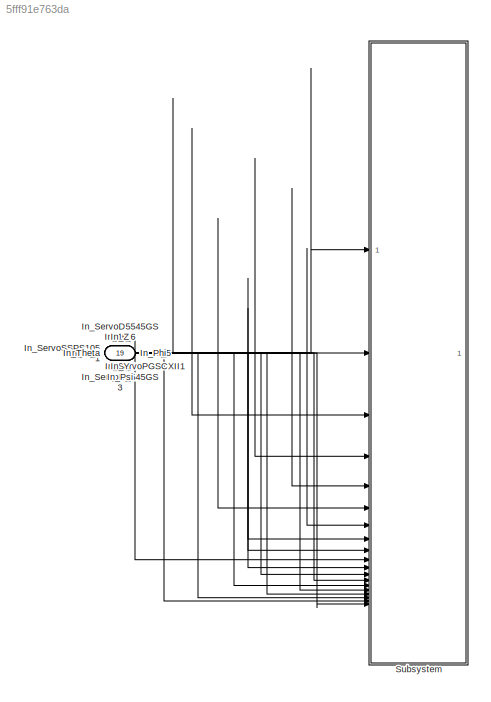
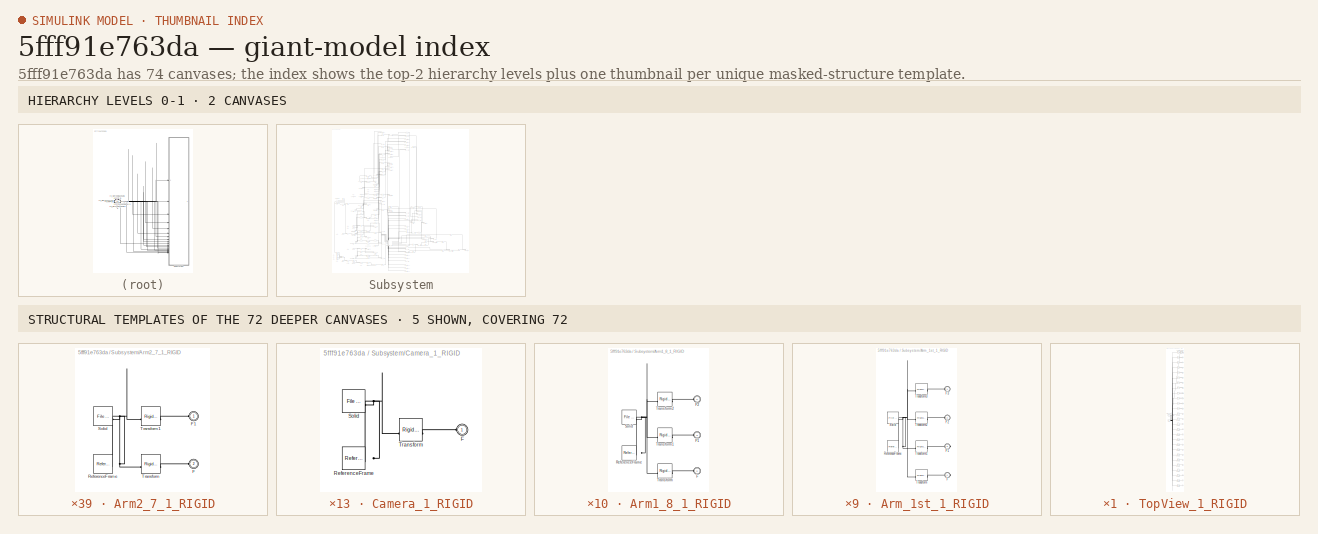
[diagram: thumbnail index - top-2 hierarchy levels (2 canvases) + 5 structural-template representatives of the remaining 72 canvases]
MODEL slx_5fff91e763da
KIND model
CONFIG AbsTol = auto
CONFIG EnableMultiTasking = off
CONFIG FixedStep = auto
CONFIG MaxStep = auto
CONFIG MinStep = auto
CONFIG RelTol = 1e-3
CONFIG SampleTimeConstraint = Unconstrained
CONFIG SolverName = VariableStepAuto
CONFIG StartTime = 0.0
CONFIG StopTime = 10.0
WORKSPACE source: external: MATLAB File  (data not in archive)
BLOCK [Inport] In_M_1
  Port = 5
BLOCK [Inport] In_M_2
  Port = 3
BLOCK [Inport] In_M_3
  Port = 6
BLOCK [Inport] In_M_4
  Port = 7
BLOCK [Inport] In_M_5
  Port = 9
BLOCK [Inport] In_M_6
  Port = 8
BLOCK [Inport] In_M_7
  Port = 10
BLOCK [Inport] In_M_8
  Port = 4
BLOCK [Inport] In_Phi
  Port = 19
BLOCK [Inport] In_Psi
  Port = 17
BLOCK [Inport] In_ServoD5545GS1
  Port = 11
BLOCK [Inport] In_ServoD5545GS3
  Port = 12
BLOCK [Inport] In_ServoPGSCXII1
  Port = 13
BLOCK [Inport] In_ServoSSPS1051
BLOCK [Inport] In_ServoX2075121
  Port = 2
BLOCK [Inport] In_Theta
  Port = 18
BLOCK [Inport] In_X
  Port = 14
BLOCK [Inport] In_Y
  Port = 15
BLOCK [Inport] In_Z
  Port = 16
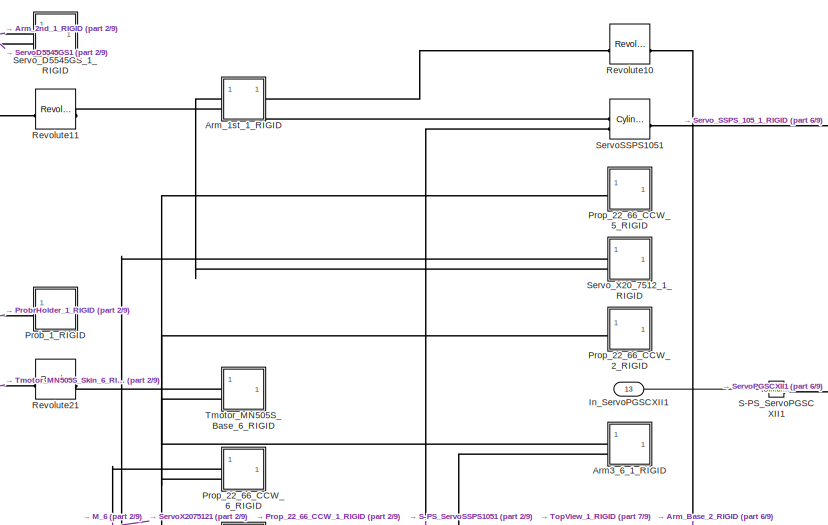
[diagram: Subsystem - part 1/9, top center region]
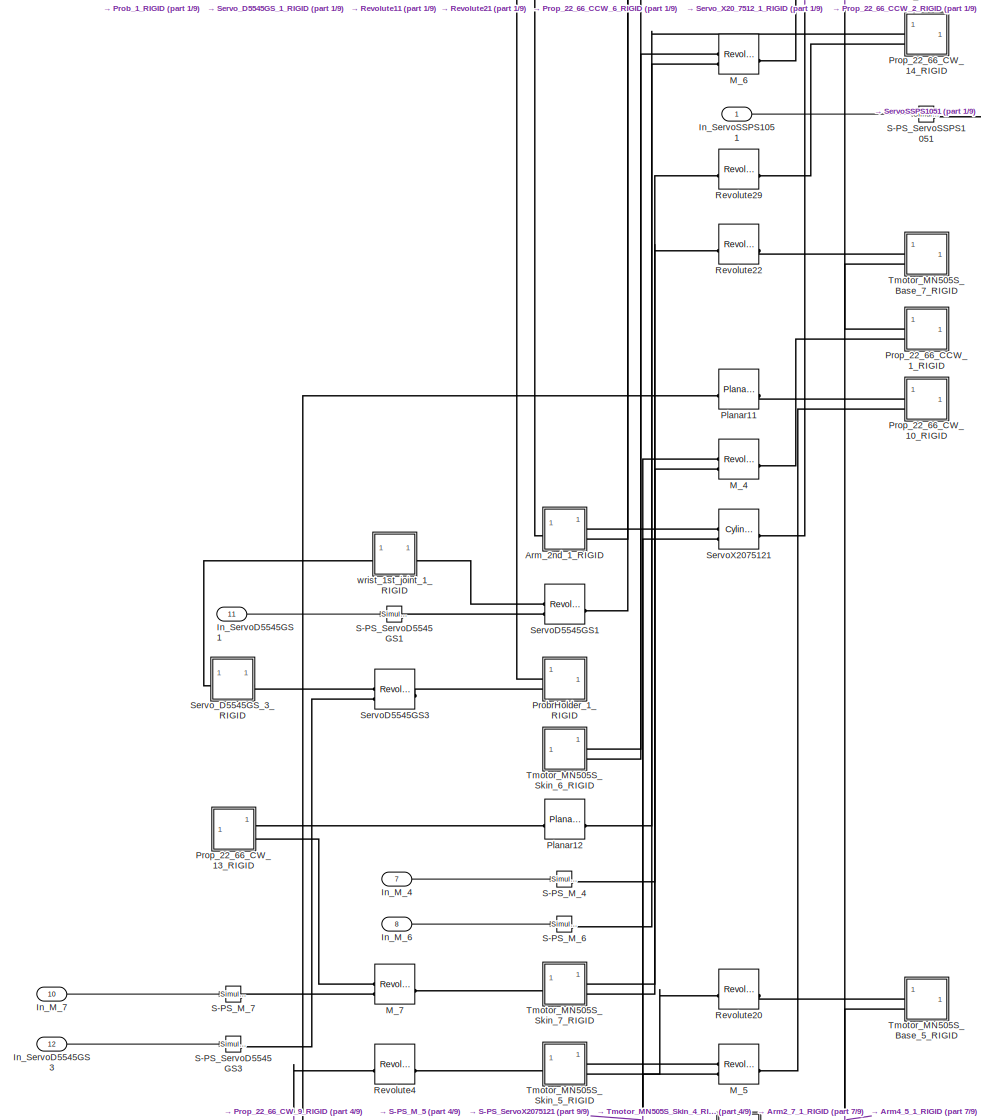
[diagram: Subsystem - part 2/9, top left region]
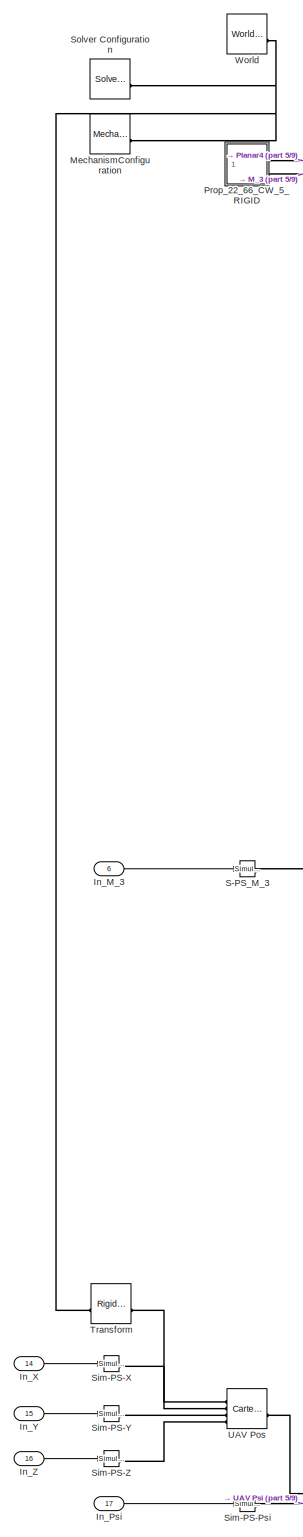
[diagram: Subsystem - part 3/9, bottom left region]
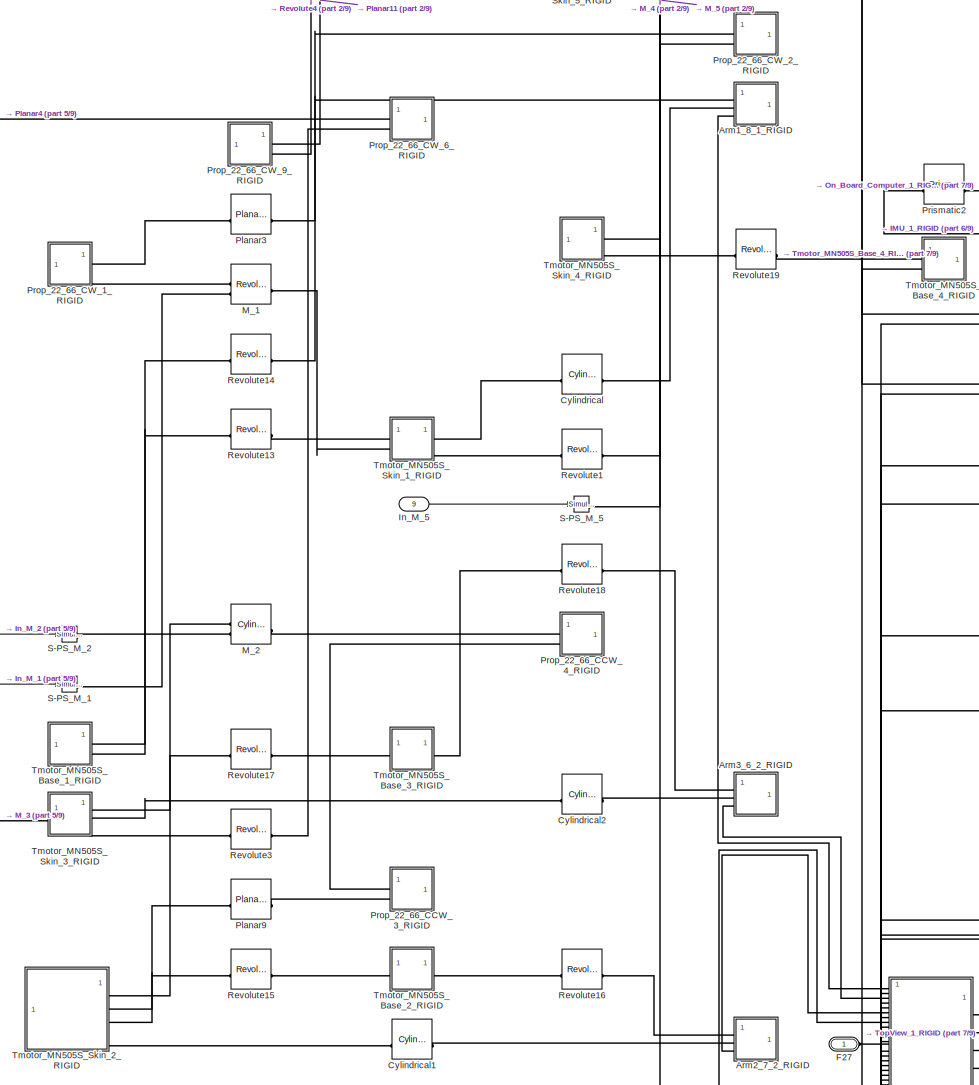
[diagram: Subsystem - part 4/9, middle left region]
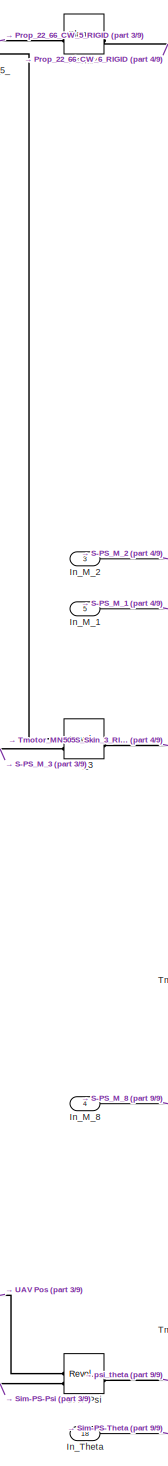
[diagram: Subsystem - part 5/9, bottom left region]
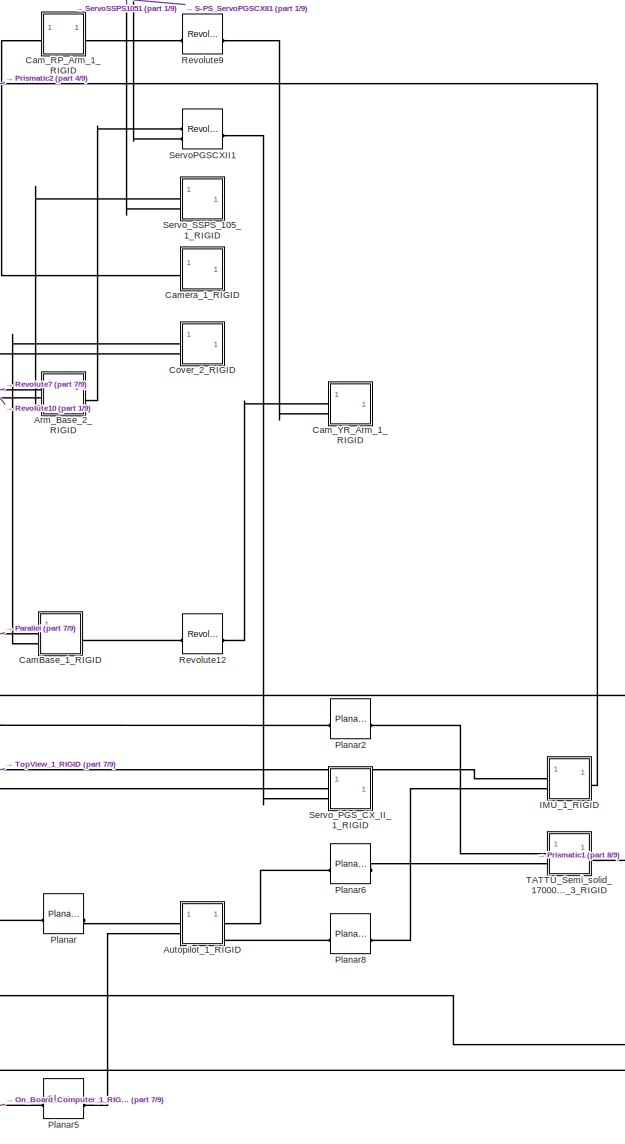
[diagram: Subsystem - part 6/9, bottom right region]
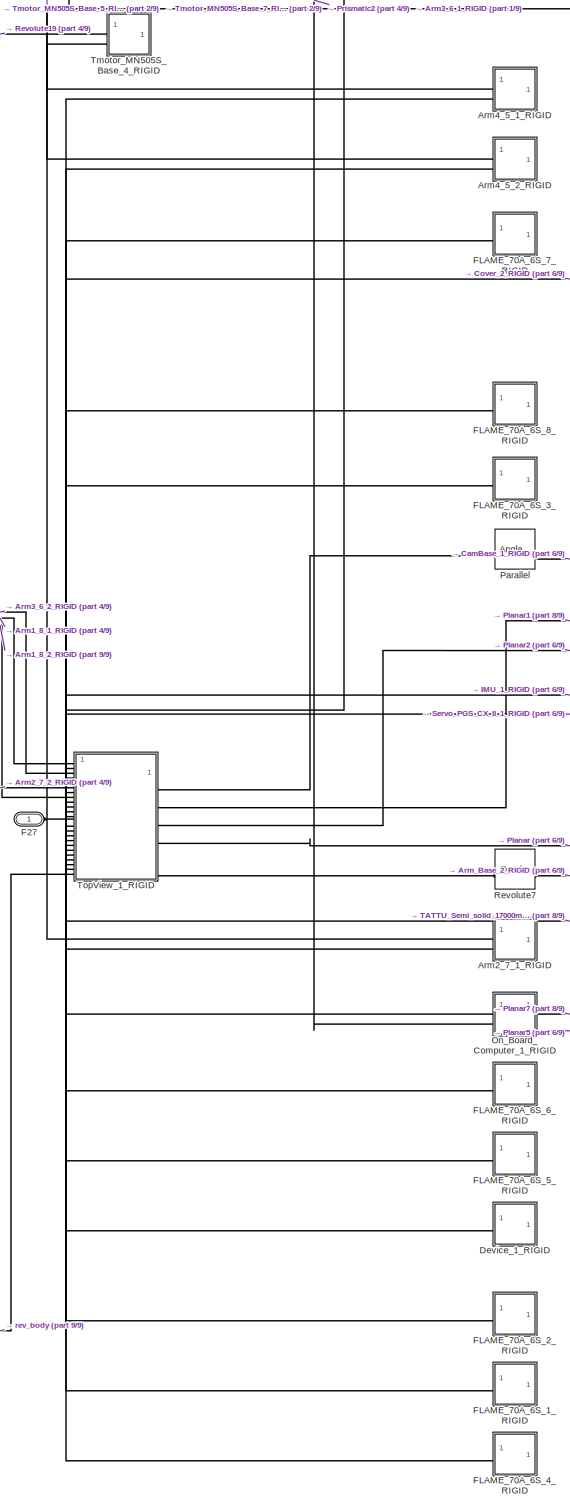
[diagram: Subsystem - part 7/9, bottom center region]
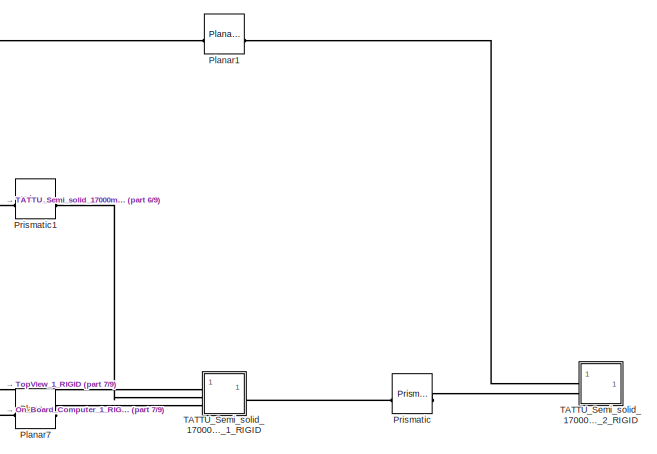
[diagram: Subsystem - part 8/9, bottom right region]
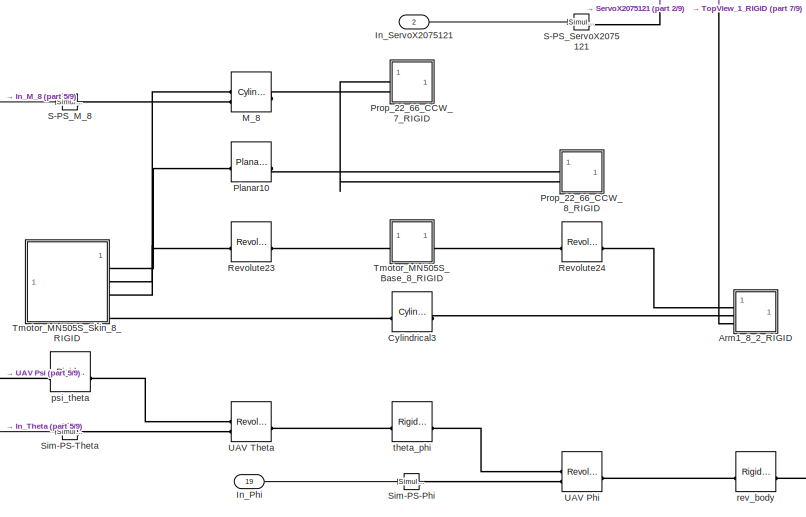
[diagram: Subsystem - part 9/9, bottom left region]
BLOCK [SubSystem] Subsystem
BLOCK [SubSystem] Subsystem/Arm1_8_1_RIGID
BLOCK [PMIOPort] Subsystem/Arm1_8_1_RIGID/F
  Port = 2
  Side = Left
BLOCK [PMIOPort] Subsystem/Arm1_8_1_RIGID/F1
  Port = 3
  Side = Left
BLOCK [PMIOPort] Subsystem/Arm1_8_1_RIGID/F2
  Side = Left
BLOCK [Reference] Subsystem/Arm1_8_1_RIGID/ReferenceFrame  REF=sm_lib/Frames and
Transforms/Reference
Frame
  SourceBlock = sm_lib/Frames and\nTransforms/Reference\nFrame
  SourceType = Reference\nFrame
BLOCK [Reference] Subsystem/Arm1_8_1_RIGID/Solid  REF=sm_lib/Body Elements/File Solid
  SourceBlock = sm_lib/Body Elements/File Solid
  SourceType = File Solid
BLOCK [Reference] Subsystem/Arm1_8_1_RIGID/Transform  REF=sm_lib/Frames and
Transforms/Rigid
Transform
  SourceBlock = sm_lib/Frames and\nTransforms/Rigid\nTransform
  SourceType = Rigid\nTransform
BLOCK [Reference] Subsystem/Arm1_8_1_RIGID/Transform1  REF=sm_lib/Frames and
Transforms/Rigid
Transform
  SourceBlock = sm_lib/Frames and\nTransforms/Rigid\nTransform
  SourceType = Rigid\nTransform
BLOCK [Reference] Subsystem/Arm1_8_1_RIGID/Transform2  REF=sm_lib/Frames and
Transforms/Rigid
Transform
  SourceBlock = sm_lib/Frames and\nTransforms/Rigid\nTransform
  SourceType = Rigid\nTransform
BLOCK [SubSystem] Subsystem/Arm1_8_2_RIGID
BLOCK [PMIOPort] Subsystem/Arm1_8_2_RIGID/F
  Port = 2
  Side = Left
BLOCK [PMIOPort] Subsystem/Arm1_8_2_RIGID/F1
  Port = 3
  Side = Left
BLOCK [PMIOPort] Subsystem/Arm1_8_2_RIGID/F2
  Side = Left
BLOCK [Reference] Subsystem/Arm1_8_2_RIGID/ReferenceFrame  REF=sm_lib/Frames and
Transforms/Reference
Frame
  SourceBlock = sm_lib/Frames and\nTransforms/Reference\nFrame
  SourceType = Reference\nFrame
BLOCK [Reference] Subsystem/Arm1_8_2_RIGID/Solid  REF=sm_lib/Body Elements/File Solid
  SourceBlock = sm_lib/Body Elements/File Solid
  SourceType = File Solid
BLOCK [Reference] Subsystem/Arm1_8_2_RIGID/Transform  REF=sm_lib/Frames and
Transforms/Rigid
Transform
  SourceBlock = sm_lib/Frames and\nTransforms/Rigid\nTransform
  SourceType = Rigid\nTransform
BLOCK [Reference] Subsystem/Arm1_8_2_RIGID/Transform1  REF=sm_lib/Frames and
Transforms/Rigid
Transform
  SourceBlock = sm_lib/Frames and\nTransforms/Rigid\nTransform
  SourceType = Rigid\nTransform
BLOCK [Reference] Subsystem/Arm1_8_2_RIGID/Transform2  REF=sm_lib/Frames and
Transforms/Rigid
Transform
  SourceBlock = sm_lib/Frames and\nTransforms/Rigid\nTransform
  SourceType = Rigid\nTransform
BLOCK [SubSystem] Subsystem/Arm2_7_1_RIGID
BLOCK [PMIOPort] Subsystem/Arm2_7_1_RIGID/F
  Port = 2
  Side = Left
BLOCK [PMIOPort] Subsystem/Arm2_7_1_RIGID/F1
  Side = Left
BLOCK [Reference] Subsystem/Arm2_7_1_RIGID/ReferenceFrame  REF=sm_lib/Frames and
Transforms/Reference
Frame
  SourceBlock = sm_lib/Frames and\nTransforms/Reference\nFrame
  SourceType = Reference\nFrame
BLOCK [Reference] Subsystem/Arm2_7_1_RIGID/Solid  REF=sm_lib/Body Elements/File Solid
  SourceBlock = sm_lib/Body Elements/File Solid
  SourceType = File Solid
BLOCK [Reference] Subsystem/Arm2_7_1_RIGID/Transform  REF=sm_lib/Frames and
Transforms/Rigid
Transform
  SourceBlock = sm_lib/Frames and\nTransforms/Rigid\nTransform
  SourceType = Rigid\nTransform
BLOCK [Reference] Subsystem/Arm2_7_1_RIGID/Transform1  REF=sm_lib/Frames and
Transforms/Rigid
Transform
  SourceBlock = sm_lib/Frames and\nTransforms/Rigid\nTransform
  SourceType = Rigid\nTransform
BLOCK [SubSystem] Subsystem/Arm2_7_2_RIGID
BLOCK [PMIOPort] Subsystem/Arm2_7_2_RIGID/F
  Port = 2
  Side = Left
BLOCK [PMIOPort] Subsystem/Arm2_7_2_RIGID/F1
  Port = 3
  Side = Left
BLOCK [PMIOPort] Subsystem/Arm2_7_2_RIGID/F2
  Side = Left
BLOCK [Reference] Subsystem/Arm2_7_2_RIGID/ReferenceFrame  REF=sm_lib/Frames and
Transforms/Reference
Frame
  SourceBlock = sm_lib/Frames and\nTransforms/Reference\nFrame
  SourceType = Reference\nFrame
BLOCK [Reference] Subsystem/Arm2_7_2_RIGID/Solid  REF=sm_lib/Body Elements/File Solid
  SourceBlock = sm_lib/Body Elements/File Solid
  SourceType = File Solid
BLOCK [Reference] Subsystem/Arm2_7_2_RIGID/Transform  REF=sm_lib/Frames and
Transforms/Rigid
Transform
  SourceBlock = sm_lib/Frames and\nTransforms/Rigid\nTransform
  SourceType = Rigid\nTransform
BLOCK [Reference] Subsystem/Arm2_7_2_RIGID/Transform1  REF=sm_lib/Frames and
Transforms/Rigid
Transform
  SourceBlock = sm_lib/Frames and\nTransforms/Rigid\nTransform
  SourceType = Rigid\nTransform
BLOCK [Reference] Subsystem/Arm2_7_2_RIGID/Transform2  REF=sm_lib/Frames and
Transforms/Rigid
Transform
  SourceBlock = sm_lib/Frames and\nTransforms/Rigid\nTransform
  SourceType = Rigid\nTransform
BLOCK [SubSystem] Subsystem/Arm3_6_1_RIGID
BLOCK [PMIOPort] Subsystem/Arm3_6_1_RIGID/F
  Port = 2
  Side = Left
BLOCK [PMIOPort] Subsystem/Arm3_6_1_RIGID/F1
  Side = Left
BLOCK [Reference] Subsystem/Arm3_6_1_RIGID/ReferenceFrame  REF=sm_lib/Frames and
Transforms/Reference
Frame
  SourceBlock = sm_lib/Frames and\nTransforms/Reference\nFrame
  SourceType = Reference\nFrame
BLOCK [Reference] Subsystem/Arm3_6_1_RIGID/Solid  REF=sm_lib/Body Elements/File Solid
  SourceBlock = sm_lib/Body Elements/File Solid
  SourceType = File Solid
BLOCK [Reference] Subsystem/Arm3_6_1_RIGID/Transform  REF=sm_lib/Frames and
Transforms/Rigid
Transform
  SourceBlock = sm_lib/Frames and\nTransforms/Rigid\nTransform
  SourceType = Rigid\nTransform
BLOCK [Reference] Subsystem/Arm3_6_1_RIGID/Transform1  REF=sm_lib/Frames and
Transforms/Rigid
Transform
  SourceBlock = sm_lib/Frames and\nTransforms/Rigid\nTransform
  SourceType = Rigid\nTransform
BLOCK [SubSystem] Subsystem/Arm3_6_2_RIGID
BLOCK [PMIOPort] Subsystem/Arm3_6_2_RIGID/F
  Port = 2
  Side = Left
BLOCK [PMIOPort] Subsystem/Arm3_6_2_RIGID/F1
  Port = 3
  Side = Left
BLOCK [PMIOPort] Subsystem/Arm3_6_2_RIGID/F2
  Side = Left
BLOCK [Reference] Subsystem/Arm3_6_2_RIGID/ReferenceFrame  REF=sm_lib/Frames and
Transforms/Reference
Frame
  SourceBlock = sm_lib/Frames and\nTransforms/Reference\nFrame
  SourceType = Reference\nFrame
BLOCK [Reference] Subsystem/Arm3_6_2_RIGID/Solid  REF=sm_lib/Body Elements/File Solid
  SourceBlock = sm_lib/Body Elements/File Solid
  SourceType = File Solid
BLOCK [Reference] Subsystem/Arm3_6_2_RIGID/Transform  REF=sm_lib/Frames and
Transforms/Rigid
Transform
  SourceBlock = sm_lib/Frames and\nTransforms/Rigid\nTransform
  SourceType = Rigid\nTransform
BLOCK [Reference] Subsystem/Arm3_6_2_RIGID/Transform1  REF=sm_lib/Frames and
Transforms/Rigid
Transform
  SourceBlock = sm_lib/Frames and\nTransforms/Rigid\nTransform
  SourceType = Rigid\nTransform
BLOCK [Reference] Subsystem/Arm3_6_2_RIGID/Transform2  REF=sm_lib/Frames and
Transforms/Rigid
Transform
  SourceBlock = sm_lib/Frames and\nTransforms/Rigid\nTransform
  SourceType = Rigid\nTransform
BLOCK [SubSystem] Subsystem/Arm4_5_1_RIGID
BLOCK [PMIOPort] Subsystem/Arm4_5_1_RIGID/F
  Port = 2
  Side = Left
BLOCK [PMIOPort] Subsystem/Arm4_5_1_RIGID/F1
  Side = Left
BLOCK [Reference] Subsystem/Arm4_5_1_RIGID/ReferenceFrame  REF=sm_lib/Frames and
Transforms/Reference
Frame
  SourceBlock = sm_lib/Frames and\nTransforms/Reference\nFrame
  SourceType = Reference\nFrame
BLOCK [Reference] Subsystem/Arm4_5_1_RIGID/Solid  REF=sm_lib/Body Elements/File Solid
  SourceBlock = sm_lib/Body Elements/File Solid
  SourceType = File Solid
BLOCK [Reference] Subsystem/Arm4_5_1_RIGID/Transform  REF=sm_lib/Frames and
Transforms/Rigid
Transform
  SourceBlock = sm_lib/Frames and\nTransforms/Rigid\nTransform
  SourceType = Rigid\nTransform
BLOCK [Reference] Subsystem/Arm4_5_1_RIGID/Transform1  REF=sm_lib/Frames and
Transforms/Rigid
Transform
  SourceBlock = sm_lib/Frames and\nTransforms/Rigid\nTransform
  SourceType = Rigid\nTransform
BLOCK [SubSystem] Subsystem/Arm4_5_2_RIGID
BLOCK [PMIOPort] Subsystem/Arm4_5_2_RIGID/F
  Port = 2
  Side = Left
BLOCK [PMIOPort] Subsystem/Arm4_5_2_RIGID/F1
  Side = Left
BLOCK [Reference] Subsystem/Arm4_5_2_RIGID/ReferenceFrame  REF=sm_lib/Frames and
Transforms/Reference
Frame
  SourceBlock = sm_lib/Frames and\nTransforms/Reference\nFrame
  SourceType = Reference\nFrame
BLOCK [Reference] Subsystem/Arm4_5_2_RIGID/Solid  REF=sm_lib/Body Elements/File Solid
  SourceBlock = sm_lib/Body Elements/File Solid
  SourceType = File Solid
BLOCK [Reference] Subsystem/Arm4_5_2_RIGID/Transform  REF=sm_lib/Frames and
Transforms/Rigid
Transform
  SourceBlock = sm_lib/Frames and\nTransforms/Rigid\nTransform
  SourceType = Rigid\nTransform
BLOCK [Reference] Subsystem/Arm4_5_2_RIGID/Transform1  REF=sm_lib/Frames and
Transforms/Rigid
Transform
  SourceBlock = sm_lib/Frames and\nTransforms/Rigid\nTransform
  SourceType = Rigid\nTransform
BLOCK [SubSystem] Subsystem/Arm_1st_1_RIGID
BLOCK [PMIOPort] Subsystem/Arm_1st_1_RIGID/F
  Port = 4
  Side = Right
BLOCK [PMIOPort] Subsystem/Arm_1st_1_RIGID/F1
  Port = 3
  Side = Right
BLOCK [PMIOPort] Subsystem/Arm_1st_1_RIGID/F2
  Port = 2
  Side = Left
BLOCK [PMIOPort] Subsystem/Arm_1st_1_RIGID/F3
  Side = Left
BLOCK [Reference] Subsystem/Arm_1st_1_RIGID/ReferenceFrame  REF=sm_lib/Frames and
Transforms/Reference
Frame
  SourceBlock = sm_lib/Frames and\nTransforms/Reference\nFrame
  SourceType = Reference\nFrame
BLOCK [Reference] Subsystem/Arm_1st_1_RIGID/Solid  REF=sm_lib/Body Elements/File Solid
  SourceBlock = sm_lib/Body Elements/File Solid
  SourceType = File Solid
BLOCK [Reference] Subsystem/Arm_1st_1_RIGID/Transform  REF=sm_lib/Frames and
Transforms/Rigid
Transform
  SourceBlock = sm_lib/Frames and\nTransforms/Rigid\nTransform
  SourceType = Rigid\nTransform
BLOCK [Reference] Subsystem/Arm_1st_1_RIGID/Transform1  REF=sm_lib/Frames and
Transforms/Rigid
Transform
  SourceBlock = sm_lib/Frames and\nTransforms/Rigid\nTransform
  SourceType = Rigid\nTransform
BLOCK [Reference] Subsystem/Arm_1st_1_RIGID/Transform2  REF=sm_lib/Frames and
Transforms/Rigid
Transform
  SourceBlock = sm_lib/Frames and\nTransforms/Rigid\nTransform
  SourceType = Rigid\nTransform
BLOCK [Reference] Subsystem/Arm_1st_1_RIGID/Transform3  REF=sm_lib/Frames and
Transforms/Rigid
Transform
  SourceBlock = sm_lib/Frames and\nTransforms/Rigid\nTransform
  SourceType = Rigid\nTransform
BLOCK [SubSystem] Subsystem/Arm_2nd_1_RIGID
BLOCK [PMIOPort] Subsystem/Arm_2nd_1_RIGID/F
  Port = 3
  Side = Right
BLOCK [PMIOPort] Subsystem/Arm_2nd_1_RIGID/F1
  Side = Left
BLOCK [PMIOPort] Subsystem/Arm_2nd_1_RIGID/F2
  Port = 2
  Side = Right
BLOCK [Reference] Subsystem/Arm_2nd_1_RIGID/ReferenceFrame  REF=sm_lib/Frames and
Transforms/Reference
Frame
  SourceBlock = sm_lib/Frames and\nTransforms/Reference\nFrame
  SourceType = Reference\nFrame
BLOCK [Reference] Subsystem/Arm_2nd_1_RIGID/Solid  REF=sm_lib/Body Elements/File Solid
  SourceBlock = sm_lib/Body Elements/File Solid
  SourceType = File Solid
BLOCK [Reference] Subsystem/Arm_2nd_1_RIGID/Transform  REF=sm_lib/Frames and
Transforms/Rigid
Transform
  SourceBlock = sm_lib/Frames and\nTransforms/Rigid\nTransform
  SourceType = Rigid\nTransform
BLOCK [Reference] Subsystem/Arm_2nd_1_RIGID/Transform1  REF=sm_lib/Frames and
Transforms/Rigid
Transform
  SourceBlock = sm_lib/Frames and\nTransforms/Rigid\nTransform
  SourceType = Rigid\nTransform
BLOCK [Reference] Subsystem/Arm_2nd_1_RIGID/Transform2  REF=sm_lib/Frames and
Transforms/Rigid
Transform
  SourceBlock = sm_lib/Frames and\nTransforms/Rigid\nTransform
  SourceType = Rigid\nTransform
BLOCK [SubSystem] Subsystem/Arm_Base_2_RIGID
BLOCK [PMIOPort] Subsystem/Arm_Base_2_RIGID/F
  Port = 3
  Side = Left
BLOCK [PMIOPort] Subsystem/Arm_Base_2_RIGID/F1
  Side = Left
BLOCK [PMIOPort] Subsystem/Arm_Base_2_RIGID/F2
  Port = 4
  Side = Right
BLOCK [PMIOPort] Subsystem/Arm_Base_2_RIGID/F3
  Port = 2
  Side = Left
BLOCK [Reference] Subsystem/Arm_Base_2_RIGID/ReferenceFrame  REF=sm_lib/Frames and
Transforms/Reference
Frame
  SourceBlock = sm_lib/Frames and\nTransforms/Reference\nFrame
  SourceType = Reference\nFrame
BLOCK [Reference] Subsystem/Arm_Base_2_RIGID/Solid  REF=sm_lib/Body Elements/File Solid
  SourceBlock = sm_lib/Body Elements/File Solid
  SourceType = File Solid
BLOCK [Reference] Subsystem/Arm_Base_2_RIGID/Transform  REF=sm_lib/Frames and
Transforms/Rigid
Transform
  SourceBlock = sm_lib/Frames and\nTransforms/Rigid\nTransform
  SourceType = Rigid\nTransform
BLOCK [Reference] Subsystem/Arm_Base_2_RIGID/Transform1  REF=sm_lib/Frames and
Transforms/Rigid
Transform
  SourceBlock = sm_lib/Frames and\nTransforms/Rigid\nTransform
  SourceType = Rigid\nTransform
BLOCK [Reference] Subsystem/Arm_Base_2_RIGID/Transform2  REF=sm_lib/Frames and
Transforms/Rigid
Transform
  SourceBlock = sm_lib/Frames and\nTransforms/Rigid\nTransform
  SourceType = Rigid\nTransform
BLOCK [Reference] Subsystem/Arm_Base_2_RIGID/Transform3  REF=sm_lib/Frames and
Transforms/Rigid
Transform
  SourceBlock = sm_lib/Frames and\nTransforms/Rigid\nTransform
  SourceType = Rigid\nTransform
BLOCK [SubSystem] Subsystem/Autopilot_1_RIGID
BLOCK [PMIOPort] Subsystem/Autopilot_1_RIGID/F
  Side = Left
BLOCK [PMIOPort] Subsystem/Autopilot_1_RIGID/F1
  Port = 2
  Side = Left
BLOCK [PMIOPort] Subsystem/Autopilot_1_RIGID/F2
  Port = 3
  Side = Right
BLOCK [PMIOPort] Subsystem/Autopilot_1_RIGID/F3
  Port = 4
  Side = Right
BLOCK [Reference] Subsystem/Autopilot_1_RIGID/ReferenceFrame  REF=sm_lib/Frames and
Transforms/Reference
Frame
  SourceBlock = sm_lib/Frames and\nTransforms/Reference\nFrame
  SourceType = Reference\nFrame
BLOCK [Reference] Subsystem/Autopilot_1_RIGID/Solid  REF=sm_lib/Body Elements/File Solid
  SourceBlock = sm_lib/Body Elements/File Solid
  SourceType = File Solid
BLOCK [Reference] Subsystem/Autopilot_1_RIGID/Transform  REF=sm_lib/Frames and
Transforms/Rigid
Transform
  SourceBlock = sm_lib/Frames and\nTransforms/Rigid\nTransform
  SourceType = Rigid\nTransform
BLOCK [Reference] Subsystem/Autopilot_1_RIGID/Transform1  REF=sm_lib/Frames and
Transforms/Rigid
Transform
  SourceBlock = sm_lib/Frames and\nTransforms/Rigid\nTransform
  SourceType = Rigid\nTransform
BLOCK [Reference] Subsystem/Autopilot_1_RIGID/Transform2  REF=sm_lib/Frames and
Transforms/Rigid
Transform
  SourceBlock = sm_lib/Frames and\nTransforms/Rigid\nTransform
  SourceType = Rigid\nTransform
BLOCK [Reference] Subsystem/Autopilot_1_RIGID/Transform3  REF=sm_lib/Frames and
Transforms/Rigid
Transform
  SourceBlock = sm_lib/Frames and\nTransforms/Rigid\nTransform
  SourceType = Rigid\nTransform
BLOCK [SubSystem] Subsystem/CamBase_1_RIGID
BLOCK [PMIOPort] Subsystem/CamBase_1_RIGID/F
  Side = Left
BLOCK [PMIOPort] Subsystem/CamBase_1_RIGID/F1
  Port = 2
  Side = Left
BLOCK [PMIOPort] Subsystem/CamBase_1_RIGID/F2
  Port = 3
  Side = Right
BLOCK [Reference] Subsystem/CamBase_1_RIGID/ReferenceFrame  REF=sm_lib/Frames and
Transforms/Reference
Frame
  SourceBlock = sm_lib/Frames and\nTransforms/Reference\nFrame
  SourceType = Reference\nFrame
BLOCK [Reference] Subsystem/CamBase_1_RIGID/Solid  REF=sm_lib/Body Elements/File Solid
  SourceBlock = sm_lib/Body Elements/File Solid
  SourceType = File Solid
BLOCK [Reference] Subsystem/CamBase_1_RIGID/Transform  REF=sm_lib/Frames and
Transforms/Rigid
Transform
  SourceBlock = sm_lib/Frames and\nTransforms/Rigid\nTransform
  SourceType = Rigid\nTransform
BLOCK [Reference] Subsystem/CamBase_1_RIGID/Transform1  REF=sm_lib/Frames and
Transforms/Rigid
Transform
  SourceBlock = sm_lib/Frames and\nTransforms/Rigid\nTransform
  SourceType = Rigid\nTransform
BLOCK [Reference] Subsystem/CamBase_1_RIGID/Transform2  REF=sm_lib/Frames and
Transforms/Rigid
Transform
  SourceBlock = sm_lib/Frames and\nTransforms/Rigid\nTransform
  SourceType = Rigid\nTransform
BLOCK [SubSystem] Subsystem/Cam_RP_Arm_1_RIGID
BLOCK [PMIOPort] Subsystem/Cam_RP_Arm_1_RIGID/F
  Port = 2
  Side = Right
BLOCK [PMIOPort] Subsystem/Cam_RP_Arm_1_RIGID/F1
  Side = Left
BLOCK [Reference] Subsystem/Cam_RP_Arm_1_RIGID/ReferenceFrame  REF=sm_lib/Frames and
Transforms/Reference
Frame
  SourceBlock = sm_lib/Frames and\nTransforms/Reference\nFrame
  SourceType = Reference\nFrame
BLOCK [Reference] Subsystem/Cam_RP_Arm_1_RIGID/Solid  REF=sm_lib/Body Elements/File Solid
  SourceBlock = sm_lib/Body Elements/File Solid
  SourceType = File Solid
BLOCK [Reference] Subsystem/Cam_RP_Arm_1_RIGID/Transform  REF=sm_lib/Frames and
Transforms/Rigid
Transform
  SourceBlock = sm_lib/Frames and\nTransforms/Rigid\nTransform
  SourceType = Rigid\nTransform
BLOCK [Reference] Subsystem/Cam_RP_Arm_1_RIGID/Transform1  REF=sm_lib/Frames and
Transforms/Rigid
Transform
  SourceBlock = sm_lib/Frames and\nTransforms/Rigid\nTransform
  SourceType = Rigid\nTransform
BLOCK [SubSystem] Subsystem/Cam_YR_Arm_1_RIGID
BLOCK [PMIOPort] Subsystem/Cam_YR_Arm_1_RIGID/F
  Port = 2
  Side = Left
BLOCK [PMIOPort] Subsystem/Cam_YR_Arm_1_RIGID/F1
  Side = Left
BLOCK [Reference] Subsystem/Cam_YR_Arm_1_RIGID/ReferenceFrame  REF=sm_lib/Frames and
Transforms/Reference
Frame
  SourceBlock = sm_lib/Frames and\nTransforms/Reference\nFrame
  SourceType = Reference\nFrame
BLOCK [Reference] Subsystem/Cam_YR_Arm_1_RIGID/Solid  REF=sm_lib/Body Elements/File Solid
  SourceBlock = sm_lib/Body Elements/File Solid
  SourceType = File Solid
BLOCK [Reference] Subsystem/Cam_YR_Arm_1_RIGID/Transform  REF=sm_lib/Frames and
Transforms/Rigid
Transform
  SourceBlock = sm_lib/Frames and\nTransforms/Rigid\nTransform
  SourceType = Rigid\nTransform
BLOCK [Reference] Subsystem/Cam_YR_Arm_1_RIGID/Transform1  REF=sm_lib/Frames and
Transforms/Rigid
Transform
  SourceBlock = sm_lib/Frames and\nTransforms/Rigid\nTransform
  SourceType = Rigid\nTransform
BLOCK [SubSystem] Subsystem/Camera_1_RIGID
BLOCK [PMIOPort] Subsystem/Camera_1_RIGID/F
  Side = Left
BLOCK [Reference] Subsystem/Camera_1_RIGID/ReferenceFrame  REF=sm_lib/Frames and
Transforms/Reference
Frame
  SourceBlock = sm_lib/Frames and\nTransforms/Reference\nFrame
  SourceType = Reference\nFrame
BLOCK [Reference] Subsystem/Camera_1_RIGID/Solid  REF=sm_lib/Body Elements/File Solid
  SourceBlock = sm_lib/Body Elements/File Solid
  SourceType = File Solid
BLOCK [Reference] Subsystem/Camera_1_RIGID/Transform  REF=sm_lib/Frames and
Transforms/Rigid
Transform
  SourceBlock = sm_lib/Frames and\nTransforms/Rigid\nTransform
  SourceType = Rigid\nTransform
BLOCK [SubSystem] Subsystem/Cover_2_RIGID
BLOCK [PMIOPort] Subsystem/Cover_2_RIGID/F
  Port = 2
  Side = Left
BLOCK [PMIOPort] Subsystem/Cover_2_RIGID/F1
  Side = Left
BLOCK [Reference] Subsystem/Cover_2_RIGID/ReferenceFrame  REF=sm_lib/Frames and
Transforms/Reference
Frame
  SourceBlock = sm_lib/Frames and\nTransforms/Reference\nFrame
  SourceType = Reference\nFrame
BLOCK [Reference] Subsystem/Cover_2_RIGID/Solid  REF=sm_lib/Body Elements/File Solid
  SourceBlock = sm_lib/Body Elements/File Solid
  SourceType = File Solid
BLOCK [Reference] Subsystem/Cover_2_RIGID/Transform  REF=sm_lib/Frames and
Transforms/Rigid
Transform
  SourceBlock = sm_lib/Frames and\nTransforms/Rigid\nTransform
  SourceType = Rigid\nTransform
BLOCK [Reference] Subsystem/Cover_2_RIGID/Transform1  REF=sm_lib/Frames and
Transforms/Rigid
Transform
  SourceBlock = sm_lib/Frames and\nTransforms/Rigid\nTransform
  SourceType = Rigid\nTransform
BLOCK [Reference] Subsystem/Cylindrical  REF=sm_lib/Joints/Cylindrical
Joint
  SourceBlock = sm_lib/Joints/Cylindrical\nJoint
  SourceType = Cylindrical\nJoint
BLOCK [Reference] Subsystem/Cylindrical1  REF=sm_lib/Joints/Cylindrical
Joint
  SourceBlock = sm_lib/Joints/Cylindrical\nJoint
  SourceType = Cylindrical\nJoint
BLOCK [Reference] Subsystem/Cylindrical2  REF=sm_lib/Joints/Cylindrical
Joint
  SourceBlock = sm_lib/Joints/Cylindrical\nJoint
  SourceType = Cylindrical\nJoint
BLOCK [Reference] Subsystem/Cylindrical3  REF=sm_lib/Joints/Cylindrical
Joint
  SourceBlock = sm_lib/Joints/Cylindrical\nJoint
  SourceType = Cylindrical\nJoint
BLOCK [SubSystem] Subsystem/Device_1_RIGID
BLOCK [PMIOPort] Subsystem/Device_1_RIGID/F
  Side = Left
BLOCK [Reference] Subsystem/Device_1_RIGID/ReferenceFrame  REF=sm_lib/Frames and
Transforms/Reference
Frame
  SourceBlock = sm_lib/Frames and\nTransforms/Reference\nFrame
  SourceType = Reference\nFrame
BLOCK [Reference] Subsystem/Device_1_RIGID/Solid  REF=sm_lib/Body Elements/File Solid
  SourceBlock = sm_lib/Body Elements/File Solid
  SourceType = File Solid
BLOCK [Reference] Subsystem/Device_1_RIGID/Transform  REF=sm_lib/Frames and
Transforms/Rigid
Transform
  SourceBlock = sm_lib/Frames and\nTransforms/Rigid\nTransform
  SourceType = Rigid\nTransform
BLOCK [PMIOPort] Subsystem/F27
  Side = Left
BLOCK [SubSystem] Subsystem/FLAME_70A_6S_1_RIGID
BLOCK [PMIOPort] Subsystem/FLAME_70A_6S_1_RIGID/F
  Side = Left
BLOCK [Reference] Subsystem/FLAME_70A_6S_1_RIGID/ReferenceFrame  REF=sm_lib/Frames and
Transforms/Reference
Frame
  SourceBlock = sm_lib/Frames and\nTransforms/Reference\nFrame
  SourceType = Reference\nFrame
BLOCK [Reference] Subsystem/FLAME_70A_6S_1_RIGID/Solid  REF=sm_lib/Body Elements/File Solid
  SourceBlock = sm_lib/Body Elements/File Solid
  SourceType = File Solid
BLOCK [Reference] Subsystem/FLAME_70A_6S_1_RIGID/Transform  REF=sm_lib/Frames and
Transforms/Rigid
Transform
  SourceBlock = sm_lib/Frames and\nTransforms/Rigid\nTransform
  SourceType = Rigid\nTransform
BLOCK [SubSystem] Subsystem/FLAME_70A_6S_2_RIGID
BLOCK [PMIOPort] Subsystem/FLAME_70A_6S_2_RIGID/F
  Side = Left
BLOCK [Reference] Subsystem/FLAME_70A_6S_2_RIGID/ReferenceFrame  REF=sm_lib/Frames and
Transforms/Reference
Frame
  SourceBlock = sm_lib/Frames and\nTransforms/Reference\nFrame
  SourceType = Reference\nFrame
BLOCK [Reference] Subsystem/FLAME_70A_6S_2_RIGID/Solid  REF=sm_lib/Body Elements/File Solid
  SourceBlock = sm_lib/Body Elements/File Solid
  SourceType = File Solid
BLOCK [Reference] Subsystem/FLAME_70A_6S_2_RIGID/Transform  REF=sm_lib/Frames and
Transforms/Rigid
Transform
  SourceBlock = sm_lib/Frames and\nTransforms/Rigid\nTransform
  SourceType = Rigid\nTransform
BLOCK [SubSystem] Subsystem/FLAME_70A_6S_3_RIGID
BLOCK [PMIOPort] Subsystem/FLAME_70A_6S_3_RIGID/F
  Side = Left
BLOCK [Reference] Subsystem/FLAME_70A_6S_3_RIGID/ReferenceFrame  REF=sm_lib/Frames and
Transforms/Reference
Frame
  SourceBlock = sm_lib/Frames and\nTransforms/Reference\nFrame
  SourceType = Reference\nFrame
BLOCK [Reference] Subsystem/FLAME_70A_6S_3_RIGID/Solid  REF=sm_lib/Body Elements/File Solid
  SourceBlock = sm_lib/Body Elements/File Solid
  SourceType = File Solid
BLOCK [Reference] Subsystem/FLAME_70A_6S_3_RIGID/Transform  REF=sm_lib/Frames and
Transforms/Rigid
Transform
  SourceBlock = sm_lib/Frames and\nTransforms/Rigid\nTransform
  SourceType = Rigid\nTransform
BLOCK [SubSystem] Subsystem/FLAME_70A_6S_4_RIGID
BLOCK [PMIOPort] Subsystem/FLAME_70A_6S_4_RIGID/F
  Side = Left
BLOCK [Reference] Subsystem/FLAME_70A_6S_4_RIGID/ReferenceFrame  REF=sm_lib/Frames and
Transforms/Reference
Frame
  SourceBlock = sm_lib/Frames and\nTransforms/Reference\nFrame
  SourceType = Reference\nFrame
BLOCK [Reference] Subsystem/FLAME_70A_6S_4_RIGID/Solid  REF=sm_lib/Body Elements/File Solid
  SourceBlock = sm_lib/Body Elements/File Solid
  SourceType = File Solid
BLOCK [Reference] Subsystem/FLAME_70A_6S_4_RIGID/Transform  REF=sm_lib/Frames and
Transforms/Rigid
Transform
  SourceBlock = sm_lib/Frames and\nTransforms/Rigid\nTransform
  SourceType = Rigid\nTransform
BLOCK [SubSystem] Subsystem/FLAME_70A_6S_5_RIGID
BLOCK [PMIOPort] Subsystem/FLAME_70A_6S_5_RIGID/F
  Side = Left
BLOCK [Reference] Subsystem/FLAME_70A_6S_5_RIGID/ReferenceFrame  REF=sm_lib/Frames and
Transforms/Reference
Frame
  SourceBlock = sm_lib/Frames and\nTransforms/Reference\nFrame
  SourceType = Reference\nFrame
BLOCK [Reference] Subsystem/FLAME_70A_6S_5_RIGID/Solid  REF=sm_lib/Body Elements/File Solid
  SourceBlock = sm_lib/Body Elements/File Solid
  SourceType = File Solid
BLOCK [Reference] Subsystem/FLAME_70A_6S_5_RIGID/Transform  REF=sm_lib/Frames and
Transforms/Rigid
Transform
  SourceBlock = sm_lib/Frames and\nTransforms/Rigid\nTransform
  SourceType = Rigid\nTransform
BLOCK [SubSystem] Subsystem/FLAME_70A_6S_6_RIGID
BLOCK [PMIOPort] Subsystem/FLAME_70A_6S_6_RIGID/F
  Side = Left
BLOCK [Reference] Subsystem/FLAME_70A_6S_6_RIGID/ReferenceFrame  REF=sm_lib/Frames and
Transforms/Reference
Frame
  SourceBlock = sm_lib/Frames and\nTransforms/Reference\nFrame
  SourceType = Reference\nFrame
BLOCK [Reference] Subsystem/FLAME_70A_6S_6_RIGID/Solid  REF=sm_lib/Body Elements/File Solid
  SourceBlock = sm_lib/Body Elements/File Solid
  SourceType = File Solid
BLOCK [Reference] Subsystem/FLAME_70A_6S_6_RIGID/Transform  REF=sm_lib/Frames and
Transforms/Rigid
Transform
  SourceBlock = sm_lib/Frames and\nTransforms/Rigid\nTransform
  SourceType = Rigid\nTransform
BLOCK [SubSystem] Subsystem/FLAME_70A_6S_7_RIGID
BLOCK [PMIOPort] Subsystem/FLAME_70A_6S_7_RIGID/F
  Side = Left
BLOCK [Reference] Subsystem/FLAME_70A_6S_7_RIGID/ReferenceFrame  REF=sm_lib/Frames and
Transforms/Reference
Frame
  SourceBlock = sm_lib/Frames and\nTransforms/Reference\nFrame
  SourceType = Reference\nFrame
BLOCK [Reference] Subsystem/FLAME_70A_6S_7_RIGID/Solid  REF=sm_lib/Body Elements/File Solid
  SourceBlock = sm_lib/Body Elements/File Solid
  SourceType = File Solid
BLOCK [Reference] Subsystem/FLAME_70A_6S_7_RIGID/Transform  REF=sm_lib/Frames and
Transforms/Rigid
Transform
  SourceBlock = sm_lib/Frames and\nTransforms/Rigid\nTransform
  SourceType = Rigid\nTransform
BLOCK [SubSystem] Subsystem/FLAME_70A_6S_8_RIGID
BLOCK [PMIOPort] Subsystem/FLAME_70A_6S_8_RIGID/F
  Side = Left
BLOCK [Reference] Subsystem/FLAME_70A_6S_8_RIGID/ReferenceFrame  REF=sm_lib/Frames and
Transforms/Reference
Frame
  SourceBlock = sm_lib/Frames and\nTransforms/Reference\nFrame
  SourceType = Reference\nFrame
BLOCK [Reference] Subsystem/FLAME_70A_6S_8_RIGID/Solid  REF=sm_lib/Body Elements/File Solid
  SourceBlock = sm_lib/Body Elements/File Solid
  SourceType = File Solid
BLOCK [Reference] Subsystem/FLAME_70A_6S_8_RIGID/Transform  REF=sm_lib/Frames and
Transforms/Rigid
Transform
  SourceBlock = sm_lib/Frames and\nTransforms/Rigid\nTransform
  SourceType = Rigid\nTransform
BLOCK [SubSystem] Subsystem/IMU_1_RIGID
BLOCK [PMIOPort] Subsystem/IMU_1_RIGID/F
  Side = Left
BLOCK [PMIOPort] Subsystem/IMU_1_RIGID/F1
  Port = 2
  Side = Left
BLOCK [PMIOPort] Subsystem/IMU_1_RIGID/F2
  Port = 3
  Side = Right
BLOCK [Reference] Subsystem/IMU_1_RIGID/ReferenceFrame  REF=sm_lib/Frames and
Transforms/Reference
Frame
  SourceBlock = sm_lib/Frames and\nTransforms/Reference\nFrame
  SourceType = Reference\nFrame
BLOCK [Reference] Subsystem/IMU_1_RIGID/Solid  REF=sm_lib/Body Elements/File Solid
  SourceBlock = sm_lib/Body Elements/File Solid
  SourceType = File Solid
BLOCK [Reference] Subsystem/IMU_1_RIGID/Transform  REF=sm_lib/Frames and
Transforms/Rigid
Transform
  SourceBlock = sm_lib/Frames and\nTransforms/Rigid\nTransform
  SourceType = Rigid\nTransform
BLOCK [Reference] Subsystem/IMU_1_RIGID/Transform1  REF=sm_lib/Frames and
Transforms/Rigid
Transform
  SourceBlock = sm_lib/Frames and\nTransforms/Rigid\nTransform
  SourceType = Rigid\nTransform
BLOCK [Reference] Subsystem/IMU_1_RIGID/Transform2  REF=sm_lib/Frames and
Transforms/Rigid
Transform
  SourceBlock = sm_lib/Frames and\nTransforms/Rigid\nTransform
  SourceType = Rigid\nTransform
BLOCK [Inport] Subsystem/In_M_1
  Port = 5
BLOCK [Inport] Subsystem/In_M_2
  Port = 3
BLOCK [Inport] Subsystem/In_M_3
  Port = 6
BLOCK [Inport] Subsystem/In_M_4
  Port = 7
BLOCK [Inport] Subsystem/In_M_5
  Port = 9
BLOCK [Inport] Subsystem/In_M_6
  Port = 8
BLOCK [Inport] Subsystem/In_M_7
  Port = 10
BLOCK [Inport] Subsystem/In_M_8
  Port = 4
BLOCK [Inport] Subsystem/In_Phi
  Port = 19
BLOCK [Inport] Subsystem/In_Psi
  Port = 17
BLOCK [Inport] Subsystem/In_ServoD5545GS1
  Port = 11
BLOCK [Inport] Subsystem/In_ServoD5545GS3
  Port = 12
BLOCK [Inport] Subsystem/In_ServoPGSCXII1
  Port = 13
BLOCK [Inport] Subsystem/In_ServoSSPS1051
BLOCK [Inport] Subsystem/In_ServoX2075121
  Port = 2
BLOCK [Inport] Subsystem/In_Theta
  Port = 18
BLOCK [Inport] Subsystem/In_X
  Port = 14
BLOCK [Inport] Subsystem/In_Y
  Port = 15
BLOCK [Inport] Subsystem/In_Z
  Port = 16
BLOCK [Reference] Subsystem/M_1  REF=sm_lib/Joints/Revolute Joint
  SourceBlock = sm_lib/Joints/Revolute Joint
  SourceType = Revolute Joint
BLOCK [Reference] Subsystem/M_2  REF=sm_lib/Joints/Cylindrical
Joint
  SourceBlock = sm_lib/Joints/Cylindrical\nJoint
  SourceType = Cylindrical\nJoint
BLOCK [Reference] Subsystem/M_3  REF=sm_lib/Joints/Revolute Joint
  SourceBlock = sm_lib/Joints/Revolute Joint
  SourceType = Revolute Joint
BLOCK [Reference] Subsystem/M_4  REF=sm_lib/Joints/Revolute Joint
  SourceBlock = sm_lib/Joints/Revolute Joint
  SourceType = Revolute Joint
BLOCK [Reference] Subsystem/M_5  REF=sm_lib/Joints/Revolute Joint
  SourceBlock = sm_lib/Joints/Revolute Joint
  SourceType = Revolute Joint
BLOCK [Reference] Subsystem/M_6  REF=sm_lib/Joints/Revolute Joint
  SourceBlock = sm_lib/Joints/Revolute Joint
  SourceType = Revolute Joint
BLOCK [Reference] Subsystem/M_7  REF=sm_lib/Joints/Revolute Joint
  SourceBlock = sm_lib/Joints/Revolute Joint
  SourceType = Revolute Joint
BLOCK [Reference] Subsystem/M_8  REF=sm_lib/Joints/Cylindrical
Joint
  SourceBlock = sm_lib/Joints/Cylindrical\nJoint
  SourceType = Cylindrical\nJoint
BLOCK [Reference] Subsystem/MechanismConfiguration  REF=sm_lib/Utilities/Mechanism
Configuration
  SourceBlock = sm_lib/Utilities/Mechanism\nConfiguration
  SourceType = Mechanism\nConfiguration
BLOCK [SubSystem] Subsystem/On_Board_Computer_1_RIGID
BLOCK [PMIOPort] Subsystem/On_Board_Computer_1_RIGID/F
  Side = Left
BLOCK [PMIOPort] Subsystem/On_Board_Computer_1_RIGID/F1
  Port = 4
  Side = Right
BLOCK [PMIOPort] Subsystem/On_Board_Computer_1_RIGID/F2
  Port = 3
  Side = Right
BLOCK [PMIOPort] Subsystem/On_Board_Computer_1_RIGID/F3
  Port = 2
  Side = Left
BLOCK [Reference] Subsystem/On_Board_Computer_1_RIGID/ReferenceFrame  REF=sm_lib/Frames and
Transforms/Reference
Frame
  SourceBlock = sm_lib/Frames and\nTransforms/Reference\nFrame
  SourceType = Reference\nFrame
BLOCK [Reference] Subsystem/On_Board_Computer_1_RIGID/Solid  REF=sm_lib/Body Elements/File Solid
  SourceBlock = sm_lib/Body Elements/File Solid
  SourceType = File Solid
BLOCK [Reference] Subsystem/On_Board_Computer_1_RIGID/Transform  REF=sm_lib/Frames and
Transforms/Rigid
Transform
  SourceBlock = sm_lib/Frames and\nTransforms/Rigid\nTransform
  SourceType = Rigid\nTransform
BLOCK [Reference] Subsystem/On_Board_Computer_1_RIGID/Transform1  REF=sm_lib/Frames and
Transforms/Rigid
Transform
  SourceBlock = sm_lib/Frames and\nTransforms/Rigid\nTransform
  SourceType = Rigid\nTransform
BLOCK [Reference] Subsystem/On_Board_Computer_1_RIGID/Transform2  REF=sm_lib/Frames and
Transforms/Rigid
Transform
  SourceBlock = sm_lib/Frames and\nTransforms/Rigid\nTransform
  SourceType = Rigid\nTransform
BLOCK [Reference] Subsystem/On_Board_Computer_1_RIGID/Transform3  REF=sm_lib/Frames and
Transforms/Rigid
Transform
  SourceBlock = sm_lib/Frames and\nTransforms/Rigid\nTransform
  SourceType = Rigid\nTransform
BLOCK [Reference] Subsystem/Parallel  REF=sm_lib/Constraints/Angle
Constraint
  SourceBlock = sm_lib/Constraints/Angle\nConstraint
  SourceType = Angle\nConstraint
BLOCK [Reference] Subsystem/Planar  REF=sm_lib/Joints/Planar Joint
  SourceBlock = sm_lib/Joints/Planar Joint
  SourceType = Planar Joint
BLOCK [Reference] Subsystem/Planar1  REF=sm_lib/Joints/Planar Joint
  SourceBlock = sm_lib/Joints/Planar Joint
  SourceType = Planar Joint
BLOCK [Reference] Subsystem/Planar10  REF=sm_lib/Joints/Planar Joint
  SourceBlock = sm_lib/Joints/Planar Joint
  SourceType = Planar Joint
BLOCK [Reference] Subsystem/Planar11  REF=sm_lib/Joints/Planar Joint
  SourceBlock = sm_lib/Joints/Planar Joint
  SourceType = Planar Joint
BLOCK [Reference] Subsystem/Planar12  REF=sm_lib/Joints/Planar Joint
  SourceBlock = sm_lib/Joints/Planar Joint
  SourceType = Planar Joint
BLOCK [Reference] Subsystem/Planar2  REF=sm_lib/Joints/Planar Joint
  SourceBlock = sm_lib/Joints/Planar Joint
  SourceType = Planar Joint
BLOCK [Reference] Subsystem/Planar3  REF=sm_lib/Joints/Planar Joint
  SourceBlock = sm_lib/Joints/Planar Joint
  SourceType = Planar Joint
BLOCK [Reference] Subsystem/Planar4  REF=sm_lib/Joints/Planar Joint
  SourceBlock = sm_lib/Joints/Planar Joint
  SourceType = Planar Joint
BLOCK [Reference] Subsystem/Planar5  REF=sm_lib/Joints/Planar Joint
  SourceBlock = sm_lib/Joints/Planar Joint
  SourceType = Planar Joint
BLOCK [Reference] Subsystem/Planar6  REF=sm_lib/Joints/Planar Joint
  SourceBlock = sm_lib/Joints/Planar Joint
  SourceType = Planar Joint
BLOCK [Reference] Subsystem/Planar7  REF=sm_lib/Joints/Planar Joint
  SourceBlock = sm_lib/Joints/Planar Joint
  SourceType = Planar Joint
BLOCK [Reference] Subsystem/Planar8  REF=sm_lib/Joints/Planar Joint
  SourceBlock = sm_lib/Joints/Planar Joint
  SourceType = Planar Joint
BLOCK [Reference] Subsystem/Planar9  REF=sm_lib/Joints/Planar Joint
  SourceBlock = sm_lib/Joints/Planar Joint
  SourceType = Planar Joint
BLOCK [Reference] Subsystem/Prismatic  REF=sm_lib/Joints/Prismatic
Joint
  SourceBlock = sm_lib/Joints/Prismatic\nJoint
  SourceType = Prismatic\nJoint
BLOCK [Reference] Subsystem/Prismatic1  REF=sm_lib/Joints/Prismatic
Joint
  SourceBlock = sm_lib/Joints/Prismatic\nJoint
  SourceType = Prismatic\nJoint
BLOCK [Reference] Subsystem/Prismatic2  REF=sm_lib/Joints/Prismatic
Joint
  SourceBlock = sm_lib/Joints/Prismatic\nJoint
  SourceType = Prismatic\nJoint
BLOCK [SubSystem] Subsystem/Prob_1_RIGID
BLOCK [PMIOPort] Subsystem/Prob_1_RIGID/F
  Side = Left
BLOCK [Reference] Subsystem/Prob_1_RIGID/ReferenceFrame  REF=sm_lib/Frames and
Transforms/Reference
Frame
  SourceBlock = sm_lib/Frames and\nTransforms/Reference\nFrame
  SourceType = Reference\nFrame
BLOCK [Reference] Subsystem/Prob_1_RIGID/Solid  REF=sm_lib/Body Elements/File Solid
  SourceBlock = sm_lib/Body Elements/File Solid
  SourceType = File Solid
BLOCK [Reference] Subsystem/Prob_1_RIGID/Transform  REF=sm_lib/Frames and
Transforms/Rigid
Transform
  SourceBlock = sm_lib/Frames and\nTransforms/Rigid\nTransform
  SourceType = Rigid\nTransform
BLOCK [SubSystem] Subsystem/ProbrHolder_1_RIGID
BLOCK [PMIOPort] Subsystem/ProbrHolder_1_RIGID/F
  Port = 2
  Side = Left
BLOCK [PMIOPort] Subsystem/ProbrHolder_1_RIGID/F1
  Side = Left
BLOCK [Reference] Subsystem/ProbrHolder_1_RIGID/ReferenceFrame  REF=sm_lib/Frames and
Transforms/Reference
Frame
  SourceBlock = sm_lib/Frames and\nTransforms/Reference\nFrame
  SourceType = Reference\nFrame
BLOCK [Reference] Subsystem/ProbrHolder_1_RIGID/Solid  REF=sm_lib/Body Elements/File Solid
  SourceBlock = sm_lib/Body Elements/File Solid
  SourceType = File Solid
BLOCK [Reference] Subsystem/ProbrHolder_1_RIGID/Transform  REF=sm_lib/Frames and
Transforms/Rigid
Transform
  SourceBlock = sm_lib/Frames and\nTransforms/Rigid\nTransform
  SourceType = Rigid\nTransform
BLOCK [Reference] Subsystem/ProbrHolder_1_RIGID/Transform1  REF=sm_lib/Frames and
Transforms/Rigid
Transform
  SourceBlock = sm_lib/Frames and\nTransforms/Rigid\nTransform
  SourceType = Rigid\nTransform
BLOCK [SubSystem] Subsystem/Prop_22_66_CCW_1_RIGID
BLOCK [PMIOPort] Subsystem/Prop_22_66_CCW_1_RIGID/F
  Port = 2
  Side = Left
BLOCK [PMIOPort] Subsystem/Prop_22_66_CCW_1_RIGID/F1
  Side = Left
BLOCK [Reference] Subsystem/Prop_22_66_CCW_1_RIGID/ReferenceFrame  REF=sm_lib/Frames and
Transforms/Reference
Frame
  SourceBlock = sm_lib/Frames and\nTransforms/Reference\nFrame
  SourceType = Reference\nFrame
BLOCK [Reference] Subsystem/Prop_22_66_CCW_1_RIGID/Solid  REF=sm_lib/Body Elements/File Solid
  SourceBlock = sm_lib/Body Elements/File Solid
  SourceType = File Solid
BLOCK [Reference] Subsystem/Prop_22_66_CCW_1_RIGID/Transform  REF=sm_lib/Frames and
Transforms/Rigid
Transform
  SourceBlock = sm_lib/Frames and\nTransforms/Rigid\nTransform
  SourceType = Rigid\nTransform
BLOCK [Reference] Subsystem/Prop_22_66_CCW_1_RIGID/Transform1  REF=sm_lib/Frames and
Transforms/Rigid
Transform
  SourceBlock = sm_lib/Frames and\nTransforms/Rigid\nTransform
  SourceType = Rigid\nTransform
BLOCK [SubSystem] Subsystem/Prop_22_66_CCW_2_RIGID
BLOCK [PMIOPort] Subsystem/Prop_22_66_CCW_2_RIGID/F
  Side = Left
BLOCK [Reference] Subsystem/Prop_22_66_CCW_2_RIGID/ReferenceFrame  REF=sm_lib/Frames and
Transforms/Reference
Frame
  SourceBlock = sm_lib/Frames and\nTransforms/Reference\nFrame
  SourceType = Reference\nFrame
BLOCK [Reference] Subsystem/Prop_22_66_CCW_2_RIGID/Solid  REF=sm_lib/Body Elements/File Solid
  SourceBlock = sm_lib/Body Elements/File Solid
  SourceType = File Solid
BLOCK [Reference] Subsystem/Prop_22_66_CCW_2_RIGID/Transform  REF=sm_lib/Frames and
Transforms/Rigid
Transform
  SourceBlock = sm_lib/Frames and\nTransforms/Rigid\nTransform
  SourceType = Rigid\nTransform
BLOCK [SubSystem] Subsystem/Prop_22_66_CCW_3_RIGID
BLOCK [PMIOPort] Subsystem/Prop_22_66_CCW_3_RIGID/F
  Port = 2
  Side = Left
BLOCK [PMIOPort] Subsystem/Prop_22_66_CCW_3_RIGID/F1
  Side = Left
BLOCK [Reference] Subsystem/Prop_22_66_CCW_3_RIGID/ReferenceFrame  REF=sm_lib/Frames and
Transforms/Reference
Frame
  SourceBlock = sm_lib/Frames and\nTransforms/Reference\nFrame
  SourceType = Reference\nFrame
BLOCK [Reference] Subsystem/Prop_22_66_CCW_3_RIGID/Solid  REF=sm_lib/Body Elements/File Solid
  SourceBlock = sm_lib/Body Elements/File Solid
  SourceType = File Solid
BLOCK [Reference] Subsystem/Prop_22_66_CCW_3_RIGID/Transform  REF=sm_lib/Frames and
Transforms/Rigid
Transform
  SourceBlock = sm_lib/Frames and\nTransforms/Rigid\nTransform
  SourceType = Rigid\nTransform
BLOCK [Reference] Subsystem/Prop_22_66_CCW_3_RIGID/Transform1  REF=sm_lib/Frames and
Transforms/Rigid
Transform
  SourceBlock = sm_lib/Frames and\nTransforms/Rigid\nTransform
  SourceType = Rigid\nTransform
BLOCK [SubSystem] Subsystem/Prop_22_66_CCW_4_RIGID
BLOCK [PMIOPort] Subsystem/Prop_22_66_CCW_4_RIGID/F
  Port = 2
  Side = Left
BLOCK [PMIOPort] Subsystem/Prop_22_66_CCW_4_RIGID/F1
  Side = Left
BLOCK [Reference] Subsystem/Prop_22_66_CCW_4_RIGID/ReferenceFrame  REF=sm_lib/Frames and
Transforms/Reference
Frame
  SourceBlock = sm_lib/Frames and\nTransforms/Reference\nFrame
  SourceType = Reference\nFrame
BLOCK [Reference] Subsystem/Prop_22_66_CCW_4_RIGID/Solid  REF=sm_lib/Body Elements/File Solid
  SourceBlock = sm_lib/Body Elements/File Solid
  SourceType = File Solid
BLOCK [Reference] Subsystem/Prop_22_66_CCW_4_RIGID/Transform  REF=sm_lib/Frames and
Transforms/Rigid
Transform
  SourceBlock = sm_lib/Frames and\nTransforms/Rigid\nTransform
  SourceType = Rigid\nTransform
BLOCK [Reference] Subsystem/Prop_22_66_CCW_4_RIGID/Transform1  REF=sm_lib/Frames and
Transforms/Rigid
Transform
  SourceBlock = sm_lib/Frames and\nTransforms/Rigid\nTransform
  SourceType = Rigid\nTransform
BLOCK [SubSystem] Subsystem/Prop_22_66_CCW_5_RIGID
BLOCK [PMIOPort] Subsystem/Prop_22_66_CCW_5_RIGID/F
  Side = Left
BLOCK [Reference] Subsystem/Prop_22_66_CCW_5_RIGID/ReferenceFrame  REF=sm_lib/Frames and
Transforms/Reference
Frame
  SourceBlock = sm_lib/Frames and\nTransforms/Reference\nFrame
  SourceType = Reference\nFrame
BLOCK [Reference] Subsystem/Prop_22_66_CCW_5_RIGID/Solid  REF=sm_lib/Body Elements/File Solid
  SourceBlock = sm_lib/Body Elements/File Solid
  SourceType = File Solid
BLOCK [Reference] Subsystem/Prop_22_66_CCW_5_RIGID/Transform  REF=sm_lib/Frames and
Transforms/Rigid
Transform
  SourceBlock = sm_lib/Frames and\nTransforms/Rigid\nTransform
  SourceType = Rigid\nTransform
BLOCK [SubSystem] Subsystem/Prop_22_66_CCW_6_RIGID
BLOCK [PMIOPort] Subsystem/Prop_22_66_CCW_6_RIGID/F
  Port = 2
  Side = Left
BLOCK [PMIOPort] Subsystem/Prop_22_66_CCW_6_RIGID/F1
  Side = Left
BLOCK [Reference] Subsystem/Prop_22_66_CCW_6_RIGID/ReferenceFrame  REF=sm_lib/Frames and
Transforms/Reference
Frame
  SourceBlock = sm_lib/Frames and\nTransforms/Reference\nFrame
  SourceType = Reference\nFrame
BLOCK [Reference] Subsystem/Prop_22_66_CCW_6_RIGID/Solid  REF=sm_lib/Body Elements/File Solid
  SourceBlock = sm_lib/Body Elements/File Solid
  SourceType = File Solid
BLOCK [Reference] Subsystem/Prop_22_66_CCW_6_RIGID/Transform  REF=sm_lib/Frames and
Transforms/Rigid
Transform
  SourceBlock = sm_lib/Frames and\nTransforms/Rigid\nTransform
  SourceType = Rigid\nTransform
BLOCK [Reference] Subsystem/Prop_22_66_CCW_6_RIGID/Transform1  REF=sm_lib/Frames and
Transforms/Rigid
Transform
  SourceBlock = sm_lib/Frames and\nTransforms/Rigid\nTransform
  SourceType = Rigid\nTransform
BLOCK [SubSystem] Subsystem/Prop_22_66_CCW_7_RIGID
BLOCK [PMIOPort] Subsystem/Prop_22_66_CCW_7_RIGID/F
  Port = 2
  Side = Left
BLOCK [PMIOPort] Subsystem/Prop_22_66_CCW_7_RIGID/F1
  Side = Left
BLOCK [Reference] Subsystem/Prop_22_66_CCW_7_RIGID/ReferenceFrame  REF=sm_lib/Frames and
Transforms/Reference
Frame
  SourceBlock = sm_lib/Frames and\nTransforms/Reference\nFrame
  SourceType = Reference\nFrame
BLOCK [Reference] Subsystem/Prop_22_66_CCW_7_RIGID/Solid  REF=sm_lib/Body Elements/File Solid
  SourceBlock = sm_lib/Body Elements/File Solid
  SourceType = File Solid
BLOCK [Reference] Subsystem/Prop_22_66_CCW_7_RIGID/Transform  REF=sm_lib/Frames and
Transforms/Rigid
Transform
  SourceBlock = sm_lib/Frames and\nTransforms/Rigid\nTransform
  SourceType = Rigid\nTransform
BLOCK [Reference] Subsystem/Prop_22_66_CCW_7_RIGID/Transform1  REF=sm_lib/Frames and
Transforms/Rigid
Transform
  SourceBlock = sm_lib/Frames and\nTransforms/Rigid\nTransform
  SourceType = Rigid\nTransform
BLOCK [SubSystem] Subsystem/Prop_22_66_CCW_8_RIGID
BLOCK [PMIOPort] Subsystem/Prop_22_66_CCW_8_RIGID/F
  Port = 2
  Side = Left
BLOCK [PMIOPort] Subsystem/Prop_22_66_CCW_8_RIGID/F1
  Side = Left
BLOCK [Reference] Subsystem/Prop_22_66_CCW_8_RIGID/ReferenceFrame  REF=sm_lib/Frames and
Transforms/Reference
Frame
  SourceBlock = sm_lib/Frames and\nTransforms/Reference\nFrame
  SourceType = Reference\nFrame
BLOCK [Reference] Subsystem/Prop_22_66_CCW_8_RIGID/Solid  REF=sm_lib/Body Elements/File Solid
  SourceBlock = sm_lib/Body Elements/File Solid
  SourceType = File Solid
BLOCK [Reference] Subsystem/Prop_22_66_CCW_8_RIGID/Transform  REF=sm_lib/Frames and
Transforms/Rigid
Transform
  SourceBlock = sm_lib/Frames and\nTransforms/Rigid\nTransform
  SourceType = Rigid\nTransform
BLOCK [Reference] Subsystem/Prop_22_66_CCW_8_RIGID/Transform1  REF=sm_lib/Frames and
Transforms/Rigid
Transform
  SourceBlock = sm_lib/Frames and\nTransforms/Rigid\nTransform
  SourceType = Rigid\nTransform
BLOCK [SubSystem] Subsystem/Prop_22_66_CW_10_RIGID
BLOCK [PMIOPort] Subsystem/Prop_22_66_CW_10_RIGID/F
  Port = 2
  Side = Left
BLOCK [PMIOPort] Subsystem/Prop_22_66_CW_10_RIGID/F1
  Side = Left
BLOCK [Reference] Subsystem/Prop_22_66_CW_10_RIGID/ReferenceFrame  REF=sm_lib/Frames and
Transforms/Reference
Frame
  SourceBlock = sm_lib/Frames and\nTransforms/Reference\nFrame
  SourceType = Reference\nFrame
BLOCK [Reference] Subsystem/Prop_22_66_CW_10_RIGID/Solid  REF=sm_lib/Body Elements/File Solid
  SourceBlock = sm_lib/Body Elements/File Solid
  SourceType = File Solid
BLOCK [Reference] Subsystem/Prop_22_66_CW_10_RIGID/Transform  REF=sm_lib/Frames and
Transforms/Rigid
Transform
  SourceBlock = sm_lib/Frames and\nTransforms/Rigid\nTransform
  SourceType = Rigid\nTransform
BLOCK [Reference] Subsystem/Prop_22_66_CW_10_RIGID/Transform1  REF=sm_lib/Frames and
Transforms/Rigid
Transform
  SourceBlock = sm_lib/Frames and\nTransforms/Rigid\nTransform
  SourceType = Rigid\nTransform
BLOCK [SubSystem] Subsystem/Prop_22_66_CW_13_RIGID
BLOCK [PMIOPort] Subsystem/Prop_22_66_CW_13_RIGID/F
  Port = 2
  Side = Right
BLOCK [PMIOPort] Subsystem/Prop_22_66_CW_13_RIGID/F1
  Side = Right
BLOCK [Reference] Subsystem/Prop_22_66_CW_13_RIGID/ReferenceFrame  REF=sm_lib/Frames and
Transforms/Reference
Frame
  SourceBlock = sm_lib/Frames and\nTransforms/Reference\nFrame
  SourceType = Reference\nFrame
BLOCK [Reference] Subsystem/Prop_22_66_CW_13_RIGID/Solid  REF=sm_lib/Body Elements/File Solid
  SourceBlock = sm_lib/Body Elements/File Solid
  SourceType = File Solid
BLOCK [Reference] Subsystem/Prop_22_66_CW_13_RIGID/Transform  REF=sm_lib/Frames and
Transforms/Rigid
Transform
  SourceBlock = sm_lib/Frames and\nTransforms/Rigid\nTransform
  SourceType = Rigid\nTransform
BLOCK [Reference] Subsystem/Prop_22_66_CW_13_RIGID/Transform1  REF=sm_lib/Frames and
Transforms/Rigid
Transform
  SourceBlock = sm_lib/Frames and\nTransforms/Rigid\nTransform
  SourceType = Rigid\nTransform
BLOCK [SubSystem] Subsystem/Prop_22_66_CW_14_RIGID
BLOCK [PMIOPort] Subsystem/Prop_22_66_CW_14_RIGID/F
  Side = Left
BLOCK [PMIOPort] Subsystem/Prop_22_66_CW_14_RIGID/F1
  Port = 2
  Side = Left
BLOCK [Reference] Subsystem/Prop_22_66_CW_14_RIGID/ReferenceFrame  REF=sm_lib/Frames and
Transforms/Reference
Frame
  SourceBlock = sm_lib/Frames and\nTransforms/Reference\nFrame
  SourceType = Reference\nFrame
BLOCK [Reference] Subsystem/Prop_22_66_CW_14_RIGID/Solid  REF=sm_lib/Body Elements/File Solid
  SourceBlock = sm_lib/Body Elements/File Solid
  SourceType = File Solid
BLOCK [Reference] Subsystem/Prop_22_66_CW_14_RIGID/Transform  REF=sm_lib/Frames and
Transforms/Rigid
Transform
  SourceBlock = sm_lib/Frames and\nTransforms/Rigid\nTransform
  SourceType = Rigid\nTransform
BLOCK [Reference] Subsystem/Prop_22_66_CW_14_RIGID/Transform1  REF=sm_lib/Frames and
Transforms/Rigid
Transform
  SourceBlock = sm_lib/Frames and\nTransforms/Rigid\nTransform
  SourceType = Rigid\nTransform
BLOCK [SubSystem] Subsystem/Prop_22_66_CW_1_RIGID
BLOCK [PMIOPort] Subsystem/Prop_22_66_CW_1_RIGID/F
  Port = 2
  Side = Right
BLOCK [PMIOPort] Subsystem/Prop_22_66_CW_1_RIGID/F1
  Side = Right
BLOCK [Reference] Subsystem/Prop_22_66_CW_1_RIGID/ReferenceFrame  REF=sm_lib/Frames and
Transforms/Reference
Frame
  SourceBlock = sm_lib/Frames and\nTransforms/Reference\nFrame
  SourceType = Reference\nFrame
BLOCK [Reference] Subsystem/Prop_22_66_CW_1_RIGID/Solid  REF=sm_lib/Body Elements/File Solid
  SourceBlock = sm_lib/Body Elements/File Solid
  SourceType = File Solid
BLOCK [Reference] Subsystem/Prop_22_66_CW_1_RIGID/Transform  REF=sm_lib/Frames and
Transforms/Rigid
Transform
  SourceBlock = sm_lib/Frames and\nTransforms/Rigid\nTransform
  SourceType = Rigid\nTransform
BLOCK [Reference] Subsystem/Prop_22_66_CW_1_RIGID/Transform1  REF=sm_lib/Frames and
Transforms/Rigid
Transform
  SourceBlock = sm_lib/Frames and\nTransforms/Rigid\nTransform
  SourceType = Rigid\nTransform
BLOCK [SubSystem] Subsystem/Prop_22_66_CW_2_RIGID
BLOCK [PMIOPort] Subsystem/Prop_22_66_CW_2_RIGID/F
  Port = 2
  Side = Left
BLOCK [PMIOPort] Subsystem/Prop_22_66_CW_2_RIGID/F1
  Side = Left
BLOCK [Reference] Subsystem/Prop_22_66_CW_2_RIGID/ReferenceFrame  REF=sm_lib/Frames and
Transforms/Reference
Frame
  SourceBlock = sm_lib/Frames and\nTransforms/Reference\nFrame
  SourceType = Reference\nFrame
BLOCK [Reference] Subsystem/Prop_22_66_CW_2_RIGID/Solid  REF=sm_lib/Body Elements/File Solid
  SourceBlock = sm_lib/Body Elements/File Solid
  SourceType = File Solid
BLOCK [Reference] Subsystem/Prop_22_66_CW_2_RIGID/Transform  REF=sm_lib/Frames and
Transforms/Rigid
Transform
  SourceBlock = sm_lib/Frames and\nTransforms/Rigid\nTransform
  SourceType = Rigid\nTransform
BLOCK [Reference] Subsystem/Prop_22_66_CW_2_RIGID/Transform1  REF=sm_lib/Frames and
Transforms/Rigid
Transform
  SourceBlock = sm_lib/Frames and\nTransforms/Rigid\nTransform
  SourceType = Rigid\nTransform
BLOCK [SubSystem] Subsystem/Prop_22_66_CW_5_RIGID
BLOCK [PMIOPort] Subsystem/Prop_22_66_CW_5_RIGID/F
  Port = 2
  Side = Right
BLOCK [PMIOPort] Subsystem/Prop_22_66_CW_5_RIGID/F1
  Side = Right
BLOCK [Reference] Subsystem/Prop_22_66_CW_5_RIGID/ReferenceFrame  REF=sm_lib/Frames and
Transforms/Reference
Frame
  SourceBlock = sm_lib/Frames and\nTransforms/Reference\nFrame
  SourceType = Reference\nFrame
BLOCK [Reference] Subsystem/Prop_22_66_CW_5_RIGID/Solid  REF=sm_lib/Body Elements/File Solid
  SourceBlock = sm_lib/Body Elements/File Solid
  SourceType = File Solid
BLOCK [Reference] Subsystem/Prop_22_66_CW_5_RIGID/Transform  REF=sm_lib/Frames and
Transforms/Rigid
Transform
  SourceBlock = sm_lib/Frames and\nTransforms/Rigid\nTransform
  SourceType = Rigid\nTransform
BLOCK [Reference] Subsystem/Prop_22_66_CW_5_RIGID/Transform1  REF=sm_lib/Frames and
Transforms/Rigid
Transform
  SourceBlock = sm_lib/Frames and\nTransforms/Rigid\nTransform
  SourceType = Rigid\nTransform
BLOCK [SubSystem] Subsystem/Prop_22_66_CW_6_RIGID
BLOCK [PMIOPort] Subsystem/Prop_22_66_CW_6_RIGID/F
  Port = 2
  Side = Left
BLOCK [PMIOPort] Subsystem/Prop_22_66_CW_6_RIGID/F1
  Side = Left
BLOCK [Reference] Subsystem/Prop_22_66_CW_6_RIGID/ReferenceFrame  REF=sm_lib/Frames and
Transforms/Reference
Frame
  SourceBlock = sm_lib/Frames and\nTransforms/Reference\nFrame
  SourceType = Reference\nFrame
BLOCK [Reference] Subsystem/Prop_22_66_CW_6_RIGID/Solid  REF=sm_lib/Body Elements/File Solid
  SourceBlock = sm_lib/Body Elements/File Solid
  SourceType = File Solid
BLOCK [Reference] Subsystem/Prop_22_66_CW_6_RIGID/Transform  REF=sm_lib/Frames and
Transforms/Rigid
Transform
  SourceBlock = sm_lib/Frames and\nTransforms/Rigid\nTransform
  SourceType = Rigid\nTransform
BLOCK [Reference] Subsystem/Prop_22_66_CW_6_RIGID/Transform1  REF=sm_lib/Frames and
Transforms/Rigid
Transform
  SourceBlock = sm_lib/Frames and\nTransforms/Rigid\nTransform
  SourceType = Rigid\nTransform
BLOCK [SubSystem] Subsystem/Prop_22_66_CW_9_RIGID
BLOCK [PMIOPort] Subsystem/Prop_22_66_CW_9_RIGID/F
  Port = 2
  Side = Right
BLOCK [PMIOPort] Subsystem/Prop_22_66_CW_9_RIGID/F1
  Side = Right
BLOCK [Reference] Subsystem/Prop_22_66_CW_9_RIGID/ReferenceFrame  REF=sm_lib/Frames and
Transforms/Reference
Frame
  SourceBlock = sm_lib/Frames and\nTransforms/Reference\nFrame
  SourceType = Reference\nFrame
BLOCK [Reference] Subsystem/Prop_22_66_CW_9_RIGID/Solid  REF=sm_lib/Body Elements/File Solid
  SourceBlock = sm_lib/Body Elements/File Solid
  SourceType = File Solid
BLOCK [Reference] Subsystem/Prop_22_66_CW_9_RIGID/Transform  REF=sm_lib/Frames and
Transforms/Rigid
Transform
  SourceBlock = sm_lib/Frames and\nTransforms/Rigid\nTransform
  SourceType = Rigid\nTransform
BLOCK [Reference] Subsystem/Prop_22_66_CW_9_RIGID/Transform1  REF=sm_lib/Frames and
Transforms/Rigid
Transform
  SourceBlock = sm_lib/Frames and\nTransforms/Rigid\nTransform
  SourceType = Rigid\nTransform
BLOCK [Reference] Subsystem/Revolute1  REF=sm_lib/Joints/Revolute Joint
  SourceBlock = sm_lib/Joints/Revolute Joint
  SourceType = Revolute Joint
BLOCK [Reference] Subsystem/Revolute10  REF=sm_lib/Joints/Revolute Joint
  SourceBlock = sm_lib/Joints/Revolute Joint
  SourceType = Revolute Joint
BLOCK [Reference] Subsystem/Revolute11  REF=sm_lib/Joints/Revolute Joint
  SourceBlock = sm_lib/Joints/Revolute Joint
  SourceType = Revolute Joint
BLOCK [Reference] Subsystem/Revolute12  REF=sm_lib/Joints/Revolute Joint
  SourceBlock = sm_lib/Joints/Revolute Joint
  SourceType = Revolute Joint
BLOCK [Reference] Subsystem/Revolute13  REF=sm_lib/Joints/Revolute Joint
  SourceBlock = sm_lib/Joints/Revolute Joint
  SourceType = Revolute Joint
BLOCK [Reference] Subsystem/Revolute14  REF=sm_lib/Joints/Revolute Joint
  SourceBlock = sm_lib/Joints/Revolute Joint
  SourceType = Revolute Joint
BLOCK [Reference] Subsystem/Revolute15  REF=sm_lib/Joints/Revolute Joint
  SourceBlock = sm_lib/Joints/Revolute Joint
  SourceType = Revolute Joint
BLOCK [Reference] Subsystem/Revolute16  REF=sm_lib/Joints/Revolute Joint
  SourceBlock = sm_lib/Joints/Revolute Joint
  SourceType = Revolute Joint
BLOCK [Reference] Subsystem/Revolute17  REF=sm_lib/Joints/Revolute Joint
  SourceBlock = sm_lib/Joints/Revolute Joint
  SourceType = Revolute Joint
BLOCK [Reference] Subsystem/Revolute18  REF=sm_lib/Joints/Revolute Joint
  SourceBlock = sm_lib/Joints/Revolute Joint
  SourceType = Revolute Joint
BLOCK [Reference] Subsystem/Revolute19  REF=sm_lib/Joints/Revolute Joint
  SourceBlock = sm_lib/Joints/Revolute Joint
  SourceType = Revolute Joint
BLOCK [Reference] Subsystem/Revolute20  REF=sm_lib/Joints/Revolute Joint
  SourceBlock = sm_lib/Joints/Revolute Joint
  SourceType = Revolute Joint
BLOCK [Reference] Subsystem/Revolute21  REF=sm_lib/Joints/Revolute Joint
  SourceBlock = sm_lib/Joints/Revolute Joint
  SourceType = Revolute Joint
BLOCK [Reference] Subsystem/Revolute22  REF=sm_lib/Joints/Revolute Joint
  SourceBlock = sm_lib/Joints/Revolute Joint
  SourceType = Revolute Joint
BLOCK [Reference] Subsystem/Revolute23  REF=sm_lib/Joints/Revolute Joint
  SourceBlock = sm_lib/Joints/Revolute Joint
  SourceType = Revolute Joint
BLOCK [Reference] Subsystem/Revolute24  REF=sm_lib/Joints/Revolute Joint
  SourceBlock = sm_lib/Joints/Revolute Joint
  SourceType = Revolute Joint
BLOCK [Reference] Subsystem/Revolute29  REF=sm_lib/Joints/Revolute Joint
  SourceBlock = sm_lib/Joints/Revolute Joint
  SourceType = Revolute Joint
BLOCK [Reference] Subsystem/Revolute3  REF=sm_lib/Joints/Revolute Joint
  SourceBlock = sm_lib/Joints/Revolute Joint
  SourceType = Revolute Joint
BLOCK [Reference] Subsystem/Revolute4  REF=sm_lib/Joints/Revolute Joint
  SourceBlock = sm_lib/Joints/Revolute Joint
  SourceType = Revolute Joint
BLOCK [Reference] Subsystem/Revolute7  REF=sm_lib/Joints/Revolute Joint
  SourceBlock = sm_lib/Joints/Revolute Joint
  SourceType = Revolute Joint
BLOCK [Reference] Subsystem/Revolute9  REF=sm_lib/Joints/Revolute Joint
  SourceBlock = sm_lib/Joints/Revolute Joint
  SourceType = Revolute Joint
BLOCK [Reference] Subsystem/S-PS_M_1  REF=nesl_utility/Simulink-PS
Converter
  SourceBlock = nesl_utility/Simulink-PS\nConverter
  SourceType = Simulink-PS\nConverter
BLOCK [Reference] Subsystem/S-PS_M_2  REF=nesl_utility/Simulink-PS
Converter
  SourceBlock = nesl_utility/Simulink-PS\nConverter
  SourceType = Simulink-PS\nConverter
BLOCK [Reference] Subsystem/S-PS_M_3  REF=nesl_utility/Simulink-PS
Converter
  SourceBlock = nesl_utility/Simulink-PS\nConverter
  SourceType = Simulink-PS\nConverter
BLOCK [Reference] Subsystem/S-PS_M_4  REF=nesl_utility/Simulink-PS
Converter
  SourceBlock = nesl_utility/Simulink-PS\nConverter
  SourceType = Simulink-PS\nConverter
BLOCK [Reference] Subsystem/S-PS_M_5  REF=nesl_utility/Simulink-PS
Converter
  SourceBlock = nesl_utility/Simulink-PS\nConverter
  SourceType = Simulink-PS\nConverter
BLOCK [Reference] Subsystem/S-PS_M_6  REF=nesl_utility/Simulink-PS
Converter
  SourceBlock = nesl_utility/Simulink-PS\nConverter
  SourceType = Simulink-PS\nConverter
BLOCK [Reference] Subsystem/S-PS_M_7  REF=nesl_utility/Simulink-PS
Converter
  SourceBlock = nesl_utility/Simulink-PS\nConverter
  SourceType = Simulink-PS\nConverter
BLOCK [Reference] Subsystem/S-PS_M_8  REF=nesl_utility/Simulink-PS
Converter
  SourceBlock = nesl_utility/Simulink-PS\nConverter
  SourceType = Simulink-PS\nConverter
BLOCK [Reference] Subsystem/S-PS_ServoD5545GS1  REF=nesl_utility/Simulink-PS
Converter
  SourceBlock = nesl_utility/Simulink-PS\nConverter
  SourceType = Simulink-PS\nConverter
BLOCK [Reference] Subsystem/S-PS_ServoD5545GS3  REF=nesl_utility/Simulink-PS
Converter
  SourceBlock = nesl_utility/Simulink-PS\nConverter
  SourceType = Simulink-PS\nConverter
BLOCK [Reference] Subsystem/S-PS_ServoPGSCXII1  REF=nesl_utility/Simulink-PS
Converter
  SourceBlock = nesl_utility/Simulink-PS\nConverter
  SourceType = Simulink-PS\nConverter
BLOCK [Reference] Subsystem/S-PS_ServoSSPS1051  REF=nesl_utility/Simulink-PS
Converter
  SourceBlock = nesl_utility/Simulink-PS\nConverter
  SourceType = Simulink-PS\nConverter
BLOCK [Reference] Subsystem/S-PS_ServoX2075121  REF=nesl_utility/Simulink-PS
Converter
  SourceBlock = nesl_utility/Simulink-PS\nConverter
  SourceType = Simulink-PS\nConverter
BLOCK [Reference] Subsystem/ServoD5545GS1  REF=sm_lib/Joints/Revolute Joint
  SourceBlock = sm_lib/Joints/Revolute Joint
  SourceType = Revolute Joint
BLOCK [Reference] Subsystem/ServoD5545GS3  REF=sm_lib/Joints/Revolute Joint
  SourceBlock = sm_lib/Joints/Revolute Joint
  SourceType = Revolute Joint
BLOCK [Reference] Subsystem/ServoPGSCXII1  REF=sm_lib/Joints/Revolute Joint
  SourceBlock = sm_lib/Joints/Revolute Joint
  SourceType = Revolute Joint
BLOCK [Reference] Subsystem/ServoSSPS1051  REF=sm_lib/Joints/Cylindrical
Joint
  SourceBlock = sm_lib/Joints/Cylindrical\nJoint
  SourceType = Cylindrical\nJoint
BLOCK [Reference] Subsystem/ServoX2075121  REF=sm_lib/Joints/Cylindrical
Joint
  SourceBlock = sm_lib/Joints/Cylindrical\nJoint
  SourceType = Cylindrical\nJoint
BLOCK [SubSystem] Subsystem/Servo_D5545GS_1_RIGID
BLOCK [PMIOPort] Subsystem/Servo_D5545GS_1_RIGID/F
  Port = 2
  Side = Left
BLOCK [PMIOPort] Subsystem/Servo_D5545GS_1_RIGID/F1
  Side = Left
BLOCK [Reference] Subsystem/Servo_D5545GS_1_RIGID/ReferenceFrame  REF=sm_lib/Frames and
Transforms/Reference
Frame
  SourceBlock = sm_lib/Frames and\nTransforms/Reference\nFrame
  SourceType = Reference\nFrame
BLOCK [Reference] Subsystem/Servo_D5545GS_1_RIGID/Solid  REF=sm_lib/Body Elements/File Solid
  SourceBlock = sm_lib/Body Elements/File Solid
  SourceType = File Solid
BLOCK [Reference] Subsystem/Servo_D5545GS_1_RIGID/Transform  REF=sm_lib/Frames and
Transforms/Rigid
Transform
  SourceBlock = sm_lib/Frames and\nTransforms/Rigid\nTransform
  SourceType = Rigid\nTransform
BLOCK [Reference] Subsystem/Servo_D5545GS_1_RIGID/Transform1  REF=sm_lib/Frames and
Transforms/Rigid
Transform
  SourceBlock = sm_lib/Frames and\nTransforms/Rigid\nTransform
  SourceType = Rigid\nTransform
BLOCK [SubSystem] Subsystem/Servo_D5545GS_3_RIGID
BLOCK [PMIOPort] Subsystem/Servo_D5545GS_3_RIGID/F
  Side = Left
BLOCK [PMIOPort] Subsystem/Servo_D5545GS_3_RIGID/F1
  Port = 2
  Side = Right
BLOCK [Reference] Subsystem/Servo_D5545GS_3_RIGID/ReferenceFrame  REF=sm_lib/Frames and
Transforms/Reference
Frame
  SourceBlock = sm_lib/Frames and\nTransforms/Reference\nFrame
  SourceType = Reference\nFrame
BLOCK [Reference] Subsystem/Servo_D5545GS_3_RIGID/Solid  REF=sm_lib/Body Elements/File Solid
  SourceBlock = sm_lib/Body Elements/File Solid
  SourceType = File Solid
BLOCK [Reference] Subsystem/Servo_D5545GS_3_RIGID/Transform  REF=sm_lib/Frames and
Transforms/Rigid
Transform
  SourceBlock = sm_lib/Frames and\nTransforms/Rigid\nTransform
  SourceType = Rigid\nTransform
BLOCK [Reference] Subsystem/Servo_D5545GS_3_RIGID/Transform1  REF=sm_lib/Frames and
Transforms/Rigid
Transform
  SourceBlock = sm_lib/Frames and\nTransforms/Rigid\nTransform
  SourceType = Rigid\nTransform
BLOCK [SubSystem] Subsystem/Servo_PGS_CX_II_1_RIGID
BLOCK [PMIOPort] Subsystem/Servo_PGS_CX_II_1_RIGID/F
  Port = 2
  Side = Left
BLOCK [PMIOPort] Subsystem/Servo_PGS_CX_II_1_RIGID/F1
  Side = Left
BLOCK [Reference] Subsystem/Servo_PGS_CX_II_1_RIGID/ReferenceFrame  REF=sm_lib/Frames and
Transforms/Reference
Frame
  SourceBlock = sm_lib/Frames and\nTransforms/Reference\nFrame
  SourceType = Reference\nFrame
BLOCK [Reference] Subsystem/Servo_PGS_CX_II_1_RIGID/Solid  REF=sm_lib/Body Elements/File Solid
  SourceBlock = sm_lib/Body Elements/File Solid
  SourceType = File Solid
BLOCK [Reference] Subsystem/Servo_PGS_CX_II_1_RIGID/Transform  REF=sm_lib/Frames and
Transforms/Rigid
Transform
  SourceBlock = sm_lib/Frames and\nTransforms/Rigid\nTransform
  SourceType = Rigid\nTransform
BLOCK [Reference] Subsystem/Servo_PGS_CX_II_1_RIGID/Transform1  REF=sm_lib/Frames and
Transforms/Rigid
Transform
  SourceBlock = sm_lib/Frames and\nTransforms/Rigid\nTransform
  SourceType = Rigid\nTransform
BLOCK [SubSystem] Subsystem/Servo_SSPS_105_1_RIGID
BLOCK [PMIOPort] Subsystem/Servo_SSPS_105_1_RIGID/F
  Side = Left
BLOCK [PMIOPort] Subsystem/Servo_SSPS_105_1_RIGID/F1
  Port = 2
  Side = Left
BLOCK [Reference] Subsystem/Servo_SSPS_105_1_RIGID/ReferenceFrame  REF=sm_lib/Frames and
Transforms/Reference
Frame
  SourceBlock = sm_lib/Frames and\nTransforms/Reference\nFrame
  SourceType = Reference\nFrame
BLOCK [Reference] Subsystem/Servo_SSPS_105_1_RIGID/Solid  REF=sm_lib/Body Elements/File Solid
  SourceBlock = sm_lib/Body Elements/File Solid
  SourceType = File Solid
BLOCK [Reference] Subsystem/Servo_SSPS_105_1_RIGID/Transform  REF=sm_lib/Frames and
Transforms/Rigid
Transform
  SourceBlock = sm_lib/Frames and\nTransforms/Rigid\nTransform
  SourceType = Rigid\nTransform
BLOCK [Reference] Subsystem/Servo_SSPS_105_1_RIGID/Transform1  REF=sm_lib/Frames and
Transforms/Rigid
Transform
  SourceBlock = sm_lib/Frames and\nTransforms/Rigid\nTransform
  SourceType = Rigid\nTransform
BLOCK [SubSystem] Subsystem/Servo_X20_7512_1_RIGID
BLOCK [PMIOPort] Subsystem/Servo_X20_7512_1_RIGID/F
  Port = 2
  Side = Left
BLOCK [PMIOPort] Subsystem/Servo_X20_7512_1_RIGID/F1
  Side = Left
BLOCK [Reference] Subsystem/Servo_X20_7512_1_RIGID/ReferenceFrame  REF=sm_lib/Frames and
Transforms/Reference
Frame
  SourceBlock = sm_lib/Frames and\nTransforms/Reference\nFrame
  SourceType = Reference\nFrame
BLOCK [Reference] Subsystem/Servo_X20_7512_1_RIGID/Solid  REF=sm_lib/Body Elements/File Solid
  SourceBlock = sm_lib/Body Elements/File Solid
  SourceType = File Solid
BLOCK [Reference] Subsystem/Servo_X20_7512_1_RIGID/Transform  REF=sm_lib/Frames and
Transforms/Rigid
Transform
  SourceBlock = sm_lib/Frames and\nTransforms/Rigid\nTransform
  SourceType = Rigid\nTransform
BLOCK [Reference] Subsystem/Servo_X20_7512_1_RIGID/Transform1  REF=sm_lib/Frames and
Transforms/Rigid
Transform
  SourceBlock = sm_lib/Frames and\nTransforms/Rigid\nTransform
  SourceType = Rigid\nTransform
BLOCK [Reference] Subsystem/Sim-PS-Phi  REF=nesl_utility/Simulink-PS
Converter
  SourceBlock = nesl_utility/Simulink-PS\nConverter
  SourceType = Simulink-PS\nConverter
BLOCK [Reference] Subsystem/Sim-PS-Psi  REF=nesl_utility/Simulink-PS
Converter
  SourceBlock = nesl_utility/Simulink-PS\nConverter
  SourceType = Simulink-PS\nConverter
BLOCK [Reference] Subsystem/Sim-PS-Theta  REF=nesl_utility/Simulink-PS
Converter
  SourceBlock = nesl_utility/Simulink-PS\nConverter
  SourceType = Simulink-PS\nConverter
BLOCK [Reference] Subsystem/Sim-PS-X  REF=nesl_utility/Simulink-PS
Converter
  SourceBlock = nesl_utility/Simulink-PS\nConverter
  SourceType = Simulink-PS\nConverter
BLOCK [Reference] Subsystem/Sim-PS-Y  REF=nesl_utility/Simulink-PS
Converter
  SourceBlock = nesl_utility/Simulink-PS\nConverter
  SourceType = Simulink-PS\nConverter
BLOCK [Reference] Subsystem/Sim-PS-Z  REF=nesl_utility/Simulink-PS
Converter
  SourceBlock = nesl_utility/Simulink-PS\nConverter
  SourceType = Simulink-PS\nConverter
BLOCK [Reference] Subsystem/Solver Configuration  REF=nesl_utility/Solver
Configuration
  SourceBlock = nesl_utility/Solver\nConfiguration
  SourceType = Solver\nConfiguration
BLOCK [SubSystem] Subsystem/TATTU_Semi_solid_17000mAh_5C_22_2V_6S1P_1_RIGID
BLOCK [PMIOPort] Subsystem/TATTU_Semi_solid_17000mAh_5C_22_2V_6S1P_1_RIGID/F
  Side = Left
BLOCK [PMIOPort] Subsystem/TATTU_Semi_solid_17000mAh_5C_22_2V_6S1P_1_RIGID/F1
  Port = 3
  Side = Left
BLOCK [PMIOPort] Subsystem/TATTU_Semi_solid_17000mAh_5C_22_2V_6S1P_1_RIGID/F2
  Port = 4
  Side = Right
BLOCK [PMIOPort] Subsystem/TATTU_Semi_solid_17000mAh_5C_22_2V_6S1P_1_RIGID/F3
  Port = 2
  Side = Left
BLOCK [Reference] Subsystem/TATTU_Semi_solid_17000mAh_5C_22_2V_6S1P_1_RIGID/ReferenceFrame  REF=sm_lib/Frames and
Transforms/Reference
Frame
  SourceBlock = sm_lib/Frames and\nTransforms/Reference\nFrame
  SourceType = Reference\nFrame
BLOCK [Reference] Subsystem/TATTU_Semi_solid_17000mAh_5C_22_2V_6S1P_1_RIGID/Solid  REF=sm_lib/Body Elements/File Solid
  SourceBlock = sm_lib/Body Elements/File Solid
  SourceType = File Solid
BLOCK [Reference] Subsystem/TATTU_Semi_solid_17000mAh_5C_22_2V_6S1P_1_RIGID/Transform  REF=sm_lib/Frames and
Transforms/Rigid
Transform
  SourceBlock = sm_lib/Frames and\nTransforms/Rigid\nTransform
  SourceType = Rigid\nTransform
BLOCK [Reference] Subsystem/TATTU_Semi_solid_17000mAh_5C_22_2V_6S1P_1_RIGID/Transform1  REF=sm_lib/Frames and
Transforms/Rigid
Transform
  SourceBlock = sm_lib/Frames and\nTransforms/Rigid\nTransform
  SourceType = Rigid\nTransform
BLOCK [Reference] Subsystem/TATTU_Semi_solid_17000mAh_5C_22_2V_6S1P_1_RIGID/Transform2  REF=sm_lib/Frames and
Transforms/Rigid
Transform
  SourceBlock = sm_lib/Frames and\nTransforms/Rigid\nTransform
  SourceType = Rigid\nTransform
BLOCK [Reference] Subsystem/TATTU_Semi_solid_17000mAh_5C_22_2V_6S1P_1_RIGID/Transform3  REF=sm_lib/Frames and
Transforms/Rigid
Transform
  SourceBlock = sm_lib/Frames and\nTransforms/Rigid\nTransform
  SourceType = Rigid\nTransform
BLOCK [SubSystem] Subsystem/TATTU_Semi_solid_17000mAh_5C_22_2V_6S1P_2_RIGID
BLOCK [PMIOPort] Subsystem/TATTU_Semi_solid_17000mAh_5C_22_2V_6S1P_2_RIGID/F
  Side = Left
BLOCK [PMIOPort] Subsystem/TATTU_Semi_solid_17000mAh_5C_22_2V_6S1P_2_RIGID/F1
  Port = 2
  Side = Left
BLOCK [Reference] Subsystem/TATTU_Semi_solid_17000mAh_5C_22_2V_6S1P_2_RIGID/ReferenceFrame  REF=sm_lib/Frames and
Transforms/Reference
Frame
  SourceBlock = sm_lib/Frames and\nTransforms/Reference\nFrame
  SourceType = Reference\nFrame
BLOCK [Reference] Subsystem/TATTU_Semi_solid_17000mAh_5C_22_2V_6S1P_2_RIGID/Solid  REF=sm_lib/Body Elements/File Solid
  SourceBlock = sm_lib/Body Elements/File Solid
  SourceType = File Solid
BLOCK [Reference] Subsystem/TATTU_Semi_solid_17000mAh_5C_22_2V_6S1P_2_RIGID/Transform  REF=sm_lib/Frames and
Transforms/Rigid
Transform
  SourceBlock = sm_lib/Frames and\nTransforms/Rigid\nTransform
  SourceType = Rigid\nTransform
BLOCK [Reference] Subsystem/TATTU_Semi_solid_17000mAh_5C_22_2V_6S1P_2_RIGID/Transform1  REF=sm_lib/Frames and
Transforms/Rigid
Transform
  SourceBlock = sm_lib/Frames and\nTransforms/Rigid\nTransform
  SourceType = Rigid\nTransform
BLOCK [SubSystem] Subsystem/TATTU_Semi_solid_17000mAh_5C_22_2V_6S1P_3_RIGID
BLOCK [PMIOPort] Subsystem/TATTU_Semi_solid_17000mAh_5C_22_2V_6S1P_3_RIGID/F
  Side = Left
BLOCK [PMIOPort] Subsystem/TATTU_Semi_solid_17000mAh_5C_22_2V_6S1P_3_RIGID/F1
  Port = 2
  Side = Left
BLOCK [PMIOPort] Subsystem/TATTU_Semi_solid_17000mAh_5C_22_2V_6S1P_3_RIGID/F2
  Port = 3
  Side = Right
BLOCK [Reference] Subsystem/TATTU_Semi_solid_17000mAh_5C_22_2V_6S1P_3_RIGID/ReferenceFrame  REF=sm_lib/Frames and
Transforms/Reference
Frame
  SourceBlock = sm_lib/Frames and\nTransforms/Reference\nFrame
  SourceType = Reference\nFrame
BLOCK [Reference] Subsystem/TATTU_Semi_solid_17000mAh_5C_22_2V_6S1P_3_RIGID/Solid  REF=sm_lib/Body Elements/File Solid
  SourceBlock = sm_lib/Body Elements/File Solid
  SourceType = File Solid
BLOCK [Reference] Subsystem/TATTU_Semi_solid_17000mAh_5C_22_2V_6S1P_3_RIGID/Transform  REF=sm_lib/Frames and
Transforms/Rigid
Transform
  SourceBlock = sm_lib/Frames and\nTransforms/Rigid\nTransform
  SourceType = Rigid\nTransform
BLOCK [Reference] Subsystem/TATTU_Semi_solid_17000mAh_5C_22_2V_6S1P_3_RIGID/Transform1  REF=sm_lib/Frames and
Transforms/Rigid
Transform
  SourceBlock = sm_lib/Frames and\nTransforms/Rigid\nTransform
  SourceType = Rigid\nTransform
BLOCK [Reference] Subsystem/TATTU_Semi_solid_17000mAh_5C_22_2V_6S1P_3_RIGID/Transform2  REF=sm_lib/Frames and
Transforms/Rigid
Transform
  SourceBlock = sm_lib/Frames and\nTransforms/Rigid\nTransform
  SourceType = Rigid\nTransform
BLOCK [SubSystem] Subsystem/Tmotor_MN505S_Base_1_RIGID
BLOCK [PMIOPort] Subsystem/Tmotor_MN505S_Base_1_RIGID/F
  Port = 2
  Side = Right
BLOCK [PMIOPort] Subsystem/Tmotor_MN505S_Base_1_RIGID/F1
  Side = Right
BLOCK [Reference] Subsystem/Tmotor_MN505S_Base_1_RIGID/ReferenceFrame  REF=sm_lib/Frames and
Transforms/Reference
Frame
  SourceBlock = sm_lib/Frames and\nTransforms/Reference\nFrame
  SourceType = Reference\nFrame
BLOCK [Reference] Subsystem/Tmotor_MN505S_Base_1_RIGID/Solid  REF=sm_lib/Body Elements/File Solid
  SourceBlock = sm_lib/Body Elements/File Solid
  SourceType = File Solid
BLOCK [Reference] Subsystem/Tmotor_MN505S_Base_1_RIGID/Transform  REF=sm_lib/Frames and
Transforms/Rigid
Transform
  SourceBlock = sm_lib/Frames and\nTransforms/Rigid\nTransform
  SourceType = Rigid\nTransform
BLOCK [Reference] Subsystem/Tmotor_MN505S_Base_1_RIGID/Transform1  REF=sm_lib/Frames and
Transforms/Rigid
Transform
  SourceBlock = sm_lib/Frames and\nTransforms/Rigid\nTransform
  SourceType = Rigid\nTransform
BLOCK [SubSystem] Subsystem/Tmotor_MN505S_Base_2_RIGID
BLOCK [PMIOPort] Subsystem/Tmotor_MN505S_Base_2_RIGID/F
  Side = Left
BLOCK [PMIOPort] Subsystem/Tmotor_MN505S_Base_2_RIGID/F1
  Port = 2
  Side = Right
BLOCK [Reference] Subsystem/Tmotor_MN505S_Base_2_RIGID/ReferenceFrame  REF=sm_lib/Frames and
Transforms/Reference
Frame
  SourceBlock = sm_lib/Frames and\nTransforms/Reference\nFrame
  SourceType = Reference\nFrame
BLOCK [Reference] Subsystem/Tmotor_MN505S_Base_2_RIGID/Solid  REF=sm_lib/Body Elements/File Solid
  SourceBlock = sm_lib/Body Elements/File Solid
  SourceType = File Solid
BLOCK [Reference] Subsystem/Tmotor_MN505S_Base_2_RIGID/Transform  REF=sm_lib/Frames and
Transforms/Rigid
Transform
  SourceBlock = sm_lib/Frames and\nTransforms/Rigid\nTransform
  SourceType = Rigid\nTransform
BLOCK [Reference] Subsystem/Tmotor_MN505S_Base_2_RIGID/Transform1  REF=sm_lib/Frames and
Transforms/Rigid
Transform
  SourceBlock = sm_lib/Frames and\nTransforms/Rigid\nTransform
  SourceType = Rigid\nTransform
BLOCK [SubSystem] Subsystem/Tmotor_MN505S_Base_3_RIGID
BLOCK [PMIOPort] Subsystem/Tmotor_MN505S_Base_3_RIGID/F
  Side = Left
BLOCK [PMIOPort] Subsystem/Tmotor_MN505S_Base_3_RIGID/F1
  Port = 2
  Side = Right
BLOCK [Reference] Subsystem/Tmotor_MN505S_Base_3_RIGID/ReferenceFrame  REF=sm_lib/Frames and
Transforms/Reference
Frame
  SourceBlock = sm_lib/Frames and\nTransforms/Reference\nFrame
  SourceType = Reference\nFrame
BLOCK [Reference] Subsystem/Tmotor_MN505S_Base_3_RIGID/Solid  REF=sm_lib/Body Elements/File Solid
  SourceBlock = sm_lib/Body Elements/File Solid
  SourceType = File Solid
BLOCK [Reference] Subsystem/Tmotor_MN505S_Base_3_RIGID/Transform  REF=sm_lib/Frames and
Transforms/Rigid
Transform
  SourceBlock = sm_lib/Frames and\nTransforms/Rigid\nTransform
  SourceType = Rigid\nTransform
BLOCK [Reference] Subsystem/Tmotor_MN505S_Base_3_RIGID/Transform1  REF=sm_lib/Frames and
Transforms/Rigid
Transform
  SourceBlock = sm_lib/Frames and\nTransforms/Rigid\nTransform
  SourceType = Rigid\nTransform
BLOCK [SubSystem] Subsystem/Tmotor_MN505S_Base_4_RIGID
BLOCK [PMIOPort] Subsystem/Tmotor_MN505S_Base_4_RIGID/F
  Side = Left
BLOCK [PMIOPort] Subsystem/Tmotor_MN505S_Base_4_RIGID/F1
  Port = 2
  Side = Left
BLOCK [Reference] Subsystem/Tmotor_MN505S_Base_4_RIGID/ReferenceFrame  REF=sm_lib/Frames and
Transforms/Reference
Frame
  SourceBlock = sm_lib/Frames and\nTransforms/Reference\nFrame
  SourceType = Reference\nFrame
BLOCK [Reference] Subsystem/Tmotor_MN505S_Base_4_RIGID/Solid  REF=sm_lib/Body Elements/File Solid
  SourceBlock = sm_lib/Body Elements/File Solid
  SourceType = File Solid
BLOCK [Reference] Subsystem/Tmotor_MN505S_Base_4_RIGID/Transform  REF=sm_lib/Frames and
Transforms/Rigid
Transform
  SourceBlock = sm_lib/Frames and\nTransforms/Rigid\nTransform
  SourceType = Rigid\nTransform
BLOCK [Reference] Subsystem/Tmotor_MN505S_Base_4_RIGID/Transform1  REF=sm_lib/Frames and
Transforms/Rigid
Transform
  SourceBlock = sm_lib/Frames and\nTransforms/Rigid\nTransform
  SourceType = Rigid\nTransform
BLOCK [SubSystem] Subsystem/Tmotor_MN505S_Base_5_RIGID
BLOCK [PMIOPort] Subsystem/Tmotor_MN505S_Base_5_RIGID/F
  Side = Left
BLOCK [PMIOPort] Subsystem/Tmotor_MN505S_Base_5_RIGID/F1
  Port = 2
  Side = Left
BLOCK [Reference] Subsystem/Tmotor_MN505S_Base_5_RIGID/ReferenceFrame  REF=sm_lib/Frames and
Transforms/Reference
Frame
  SourceBlock = sm_lib/Frames and\nTransforms/Reference\nFrame
  SourceType = Reference\nFrame
BLOCK [Reference] Subsystem/Tmotor_MN505S_Base_5_RIGID/Solid  REF=sm_lib/Body Elements/File Solid
  SourceBlock = sm_lib/Body Elements/File Solid
  SourceType = File Solid
BLOCK [Reference] Subsystem/Tmotor_MN505S_Base_5_RIGID/Transform  REF=sm_lib/Frames and
Transforms/Rigid
Transform
  SourceBlock = sm_lib/Frames and\nTransforms/Rigid\nTransform
  SourceType = Rigid\nTransform
BLOCK [Reference] Subsystem/Tmotor_MN505S_Base_5_RIGID/Transform1  REF=sm_lib/Frames and
Transforms/Rigid
Transform
  SourceBlock = sm_lib/Frames and\nTransforms/Rigid\nTransform
  SourceType = Rigid\nTransform
BLOCK [SubSystem] Subsystem/Tmotor_MN505S_Base_6_RIGID
BLOCK [PMIOPort] Subsystem/Tmotor_MN505S_Base_6_RIGID/F
  Side = Left
BLOCK [PMIOPort] Subsystem/Tmotor_MN505S_Base_6_RIGID/F1
  Port = 2
  Side = Left
BLOCK [Reference] Subsystem/Tmotor_MN505S_Base_6_RIGID/ReferenceFrame  REF=sm_lib/Frames and
Transforms/Reference
Frame
  SourceBlock = sm_lib/Frames and\nTransforms/Reference\nFrame
  SourceType = Reference\nFrame
BLOCK [Reference] Subsystem/Tmotor_MN505S_Base_6_RIGID/Solid  REF=sm_lib/Body Elements/File Solid
  SourceBlock = sm_lib/Body Elements/File Solid
  SourceType = File Solid
BLOCK [Reference] Subsystem/Tmotor_MN505S_Base_6_RIGID/Transform  REF=sm_lib/Frames and
Transforms/Rigid
Transform
  SourceBlock = sm_lib/Frames and\nTransforms/Rigid\nTransform
  SourceType = Rigid\nTransform
BLOCK [Reference] Subsystem/Tmotor_MN505S_Base_6_RIGID/Transform1  REF=sm_lib/Frames and
Transforms/Rigid
Transform
  SourceBlock = sm_lib/Frames and\nTransforms/Rigid\nTransform
  SourceType = Rigid\nTransform
BLOCK [SubSystem] Subsystem/Tmotor_MN505S_Base_7_RIGID
BLOCK [PMIOPort] Subsystem/Tmotor_MN505S_Base_7_RIGID/F
  Side = Left
BLOCK [PMIOPort] Subsystem/Tmotor_MN505S_Base_7_RIGID/F1
  Port = 2
  Side = Left
BLOCK [Reference] Subsystem/Tmotor_MN505S_Base_7_RIGID/ReferenceFrame  REF=sm_lib/Frames and
Transforms/Reference
Frame
  SourceBlock = sm_lib/Frames and\nTransforms/Reference\nFrame
  SourceType = Reference\nFrame
BLOCK [Reference] Subsystem/Tmotor_MN505S_Base_7_RIGID/Solid  REF=sm_lib/Body Elements/File Solid
  SourceBlock = sm_lib/Body Elements/File Solid
  SourceType = File Solid
BLOCK [Reference] Subsystem/Tmotor_MN505S_Base_7_RIGID/Transform  REF=sm_lib/Frames and
Transforms/Rigid
Transform
  SourceBlock = sm_lib/Frames and\nTransforms/Rigid\nTransform
  SourceType = Rigid\nTransform
BLOCK [Reference] Subsystem/Tmotor_MN505S_Base_7_RIGID/Transform1  REF=sm_lib/Frames and
Transforms/Rigid
Transform
  SourceBlock = sm_lib/Frames and\nTransforms/Rigid\nTransform
  SourceType = Rigid\nTransform
BLOCK [SubSystem] Subsystem/Tmotor_MN505S_Base_8_RIGID
BLOCK [PMIOPort] Subsystem/Tmotor_MN505S_Base_8_RIGID/F
  Side = Left
BLOCK [PMIOPort] Subsystem/Tmotor_MN505S_Base_8_RIGID/F1
  Port = 2
  Side = Right
BLOCK [Reference] Subsystem/Tmotor_MN505S_Base_8_RIGID/ReferenceFrame  REF=sm_lib/Frames and
Transforms/Reference
Frame
  SourceBlock = sm_lib/Frames and\nTransforms/Reference\nFrame
  SourceType = Reference\nFrame
BLOCK [Reference] Subsystem/Tmotor_MN505S_Base_8_RIGID/Solid  REF=sm_lib/Body Elements/File Solid
  SourceBlock = sm_lib/Body Elements/File Solid
  SourceType = File Solid
BLOCK [Reference] Subsystem/Tmotor_MN505S_Base_8_RIGID/Transform  REF=sm_lib/Frames and
Transforms/Rigid
Transform
  SourceBlock = sm_lib/Frames and\nTransforms/Rigid\nTransform
  SourceType = Rigid\nTransform
BLOCK [Reference] Subsystem/Tmotor_MN505S_Base_8_RIGID/Transform1  REF=sm_lib/Frames and
Transforms/Rigid
Transform
  SourceBlock = sm_lib/Frames and\nTransforms/Rigid\nTransform
  SourceType = Rigid\nTransform
BLOCK [SubSystem] Subsystem/Tmotor_MN505S_Skin_1_RIGID
BLOCK [PMIOPort] Subsystem/Tmotor_MN505S_Skin_1_RIGID/F
  Port = 2
  Side = Left
BLOCK [PMIOPort] Subsystem/Tmotor_MN505S_Skin_1_RIGID/F1
  Port = 4
  Side = Right
BLOCK [PMIOPort] Subsystem/Tmotor_MN505S_Skin_1_RIGID/F2
  Port = 3
  Side = Right
BLOCK [PMIOPort] Subsystem/Tmotor_MN505S_Skin_1_RIGID/F3
  Side = Left
BLOCK [Reference] Subsystem/Tmotor_MN505S_Skin_1_RIGID/ReferenceFrame  REF=sm_lib/Frames and
Transforms/Reference
Frame
  SourceBlock = sm_lib/Frames and\nTransforms/Reference\nFrame
  SourceType = Reference\nFrame
BLOCK [Reference] Subsystem/Tmotor_MN505S_Skin_1_RIGID/Solid  REF=sm_lib/Body Elements/File Solid
  SourceBlock = sm_lib/Body Elements/File Solid
  SourceType = File Solid
BLOCK [Reference] Subsystem/Tmotor_MN505S_Skin_1_RIGID/Transform  REF=sm_lib/Frames and
Transforms/Rigid
Transform
  SourceBlock = sm_lib/Frames and\nTransforms/Rigid\nTransform
  SourceType = Rigid\nTransform
BLOCK [Reference] Subsystem/Tmotor_MN505S_Skin_1_RIGID/Transform1  REF=sm_lib/Frames and
Transforms/Rigid
Transform
  SourceBlock = sm_lib/Frames and\nTransforms/Rigid\nTransform
  SourceType = Rigid\nTransform
BLOCK [Reference] Subsystem/Tmotor_MN505S_Skin_1_RIGID/Transform2  REF=sm_lib/Frames and
Transforms/Rigid
Transform
  SourceBlock = sm_lib/Frames and\nTransforms/Rigid\nTransform
  SourceType = Rigid\nTransform
BLOCK [Reference] Subsystem/Tmotor_MN505S_Skin_1_RIGID/Transform3  REF=sm_lib/Frames and
Transforms/Rigid
Transform
  SourceBlock = sm_lib/Frames and\nTransforms/Rigid\nTransform
  SourceType = Rigid\nTransform
BLOCK [SubSystem] Subsystem/Tmotor_MN505S_Skin_2_RIGID
BLOCK [PMIOPort] Subsystem/Tmotor_MN505S_Skin_2_RIGID/F
  Port = 4
  Side = Right
BLOCK [PMIOPort] Subsystem/Tmotor_MN505S_Skin_2_RIGID/F1
  Port = 3
  Side = Right
BLOCK [PMIOPort] Subsystem/Tmotor_MN505S_Skin_2_RIGID/F2
  Port = 2
  Side = Right
BLOCK [PMIOPort] Subsystem/Tmotor_MN505S_Skin_2_RIGID/F3
  Side = Right
BLOCK [Reference] Subsystem/Tmotor_MN505S_Skin_2_RIGID/ReferenceFrame  REF=sm_lib/Frames and
Transforms/Reference
Frame
  SourceBlock = sm_lib/Frames and\nTransforms/Reference\nFrame
  SourceType = Reference\nFrame
BLOCK [Reference] Subsystem/Tmotor_MN505S_Skin_2_RIGID/Solid  REF=sm_lib/Body Elements/File Solid
  SourceBlock = sm_lib/Body Elements/File Solid
  SourceType = File Solid
BLOCK [Reference] Subsystem/Tmotor_MN505S_Skin_2_RIGID/Transform  REF=sm_lib/Frames and
Transforms/Rigid
Transform
  SourceBlock = sm_lib/Frames and\nTransforms/Rigid\nTransform
  SourceType = Rigid\nTransform
BLOCK [Reference] Subsystem/Tmotor_MN505S_Skin_2_RIGID/Transform1  REF=sm_lib/Frames and
Transforms/Rigid
Transform
  SourceBlock = sm_lib/Frames and\nTransforms/Rigid\nTransform
  SourceType = Rigid\nTransform
BLOCK [Reference] Subsystem/Tmotor_MN505S_Skin_2_RIGID/Transform2  REF=sm_lib/Frames and
Transforms/Rigid
Transform
  SourceBlock = sm_lib/Frames and\nTransforms/Rigid\nTransform
  SourceType = Rigid\nTransform
BLOCK [Reference] Subsystem/Tmotor_MN505S_Skin_2_RIGID/Transform3  REF=sm_lib/Frames and
Transforms/Rigid
Transform
  SourceBlock = sm_lib/Frames and\nTransforms/Rigid\nTransform
  SourceType = Rigid\nTransform
BLOCK [SubSystem] Subsystem/Tmotor_MN505S_Skin_3_RIGID
BLOCK [PMIOPort] Subsystem/Tmotor_MN505S_Skin_3_RIGID/F
  Side = Left
BLOCK [PMIOPort] Subsystem/Tmotor_MN505S_Skin_3_RIGID/F1
  Port = 4
  Side = Right
BLOCK [PMIOPort] Subsystem/Tmotor_MN505S_Skin_3_RIGID/F2
  Port = 3
  Side = Right
BLOCK [PMIOPort] Subsystem/Tmotor_MN505S_Skin_3_RIGID/F3
  Port = 2
  Side = Right
BLOCK [Reference] Subsystem/Tmotor_MN505S_Skin_3_RIGID/ReferenceFrame  REF=sm_lib/Frames and
Transforms/Reference
Frame
  SourceBlock = sm_lib/Frames and\nTransforms/Reference\nFrame
  SourceType = Reference\nFrame
BLOCK [Reference] Subsystem/Tmotor_MN505S_Skin_3_RIGID/Solid  REF=sm_lib/Body Elements/File Solid
  SourceBlock = sm_lib/Body Elements/File Solid
  SourceType = File Solid
BLOCK [Reference] Subsystem/Tmotor_MN505S_Skin_3_RIGID/Transform  REF=sm_lib/Frames and
Transforms/Rigid
Transform
  SourceBlock = sm_lib/Frames and\nTransforms/Rigid\nTransform
  SourceType = Rigid\nTransform
BLOCK [Reference] Subsystem/Tmotor_MN505S_Skin_3_RIGID/Transform1  REF=sm_lib/Frames and
Transforms/Rigid
Transform
  SourceBlock = sm_lib/Frames and\nTransforms/Rigid\nTransform
  SourceType = Rigid\nTransform
BLOCK [Reference] Subsystem/Tmotor_MN505S_Skin_3_RIGID/Transform2  REF=sm_lib/Frames and
Transforms/Rigid
Transform
  SourceBlock = sm_lib/Frames and\nTransforms/Rigid\nTransform
  SourceType = Rigid\nTransform
BLOCK [Reference] Subsystem/Tmotor_MN505S_Skin_3_RIGID/Transform3  REF=sm_lib/Frames and
Transforms/Rigid
Transform
  SourceBlock = sm_lib/Frames and\nTransforms/Rigid\nTransform
  SourceType = Rigid\nTransform
BLOCK [SubSystem] Subsystem/Tmotor_MN505S_Skin_4_RIGID
BLOCK [PMIOPort] Subsystem/Tmotor_MN505S_Skin_4_RIGID/F
  Port = 2
  Side = Right
BLOCK [PMIOPort] Subsystem/Tmotor_MN505S_Skin_4_RIGID/F1
  Side = Right
BLOCK [Reference] Subsystem/Tmotor_MN505S_Skin_4_RIGID/ReferenceFrame  REF=sm_lib/Frames and
Transforms/Reference
Frame
  SourceBlock = sm_lib/Frames and\nTransforms/Reference\nFrame
  SourceType = Reference\nFrame
BLOCK [Reference] Subsystem/Tmotor_MN505S_Skin_4_RIGID/Solid  REF=sm_lib/Body Elements/File Solid
  SourceBlock = sm_lib/Body Elements/File Solid
  SourceType = File Solid
BLOCK [Reference] Subsystem/Tmotor_MN505S_Skin_4_RIGID/Transform  REF=sm_lib/Frames and
Transforms/Rigid
Transform
  SourceBlock = sm_lib/Frames and\nTransforms/Rigid\nTransform
  SourceType = Rigid\nTransform
BLOCK [Reference] Subsystem/Tmotor_MN505S_Skin_4_RIGID/Transform1  REF=sm_lib/Frames and
Transforms/Rigid
Transform
  SourceBlock = sm_lib/Frames and\nTransforms/Rigid\nTransform
  SourceType = Rigid\nTransform
BLOCK [SubSystem] Subsystem/Tmotor_MN505S_Skin_5_RIGID
BLOCK [PMIOPort] Subsystem/Tmotor_MN505S_Skin_5_RIGID/F
  Side = Left
BLOCK [PMIOPort] Subsystem/Tmotor_MN505S_Skin_5_RIGID/F1
  Port = 3
  Side = Right
BLOCK [PMIOPort] Subsystem/Tmotor_MN505S_Skin_5_RIGID/F2
  Port = 2
  Side = Right
BLOCK [Reference] Subsystem/Tmotor_MN505S_Skin_5_RIGID/ReferenceFrame  REF=sm_lib/Frames and
Transforms/Reference
Frame
  SourceBlock = sm_lib/Frames and\nTransforms/Reference\nFrame
  SourceType = Reference\nFrame
BLOCK [Reference] Subsystem/Tmotor_MN505S_Skin_5_RIGID/Solid  REF=sm_lib/Body Elements/File Solid
  SourceBlock = sm_lib/Body Elements/File Solid
  SourceType = File Solid
BLOCK [Reference] Subsystem/Tmotor_MN505S_Skin_5_RIGID/Transform  REF=sm_lib/Frames and
Transforms/Rigid
Transform
  SourceBlock = sm_lib/Frames and\nTransforms/Rigid\nTransform
  SourceType = Rigid\nTransform
BLOCK [Reference] Subsystem/Tmotor_MN505S_Skin_5_RIGID/Transform1  REF=sm_lib/Frames and
Transforms/Rigid
Transform
  SourceBlock = sm_lib/Frames and\nTransforms/Rigid\nTransform
  SourceType = Rigid\nTransform
BLOCK [Reference] Subsystem/Tmotor_MN505S_Skin_5_RIGID/Transform2  REF=sm_lib/Frames and
Transforms/Rigid
Transform
  SourceBlock = sm_lib/Frames and\nTransforms/Rigid\nTransform
  SourceType = Rigid\nTransform
BLOCK [SubSystem] Subsystem/Tmotor_MN505S_Skin_6_RIGID
BLOCK [PMIOPort] Subsystem/Tmotor_MN505S_Skin_6_RIGID/F
  Port = 2
  Side = Right
BLOCK [PMIOPort] Subsystem/Tmotor_MN505S_Skin_6_RIGID/F1
  Side = Right
BLOCK [Reference] Subsystem/Tmotor_MN505S_Skin_6_RIGID/ReferenceFrame  REF=sm_lib/Frames and
Transforms/Reference
Frame
  SourceBlock = sm_lib/Frames and\nTransforms/Reference\nFrame
  SourceType = Reference\nFrame
BLOCK [Reference] Subsystem/Tmotor_MN505S_Skin_6_RIGID/Solid  REF=sm_lib/Body Elements/File Solid
  SourceBlock = sm_lib/Body Elements/File Solid
  SourceType = File Solid
BLOCK [Reference] Subsystem/Tmotor_MN505S_Skin_6_RIGID/Transform  REF=sm_lib/Frames and
Transforms/Rigid
Transform
  SourceBlock = sm_lib/Frames and\nTransforms/Rigid\nTransform
  SourceType = Rigid\nTransform
BLOCK [Reference] Subsystem/Tmotor_MN505S_Skin_6_RIGID/Transform1  REF=sm_lib/Frames and
Transforms/Rigid
Transform
  SourceBlock = sm_lib/Frames and\nTransforms/Rigid\nTransform
  SourceType = Rigid\nTransform
BLOCK [SubSystem] Subsystem/Tmotor_MN505S_Skin_7_RIGID
BLOCK [PMIOPort] Subsystem/Tmotor_MN505S_Skin_7_RIGID/F
  Port = 3
  Side = Right
BLOCK [PMIOPort] Subsystem/Tmotor_MN505S_Skin_7_RIGID/F1
  Side = Left
BLOCK [PMIOPort] Subsystem/Tmotor_MN505S_Skin_7_RIGID/F2
  Port = 2
  Side = Right
BLOCK [Reference] Subsystem/Tmotor_MN505S_Skin_7_RIGID/ReferenceFrame  REF=sm_lib/Frames and
Transforms/Reference
Frame
  SourceBlock = sm_lib/Frames and\nTransforms/Reference\nFrame
  SourceType = Reference\nFrame
BLOCK [Reference] Subsystem/Tmotor_MN505S_Skin_7_RIGID/Solid  REF=sm_lib/Body Elements/File Solid
  SourceBlock = sm_lib/Body Elements/File Solid
  SourceType = File Solid
BLOCK [Reference] Subsystem/Tmotor_MN505S_Skin_7_RIGID/Transform  REF=sm_lib/Frames and
Transforms/Rigid
Transform
  SourceBlock = sm_lib/Frames and\nTransforms/Rigid\nTransform
  SourceType = Rigid\nTransform
BLOCK [Reference] Subsystem/Tmotor_MN505S_Skin_7_RIGID/Transform1  REF=sm_lib/Frames and
Transforms/Rigid
Transform
  SourceBlock = sm_lib/Frames and\nTransforms/Rigid\nTransform
  SourceType = Rigid\nTransform
BLOCK [Reference] Subsystem/Tmotor_MN505S_Skin_7_RIGID/Transform2  REF=sm_lib/Frames and
Transforms/Rigid
Transform
  SourceBlock = sm_lib/Frames and\nTransforms/Rigid\nTransform
  SourceType = Rigid\nTransform
BLOCK [SubSystem] Subsystem/Tmotor_MN505S_Skin_8_RIGID
BLOCK [PMIOPort] Subsystem/Tmotor_MN505S_Skin_8_RIGID/F
  Port = 4
  Side = Right
BLOCK [PMIOPort] Subsystem/Tmotor_MN505S_Skin_8_RIGID/F1
  Port = 3
  Side = Right
BLOCK [PMIOPort] Subsystem/Tmotor_MN505S_Skin_8_RIGID/F2
  Port = 2
  Side = Right
BLOCK [PMIOPort] Subsystem/Tmotor_MN505S_Skin_8_RIGID/F3
  Side = Right
BLOCK [Reference] Subsystem/Tmotor_MN505S_Skin_8_RIGID/ReferenceFrame  REF=sm_lib/Frames and
Transforms/Reference
Frame
  SourceBlock = sm_lib/Frames and\nTransforms/Reference\nFrame
  SourceType = Reference\nFrame
BLOCK [Reference] Subsystem/Tmotor_MN505S_Skin_8_RIGID/Solid  REF=sm_lib/Body Elements/File Solid
  SourceBlock = sm_lib/Body Elements/File Solid
  SourceType = File Solid
BLOCK [Reference] Subsystem/Tmotor_MN505S_Skin_8_RIGID/Transform  REF=sm_lib/Frames and
Transforms/Rigid
Transform
  SourceBlock = sm_lib/Frames and\nTransforms/Rigid\nTransform
  SourceType = Rigid\nTransform
BLOCK [Reference] Subsystem/Tmotor_MN505S_Skin_8_RIGID/Transform1  REF=sm_lib/Frames and
Transforms/Rigid
Transform
  SourceBlock = sm_lib/Frames and\nTransforms/Rigid\nTransform
  SourceType = Rigid\nTransform
BLOCK [Reference] Subsystem/Tmotor_MN505S_Skin_8_RIGID/Transform2  REF=sm_lib/Frames and
Transforms/Rigid
Transform
  SourceBlock = sm_lib/Frames and\nTransforms/Rigid\nTransform
  SourceType = Rigid\nTransform
BLOCK [Reference] Subsystem/Tmotor_MN505S_Skin_8_RIGID/Transform3  REF=sm_lib/Frames and
Transforms/Rigid
Transform
  SourceBlock = sm_lib/Frames and\nTransforms/Rigid\nTransform
  SourceType = Rigid\nTransform
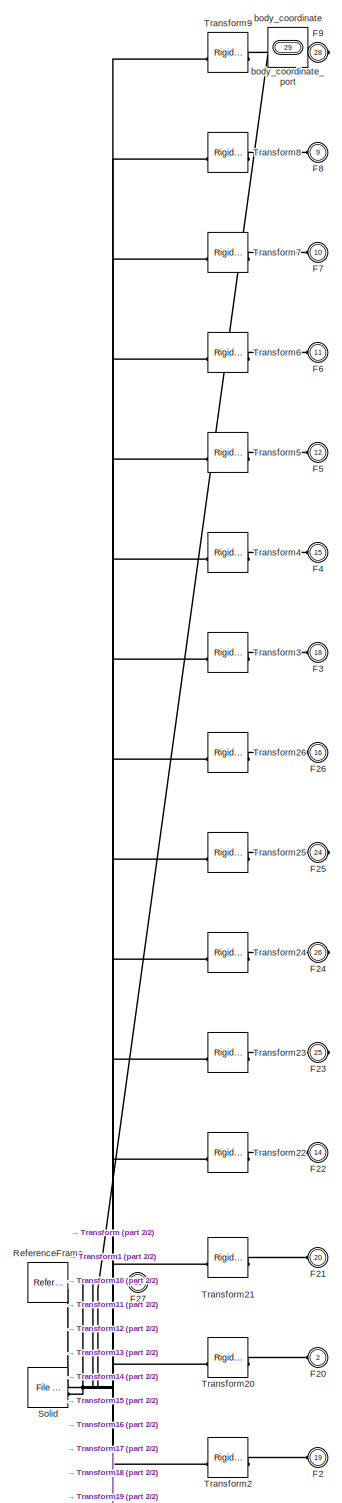
[diagram: Subsystem/TopView_1_RIGID - part 1/2, full width, top band]
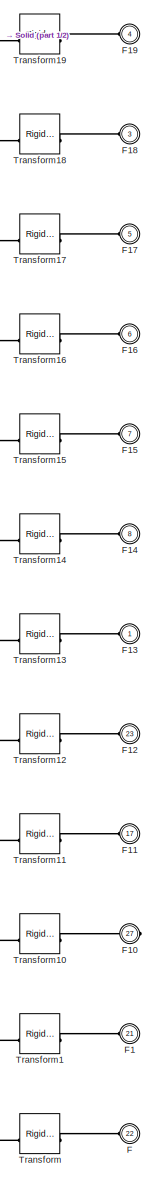
[diagram: Subsystem/TopView_1_RIGID - part 2/2, bottom right region]
BLOCK [SubSystem] Subsystem/TopView_1_RIGID
BLOCK [PMIOPort] Subsystem/TopView_1_RIGID/F
  Port = 22
  Side = Left
BLOCK [PMIOPort] Subsystem/TopView_1_RIGID/F1
  Port = 21
  Side = Left
BLOCK [PMIOPort] Subsystem/TopView_1_RIGID/F10
  Port = 27
  Side = Right
BLOCK [PMIOPort] Subsystem/TopView_1_RIGID/F11
  Port = 17
  Side = Left
BLOCK [PMIOPort] Subsystem/TopView_1_RIGID/F12
  Port = 23
  Side = Left
BLOCK [PMIOPort] Subsystem/TopView_1_RIGID/F13
  Side = Left
BLOCK [PMIOPort] Subsystem/TopView_1_RIGID/F14
  Port = 8
  Side = Left
BLOCK [PMIOPort] Subsystem/TopView_1_RIGID/F15
  Port = 7
  Side = Left
BLOCK [PMIOPort] Subsystem/TopView_1_RIGID/F16
  Port = 6
  Side = Left
BLOCK [PMIOPort] Subsystem/TopView_1_RIGID/F17
  Port = 5
  Side = Left
BLOCK [PMIOPort] Subsystem/TopView_1_RIGID/F18
  Port = 3
  Side = Left
BLOCK [PMIOPort] Subsystem/TopView_1_RIGID/F19
  Port = 4
  Side = Left
BLOCK [PMIOPort] Subsystem/TopView_1_RIGID/F2
  Port = 19
  Side = Left
BLOCK [PMIOPort] Subsystem/TopView_1_RIGID/F20
  Port = 2
  Side = Left
BLOCK [PMIOPort] Subsystem/TopView_1_RIGID/F21
  Port = 20
  Side = Left
BLOCK [PMIOPort] Subsystem/TopView_1_RIGID/F22
  Port = 14
  Side = Left
BLOCK [PMIOPort] Subsystem/TopView_1_RIGID/F23
  Port = 25
  Side = Right
BLOCK [PMIOPort] Subsystem/TopView_1_RIGID/F24
  Port = 26
  Side = Right
BLOCK [PMIOPort] Subsystem/TopView_1_RIGID/F25
  Port = 24
  Side = Right
BLOCK [PMIOPort] Subsystem/TopView_1_RIGID/F26
  Port = 16
  Side = Left
BLOCK [PMIOPort] Subsystem/TopView_1_RIGID/F27
  Port = 13
  Side = Left
BLOCK [PMIOPort] Subsystem/TopView_1_RIGID/F3
  Port = 18
  Side = Left
BLOCK [PMIOPort] Subsystem/TopView_1_RIGID/F4
  Port = 15
  Side = Left
BLOCK [PMIOPort] Subsystem/TopView_1_RIGID/F5
  Port = 12
  Side = Left
BLOCK [PMIOPort] Subsystem/TopView_1_RIGID/F6
  Port = 11
  Side = Left
BLOCK [PMIOPort] Subsystem/TopView_1_RIGID/F7
  Port = 10
  Side = Left
BLOCK [PMIOPort] Subsystem/TopView_1_RIGID/F8
  Port = 9
  Side = Left
BLOCK [PMIOPort] Subsystem/TopView_1_RIGID/F9
  Port = 28
  Side = Right
BLOCK [Reference] Subsystem/TopView_1_RIGID/ReferenceFrame  REF=sm_lib/Frames and
Transforms/Reference
Frame
  SourceBlock = sm_lib/Frames and\nTransforms/Reference\nFrame
  SourceType = Reference\nFrame
BLOCK [Reference] Subsystem/TopView_1_RIGID/Solid  REF=sm_lib/Body Elements/File Solid
  SourceBlock = sm_lib/Body Elements/File Solid
  SourceType = File Solid
BLOCK [Reference] Subsystem/TopView_1_RIGID/Transform  REF=sm_lib/Frames and
Transforms/Rigid
Transform
  SourceBlock = sm_lib/Frames and\nTransforms/Rigid\nTransform
  SourceType = Rigid\nTransform
BLOCK [Reference] Subsystem/TopView_1_RIGID/Transform1  REF=sm_lib/Frames and
Transforms/Rigid
Transform
  SourceBlock = sm_lib/Frames and\nTransforms/Rigid\nTransform
  SourceType = Rigid\nTransform
BLOCK [Reference] Subsystem/TopView_1_RIGID/Transform10  REF=sm_lib/Frames and
Transforms/Rigid
Transform
  SourceBlock = sm_lib/Frames and\nTransforms/Rigid\nTransform
  SourceType = Rigid\nTransform
BLOCK [Reference] Subsystem/TopView_1_RIGID/Transform11  REF=sm_lib/Frames and
Transforms/Rigid
Transform
  SourceBlock = sm_lib/Frames and\nTransforms/Rigid\nTransform
  SourceType = Rigid\nTransform
BLOCK [Reference] Subsystem/TopView_1_RIGID/Transform12  REF=sm_lib/Frames and
Transforms/Rigid
Transform
  SourceBlock = sm_lib/Frames and\nTransforms/Rigid\nTransform
  SourceType = Rigid\nTransform
BLOCK [Reference] Subsystem/TopView_1_RIGID/Transform13  REF=sm_lib/Frames and
Transforms/Rigid
Transform
  SourceBlock = sm_lib/Frames and\nTransforms/Rigid\nTransform
  SourceType = Rigid\nTransform
BLOCK [Reference] Subsystem/TopView_1_RIGID/Transform14  REF=sm_lib/Frames and
Transforms/Rigid
Transform
  SourceBlock = sm_lib/Frames and\nTransforms/Rigid\nTransform
  SourceType = Rigid\nTransform
BLOCK [Reference] Subsystem/TopView_1_RIGID/Transform15  REF=sm_lib/Frames and
Transforms/Rigid
Transform
  SourceBlock = sm_lib/Frames and\nTransforms/Rigid\nTransform
  SourceType = Rigid\nTransform
BLOCK [Reference] Subsystem/TopView_1_RIGID/Transform16  REF=sm_lib/Frames and
Transforms/Rigid
Transform
  SourceBlock = sm_lib/Frames and\nTransforms/Rigid\nTransform
  SourceType = Rigid\nTransform
BLOCK [Reference] Subsystem/TopView_1_RIGID/Transform17  REF=sm_lib/Frames and
Transforms/Rigid
Transform
  SourceBlock = sm_lib/Frames and\nTransforms/Rigid\nTransform
  SourceType = Rigid\nTransform
BLOCK [Reference] Subsystem/TopView_1_RIGID/Transform18  REF=sm_lib/Frames and
Transforms/Rigid
Transform
  SourceBlock = sm_lib/Frames and\nTransforms/Rigid\nTransform
  SourceType = Rigid\nTransform
BLOCK [Reference] Subsystem/TopView_1_RIGID/Transform19  REF=sm_lib/Frames and
Transforms/Rigid
Transform
  SourceBlock = sm_lib/Frames and\nTransforms/Rigid\nTransform
  SourceType = Rigid\nTransform
BLOCK [Reference] Subsystem/TopView_1_RIGID/Transform2  REF=sm_lib/Frames and
Transforms/Rigid
Transform
  SourceBlock = sm_lib/Frames and\nTransforms/Rigid\nTransform
  SourceType = Rigid\nTransform
BLOCK [Reference] Subsystem/TopView_1_RIGID/Transform20  REF=sm_lib/Frames and
Transforms/Rigid
Transform
  SourceBlock = sm_lib/Frames and\nTransforms/Rigid\nTransform
  SourceType = Rigid\nTransform
BLOCK [Reference] Subsystem/TopView_1_RIGID/Transform21  REF=sm_lib/Frames and
Transforms/Rigid
Transform
  SourceBlock = sm_lib/Frames and\nTransforms/Rigid\nTransform
  SourceType = Rigid\nTransform
BLOCK [Reference] Subsystem/TopView_1_RIGID/Transform22  REF=sm_lib/Frames and
Transforms/Rigid
Transform
  SourceBlock = sm_lib/Frames and\nTransforms/Rigid\nTransform
  SourceType = Rigid\nTransform
BLOCK [Reference] Subsystem/TopView_1_RIGID/Transform23  REF=sm_lib/Frames and
Transforms/Rigid
Transform
  SourceBlock = sm_lib/Frames and\nTransforms/Rigid\nTransform
  SourceType = Rigid\nTransform
BLOCK [Reference] Subsystem/TopView_1_RIGID/Transform24  REF=sm_lib/Frames and
Transforms/Rigid
Transform
  SourceBlock = sm_lib/Frames and\nTransforms/Rigid\nTransform
  SourceType = Rigid\nTransform
BLOCK [Reference] Subsystem/TopView_1_RIGID/Transform25  REF=sm_lib/Frames and
Transforms/Rigid
Transform
  SourceBlock = sm_lib/Frames and\nTransforms/Rigid\nTransform
  SourceType = Rigid\nTransform
BLOCK [Reference] Subsystem/TopView_1_RIGID/Transform26  REF=sm_lib/Frames and
Transforms/Rigid
Transform
  SourceBlock = sm_lib/Frames and\nTransforms/Rigid\nTransform
  SourceType = Rigid\nTransform
BLOCK [Reference] Subsystem/TopView_1_RIGID/Transform3  REF=sm_lib/Frames and
Transforms/Rigid
Transform
  SourceBlock = sm_lib/Frames and\nTransforms/Rigid\nTransform
  SourceType = Rigid\nTransform
BLOCK [Reference] Subsystem/TopView_1_RIGID/Transform4  REF=sm_lib/Frames and
Transforms/Rigid
Transform
  SourceBlock = sm_lib/Frames and\nTransforms/Rigid\nTransform
  SourceType = Rigid\nTransform
BLOCK [Reference] Subsystem/TopView_1_RIGID/Transform5  REF=sm_lib/Frames and
Transforms/Rigid
Transform
  SourceBlock = sm_lib/Frames and\nTransforms/Rigid\nTransform
  SourceType = Rigid\nTransform
BLOCK [Reference] Subsystem/TopView_1_RIGID/Transform6  REF=sm_lib/Frames and
Transforms/Rigid
Transform
  SourceBlock = sm_lib/Frames and\nTransforms/Rigid\nTransform
  SourceType = Rigid\nTransform
BLOCK [Reference] Subsystem/TopView_1_RIGID/Transform7  REF=sm_lib/Frames and
Transforms/Rigid
Transform
  SourceBlock = sm_lib/Frames and\nTransforms/Rigid\nTransform
  SourceType = Rigid\nTransform
BLOCK [Reference] Subsystem/TopView_1_RIGID/Transform8  REF=sm_lib/Frames and
Transforms/Rigid
Transform
  SourceBlock = sm_lib/Frames and\nTransforms/Rigid\nTransform
  SourceType = Rigid\nTransform
BLOCK [Reference] Subsystem/TopView_1_RIGID/Transform9  REF=sm_lib/Frames and
Transforms/Rigid
Transform
  SourceBlock = sm_lib/Frames and\nTransforms/Rigid\nTransform
  SourceType = Rigid\nTransform
BLOCK [Reference] Subsystem/TopView_1_RIGID/body_coordinate  REF=sm_lib/Frames and
Transforms/Rigid
Transform
  SourceBlock = sm_lib/Frames and\nTransforms/Rigid\nTransform
  SourceType = Rigid\nTransform
BLOCK [PMIOPort] Subsystem/TopView_1_RIGID/body_coordinate_port
  Port = 29
  Side = Left
BLOCK [Reference] Subsystem/Transform  REF=sm_lib/Frames and
Transforms/Rigid
Transform
  SourceBlock = sm_lib/Frames and\nTransforms/Rigid\nTransform
  SourceType = Rigid\nTransform
BLOCK [Reference] Subsystem/UAV Phi  REF=sm_lib/Joints/Revolute Joint
  SourceBlock = sm_lib/Joints/Revolute Joint
  SourceType = Revolute Joint
BLOCK [Reference] Subsystem/UAV Pos  REF=sm_lib/Joints/Cartesian
Joint
  SourceBlock = sm_lib/Joints/Cartesian\nJoint
  SourceType = Cartesian\nJoint
BLOCK [Reference] Subsystem/UAV Psi  REF=sm_lib/Joints/Revolute Joint
  SourceBlock = sm_lib/Joints/Revolute Joint
  SourceType = Revolute Joint
BLOCK [Reference] Subsystem/UAV Theta  REF=sm_lib/Joints/Revolute Joint
  SourceBlock = sm_lib/Joints/Revolute Joint
  SourceType = Revolute Joint
BLOCK [Reference] Subsystem/World  REF=sm_lib/Frames and
Transforms/World Frame
  SourceBlock = sm_lib/Frames and\nTransforms/World Frame
  SourceType = World Frame
BLOCK [Reference] Subsystem/psi_theta  REF=sm_lib/Frames and
Transforms/Rigid
Transform
  SourceBlock = sm_lib/Frames and\nTransforms/Rigid\nTransform
  SourceType = Rigid\nTransform
BLOCK [Reference] Subsystem/rev_body  REF=sm_lib/Frames and
Transforms/Rigid
Transform
  SourceBlock = sm_lib/Frames and\nTransforms/Rigid\nTransform
  SourceType = Rigid\nTransform
BLOCK [Reference] Subsystem/theta_phi  REF=sm_lib/Frames and
Transforms/Rigid
Transform
  SourceBlock = sm_lib/Frames and\nTransforms/Rigid\nTransform
  SourceType = Rigid\nTransform
BLOCK [SubSystem] Subsystem/wrist_1st_joint_1_RIGID
BLOCK [PMIOPort] Subsystem/wrist_1st_joint_1_RIGID/F
  Port = 2
  Side = Right
BLOCK [PMIOPort] Subsystem/wrist_1st_joint_1_RIGID/F1
  Side = Left
BLOCK [Reference] Subsystem/wrist_1st_joint_1_RIGID/ReferenceFrame  REF=sm_lib/Frames and
Transforms/Reference
Frame
  SourceBlock = sm_lib/Frames and\nTransforms/Reference\nFrame
  SourceType = Reference\nFrame
BLOCK [Reference] Subsystem/wrist_1st_joint_1_RIGID/Solid  REF=sm_lib/Body Elements/File Solid
  SourceBlock = sm_lib/Body Elements/File Solid
  SourceType = File Solid
BLOCK [Reference] Subsystem/wrist_1st_joint_1_RIGID/Transform  REF=sm_lib/Frames and
Transforms/Rigid
Transform
  SourceBlock = sm_lib/Frames and\nTransforms/Rigid\nTransform
  SourceType = Rigid\nTransform
BLOCK [Reference] Subsystem/wrist_1st_joint_1_RIGID/Transform1  REF=sm_lib/Frames and
Transforms/Rigid
Transform
  SourceBlock = sm_lib/Frames and\nTransforms/Rigid\nTransform
  SourceType = Rigid\nTransform
LINE In_M_1:1 -> Subsystem:5
LINE In_M_2:1 -> Subsystem:3
LINE In_M_3:1 -> Subsystem:6
LINE In_M_4:1 -> Subsystem:7
LINE In_M_5:1 -> Subsystem:9
LINE In_M_6:1 -> Subsystem:8
LINE In_M_7:1 -> Subsystem:10
LINE In_M_8:1 -> Subsystem:4
LINE In_Phi:1 -> Subsystem:19
LINE In_Psi:1 -> Subsystem:17
LINE In_ServoD5545GS1:1 -> Subsystem:11
LINE In_ServoD5545GS3:1 -> Subsystem:12
LINE In_ServoPGSCXII1:1 -> Subsystem:13
LINE In_ServoSSPS1051:1 -> Subsystem:1
LINE In_ServoX2075121:1 -> Subsystem:2
LINE In_Theta:1 -> Subsystem:18
LINE In_X:1 -> Subsystem:14
LINE In_Y:1 -> Subsystem:15
LINE In_Z:1 -> Subsystem:16
LINE Subsystem/In_M_1:1 -> Subsystem/S-PS_M_1:1
LINE Subsystem/In_M_2:1 -> Subsystem/S-PS_M_2:1
LINE Subsystem/In_M_3:1 -> Subsystem/S-PS_M_3:1
LINE Subsystem/In_M_4:1 -> Subsystem/S-PS_M_4:1
LINE Subsystem/In_M_5:1 -> Subsystem/S-PS_M_5:1
LINE Subsystem/In_M_6:1 -> Subsystem/S-PS_M_6:1
LINE Subsystem/In_M_7:1 -> Subsystem/S-PS_M_7:1
LINE Subsystem/In_M_8:1 -> Subsystem/S-PS_M_8:1
LINE Subsystem/In_Phi:1 -> Subsystem/Sim-PS-Phi:1
LINE Subsystem/In_Psi:1 -> Subsystem/Sim-PS-Psi:1
LINE Subsystem/In_ServoD5545GS1:1 -> Subsystem/S-PS_ServoD5545GS1:1
LINE Subsystem/In_ServoD5545GS3:1 -> Subsystem/S-PS_ServoD5545GS3:1
LINE Subsystem/In_ServoPGSCXII1:1 -> Subsystem/S-PS_ServoPGSCXII1:1
LINE Subsystem/In_ServoSSPS1051:1 -> Subsystem/S-PS_ServoSSPS1051:1
LINE Subsystem/In_ServoX2075121:1 -> Subsystem/S-PS_ServoX2075121:1
LINE Subsystem/In_Theta:1 -> Subsystem/Sim-PS-Theta:1
LINE Subsystem/In_X:1 -> Subsystem/Sim-PS-X:1
LINE Subsystem/In_Y:1 -> Subsystem/Sim-PS-Y:1
LINE Subsystem/In_Z:1 -> Subsystem/Sim-PS-Z:1
PLINE Subsystem/Arm1_8_1_RIGID/F1:RConn1 -- Subsystem/Arm1_8_1_RIGID/Transform1:RConn1
PLINE Subsystem/Arm1_8_1_RIGID/F2:RConn1 -- Subsystem/Arm1_8_1_RIGID/Transform2:RConn1
PLINE Subsystem/Arm1_8_1_RIGID/F:RConn1 -- Subsystem/Arm1_8_1_RIGID/Transform:RConn1
PNET net1: Subsystem/Arm1_8_1_RIGID/ReferenceFrame:RConn1 -- Subsystem/Arm1_8_1_RIGID/Solid:RConn1 -- Subsystem/Arm1_8_1_RIGID/Transform1:LConn1 -- Subsystem/Arm1_8_1_RIGID/Transform2:LConn1 -- Subsystem/Arm1_8_1_RIGID/Transform:LConn1
PLINE Subsystem/Arm1_8_1_RIGID:LConn1 -- Subsystem/Revolute14:RConn1
PLINE Subsystem/Arm1_8_1_RIGID:LConn2 -- Subsystem/Cylindrical:RConn1
PLINE Subsystem/Arm1_8_1_RIGID:LConn3 -- Subsystem/TopView_1_RIGID:LConn1
PLINE Subsystem/Arm1_8_2_RIGID/F1:RConn1 -- Subsystem/Arm1_8_2_RIGID/Transform1:RConn1
PLINE Subsystem/Arm1_8_2_RIGID/F2:RConn1 -- Subsystem/Arm1_8_2_RIGID/Transform2:RConn1
PLINE Subsystem/Arm1_8_2_RIGID/F:RConn1 -- Subsystem/Arm1_8_2_RIGID/Transform:RConn1
PNET net2: Subsystem/Arm1_8_2_RIGID/ReferenceFrame:RConn1 -- Subsystem/Arm1_8_2_RIGID/Solid:RConn1 -- Subsystem/Arm1_8_2_RIGID/Transform1:LConn1 -- Subsystem/Arm1_8_2_RIGID/Transform2:LConn1 -- Subsystem/Arm1_8_2_RIGID/Transform:LConn1
PLINE Subsystem/Arm1_8_2_RIGID:LConn1 -- Subsystem/Revolute24:RConn1
PLINE Subsystem/Arm1_8_2_RIGID:LConn2 -- Subsystem/Cylindrical3:RConn1
PLINE Subsystem/Arm1_8_2_RIGID:LConn3 -- Subsystem/TopView_1_RIGID:LConn8
PLINE Subsystem/Arm2_7_1_RIGID/F1:RConn1 -- Subsystem/Arm2_7_1_RIGID/Transform1:RConn1
PLINE Subsystem/Arm2_7_1_RIGID/F:RConn1 -- Subsystem/Arm2_7_1_RIGID/Transform:RConn1
PNET net3: Subsystem/Arm2_7_1_RIGID/ReferenceFrame:RConn1 -- Subsystem/Arm2_7_1_RIGID/Solid:RConn1 -- Subsystem/Arm2_7_1_RIGID/Transform1:LConn1 -- Subsystem/Arm2_7_1_RIGID/Transform:LConn1
PLINE Subsystem/Arm2_7_1_RIGID:LConn1 -- Subsystem/Tmotor_MN505S_Base_7_RIGID:LConn2
PLINE Subsystem/Arm2_7_1_RIGID:LConn2 -- Subsystem/TopView_1_RIGID:LConn7
PLINE Subsystem/Arm2_7_2_RIGID/F1:RConn1 -- Subsystem/Arm2_7_2_RIGID/Transform1:RConn1
PLINE Subsystem/Arm2_7_2_RIGID/F2:RConn1 -- Subsystem/Arm2_7_2_RIGID/Transform2:RConn1
PLINE Subsystem/Arm2_7_2_RIGID/F:RConn1 -- Subsystem/Arm2_7_2_RIGID/Transform:RConn1
PNET net4: Subsystem/Arm2_7_2_RIGID/ReferenceFrame:RConn1 -- Subsystem/Arm2_7_2_RIGID/Solid:RConn1 -- Subsystem/Arm2_7_2_RIGID/Transform1:LConn1 -- Subsystem/Arm2_7_2_RIGID/Transform2:LConn1 -- Subsystem/Arm2_7_2_RIGID/Transform:LConn1
PLINE Subsystem/Arm2_7_2_RIGID:LConn1 -- Subsystem/Revolute16:RConn1
PLINE Subsystem/Arm2_7_2_RIGID:LConn2 -- Subsystem/Cylindrical1:RConn1
PLINE Subsystem/Arm2_7_2_RIGID:LConn3 -- Subsystem/TopView_1_RIGID:LConn6
PLINE Subsystem/Arm3_6_1_RIGID/F1:RConn1 -- Subsystem/Arm3_6_1_RIGID/Transform1:RConn1
PLINE Subsystem/Arm3_6_1_RIGID/F:RConn1 -- Subsystem/Arm3_6_1_RIGID/Transform:RConn1
PNET net5: Subsystem/Arm3_6_1_RIGID/ReferenceFrame:RConn1 -- Subsystem/Arm3_6_1_RIGID/Solid:RConn1 -- Subsystem/Arm3_6_1_RIGID/Transform1:LConn1 -- Subsystem/Arm3_6_1_RIGID/Transform:LConn1
PLINE Subsystem/Arm3_6_1_RIGID:LConn1 -- Subsystem/Tmotor_MN505S_Base_6_RIGID:LConn2
PLINE Subsystem/Arm3_6_1_RIGID:LConn2 -- Subsystem/TopView_1_RIGID:LConn5
PLINE Subsystem/Arm3_6_2_RIGID/F1:RConn1 -- Subsystem/Arm3_6_2_RIGID/Transform1:RConn1
PLINE Subsystem/Arm3_6_2_RIGID/F2:RConn1 -- Subsystem/Arm3_6_2_RIGID/Transform2:RConn1
PLINE Subsystem/Arm3_6_2_RIGID/F:RConn1 -- Subsystem/Arm3_6_2_RIGID/Transform:RConn1
PNET net6: Subsystem/Arm3_6_2_RIGID/ReferenceFrame:RConn1 -- Subsystem/Arm3_6_2_RIGID/Solid:RConn1 -- Subsystem/Arm3_6_2_RIGID/Transform1:LConn1 -- Subsystem/Arm3_6_2_RIGID/Transform2:LConn1 -- Subsystem/Arm3_6_2_RIGID/Transform:LConn1
PLINE Subsystem/Arm3_6_2_RIGID:LConn1 -- Subsystem/Revolute18:RConn1
PLINE Subsystem/Arm3_6_2_RIGID:LConn2 -- Subsystem/Cylindrical2:RConn1
PLINE Subsystem/Arm3_6_2_RIGID:LConn3 -- Subsystem/TopView_1_RIGID:LConn3
PLINE Subsystem/Arm4_5_1_RIGID/F1:RConn1 -- Subsystem/Arm4_5_1_RIGID/Transform1:RConn1
PLINE Subsystem/Arm4_5_1_RIGID/F:RConn1 -- Subsystem/Arm4_5_1_RIGID/Transform:RConn1
PNET net7: Subsystem/Arm4_5_1_RIGID/ReferenceFrame:RConn1 -- Subsystem/Arm4_5_1_RIGID/Solid:RConn1 -- Subsystem/Arm4_5_1_RIGID/Transform1:LConn1 -- Subsystem/Arm4_5_1_RIGID/Transform:LConn1
PLINE Subsystem/Arm4_5_1_RIGID:LConn1 -- Subsystem/Tmotor_MN505S_Base_5_RIGID:LConn2
PLINE Subsystem/Arm4_5_1_RIGID:LConn2 -- Subsystem/TopView_1_RIGID:LConn4
PLINE Subsystem/Arm4_5_2_RIGID/F1:RConn1 -- Subsystem/Arm4_5_2_RIGID/Transform1:RConn1
PLINE Subsystem/Arm4_5_2_RIGID/F:RConn1 -- Subsystem/Arm4_5_2_RIGID/Transform:RConn1
PNET net8: Subsystem/Arm4_5_2_RIGID/ReferenceFrame:RConn1 -- Subsystem/Arm4_5_2_RIGID/Solid:RConn1 -- Subsystem/Arm4_5_2_RIGID/Transform1:LConn1 -- Subsystem/Arm4_5_2_RIGID/Transform:LConn1
PLINE Subsystem/Arm4_5_2_RIGID:LConn1 -- Subsystem/Tmotor_MN505S_Base_4_RIGID:LConn2
PLINE Subsystem/Arm4_5_2_RIGID:LConn2 -- Subsystem/TopView_1_RIGID:LConn2
PLINE Subsystem/Arm_1st_1_RIGID/F1:RConn1 -- Subsystem/Arm_1st_1_RIGID/Transform1:RConn1
PLINE Subsystem/Arm_1st_1_RIGID/F2:RConn1 -- Subsystem/Arm_1st_1_RIGID/Transform2:RConn1
PLINE Subsystem/Arm_1st_1_RIGID/F3:RConn1 -- Subsystem/Arm_1st_1_RIGID/Transform3:RConn1
PLINE Subsystem/Arm_1st_1_RIGID/F:RConn1 -- Subsystem/Arm_1st_1_RIGID/Transform:RConn1
PNET net9: Subsystem/Arm_1st_1_RIGID/ReferenceFrame:RConn1 -- Subsystem/Arm_1st_1_RIGID/Solid:RConn1 -- Subsystem/Arm_1st_1_RIGID/Transform1:LConn1 -- Subsystem/Arm_1st_1_RIGID/Transform2:LConn1 -- Subsystem/Arm_1st_1_RIGID/Transform3:LConn1 -- Subsystem/Arm_1st_1_RIGID/Transform:LConn1
PLINE Subsystem/Arm_1st_1_RIGID:LConn1 -- Subsystem/Servo_X20_7512_1_RIGID:LConn2
PLINE Subsystem/Arm_1st_1_RIGID:LConn2 -- Subsystem/Revolute11:RConn1
PLINE Subsystem/Arm_1st_1_RIGID:RConn1 -- Subsystem/Revolute10:LConn1
PLINE Subsystem/Arm_1st_1_RIGID:RConn2 -- Subsystem/ServoSSPS1051:LConn1
PLINE Subsystem/Arm_2nd_1_RIGID/F1:RConn1 -- Subsystem/Arm_2nd_1_RIGID/Transform1:RConn1
PLINE Subsystem/Arm_2nd_1_RIGID/F2:RConn1 -- Subsystem/Arm_2nd_1_RIGID/Transform2:RConn1
PLINE Subsystem/Arm_2nd_1_RIGID/F:RConn1 -- Subsystem/Arm_2nd_1_RIGID/Transform:RConn1
PNET net10: Subsystem/Arm_2nd_1_RIGID/ReferenceFrame:RConn1 -- Subsystem/Arm_2nd_1_RIGID/Solid:RConn1 -- Subsystem/Arm_2nd_1_RIGID/Transform1:LConn1 -- Subsystem/Arm_2nd_1_RIGID/Transform2:LConn1 -- Subsystem/Arm_2nd_1_RIGID/Transform:LConn1
PLINE Subsystem/Arm_2nd_1_RIGID:LConn1 -- Subsystem/Servo_D5545GS_1_RIGID:LConn1
PLINE Subsystem/Arm_2nd_1_RIGID:RConn1 -- Subsystem/ServoX2075121:LConn1
PLINE Subsystem/Arm_2nd_1_RIGID:RConn2 -- Subsystem/Revolute11:LConn1
PLINE Subsystem/Arm_Base_2_RIGID/F1:RConn1 -- Subsystem/Arm_Base_2_RIGID/Transform1:RConn1
PLINE Subsystem/Arm_Base_2_RIGID/F2:RConn1 -- Subsystem/Arm_Base_2_RIGID/Transform2:RConn1
PLINE Subsystem/Arm_Base_2_RIGID/F3:RConn1 -- Subsystem/Arm_Base_2_RIGID/Transform3:RConn1
PLINE Subsystem/Arm_Base_2_RIGID/F:RConn1 -- Subsystem/Arm_Base_2_RIGID/Transform:RConn1
PNET net11: Subsystem/Arm_Base_2_RIGID/ReferenceFrame:RConn1 -- Subsystem/Arm_Base_2_RIGID/Solid:RConn1 -- Subsystem/Arm_Base_2_RIGID/Transform1:LConn1 -- Subsystem/Arm_Base_2_RIGID/Transform2:LConn1 -- Subsystem/Arm_Base_2_RIGID/Transform3:LConn1 -- Subsystem/Arm_Base_2_RIGID/Transform:LConn1
PLINE Subsystem/Arm_Base_2_RIGID:LConn1 -- Subsystem/Revolute7:RConn1
PLINE Subsystem/Arm_Base_2_RIGID:LConn2 -- Subsystem/Revolute10:RConn1
PLINE Subsystem/Arm_Base_2_RIGID:LConn3 -- Subsystem/Servo_SSPS_105_1_RIGID:LConn1
PLINE Subsystem/Arm_Base_2_RIGID:RConn1 -- Subsystem/ServoPGSCXII1:LConn1
PLINE Subsystem/Autopilot_1_RIGID/F1:RConn1 -- Subsystem/Autopilot_1_RIGID/Transform1:RConn1
PLINE Subsystem/Autopilot_1_RIGID/F2:RConn1 -- Subsystem/Autopilot_1_RIGID/Transform2:RConn1
PLINE Subsystem/Autopilot_1_RIGID/F3:RConn1 -- Subsystem/Autopilot_1_RIGID/Transform3:RConn1
PLINE Subsystem/Autopilot_1_RIGID/F:RConn1 -- Subsystem/Autopilot_1_RIGID/Transform:RConn1
PNET net12: Subsystem/Autopilot_1_RIGID/ReferenceFrame:RConn1 -- Subsystem/Autopilot_1_RIGID/Solid:RConn1 -- Subsystem/Autopilot_1_RIGID/Transform1:LConn1 -- Subsystem/Autopilot_1_RIGID/Transform2:LConn1 -- Subsystem/Autopilot_1_RIGID/Transform3:LConn1 -- Subsystem/Autopilot_1_RIGID/Transform:LConn1
PLINE Subsystem/Autopilot_1_RIGID:LConn1 -- Subsystem/Planar:RConn1
PLINE Subsystem/Autopilot_1_RIGID:LConn2 -- Subsystem/Planar5:RConn1
PLINE Subsystem/Autopilot_1_RIGID:RConn1 -- Subsystem/Planar6:LConn1
PLINE Subsystem/Autopilot_1_RIGID:RConn2 -- Subsystem/Planar8:LConn1
PLINE Subsystem/CamBase_1_RIGID/F1:RConn1 -- Subsystem/CamBase_1_RIGID/Transform1:RConn1
PLINE Subsystem/CamBase_1_RIGID/F2:RConn1 -- Subsystem/CamBase_1_RIGID/Transform2:RConn1
PLINE Subsystem/CamBase_1_RIGID/F:RConn1 -- Subsystem/CamBase_1_RIGID/Transform:RConn1
PNET net13: Subsystem/CamBase_1_RIGID/ReferenceFrame:RConn1 -- Subsystem/CamBase_1_RIGID/Solid:RConn1 -- Subsystem/CamBase_1_RIGID/Transform1:LConn1 -- Subsystem/CamBase_1_RIGID/Transform2:LConn1 -- Subsystem/CamBase_1_RIGID/Transform:LConn1
PLINE Subsystem/CamBase_1_RIGID:LConn1 -- Subsystem/Parallel:RConn1
PLINE Subsystem/CamBase_1_RIGID:LConn2 -- Subsystem/Cover_2_RIGID:LConn1
PLINE Subsystem/CamBase_1_RIGID:RConn1 -- Subsystem/Revolute12:LConn1
PLINE Subsystem/Cam_RP_Arm_1_RIGID/F1:RConn1 -- Subsystem/Cam_RP_Arm_1_RIGID/Transform1:RConn1
PLINE Subsystem/Cam_RP_Arm_1_RIGID/F:RConn1 -- Subsystem/Cam_RP_Arm_1_RIGID/Transform:RConn1
PNET net14: Subsystem/Cam_RP_Arm_1_RIGID/ReferenceFrame:RConn1 -- Subsystem/Cam_RP_Arm_1_RIGID/Solid:RConn1 -- Subsystem/Cam_RP_Arm_1_RIGID/Transform1:LConn1 -- Subsystem/Cam_RP_Arm_1_RIGID/Transform:LConn1
PLINE Subsystem/Cam_RP_Arm_1_RIGID:LConn1 -- Subsystem/Camera_1_RIGID:LConn1
PLINE Subsystem/Cam_RP_Arm_1_RIGID:RConn1 -- Subsystem/Revolute9:LConn1
PLINE Subsystem/Cam_YR_Arm_1_RIGID/F1:RConn1 -- Subsystem/Cam_YR_Arm_1_RIGID/Transform1:RConn1
PLINE Subsystem/Cam_YR_Arm_1_RIGID/F:RConn1 -- Subsystem/Cam_YR_Arm_1_RIGID/Transform:RConn1
PNET net15: Subsystem/Cam_YR_Arm_1_RIGID/ReferenceFrame:RConn1 -- Subsystem/Cam_YR_Arm_1_RIGID/Solid:RConn1 -- Subsystem/Cam_YR_Arm_1_RIGID/Transform1:LConn1 -- Subsystem/Cam_YR_Arm_1_RIGID/Transform:LConn1
PLINE Subsystem/Cam_YR_Arm_1_RIGID:LConn1 -- Subsystem/Revolute12:RConn1
PLINE Subsystem/Cam_YR_Arm_1_RIGID:LConn2 -- Subsystem/Revolute9:RConn1
PLINE Subsystem/Camera_1_RIGID/F:RConn1 -- Subsystem/Camera_1_RIGID/Transform:RConn1
PNET net16: Subsystem/Camera_1_RIGID/ReferenceFrame:RConn1 -- Subsystem/Camera_1_RIGID/Solid:RConn1 -- Subsystem/Camera_1_RIGID/Transform:LConn1
PLINE Subsystem/Cover_2_RIGID/F1:RConn1 -- Subsystem/Cover_2_RIGID/Transform1:RConn1
PLINE Subsystem/Cover_2_RIGID/F:RConn1 -- Subsystem/Cover_2_RIGID/Transform:RConn1
PNET net17: Subsystem/Cover_2_RIGID/ReferenceFrame:RConn1 -- Subsystem/Cover_2_RIGID/Solid:RConn1 -- Subsystem/Cover_2_RIGID/Transform1:LConn1 -- Subsystem/Cover_2_RIGID/Transform:LConn1
PLINE Subsystem/Cover_2_RIGID:LConn2 -- Subsystem/TopView_1_RIGID:LConn23
PLINE Subsystem/Cylindrical1:LConn1 -- Subsystem/Tmotor_MN505S_Skin_2_RIGID:RConn4
PLINE Subsystem/Cylindrical2:LConn1 -- Subsystem/Tmotor_MN505S_Skin_3_RIGID:RConn2
PLINE Subsystem/Cylindrical3:LConn1 -- Subsystem/Tmotor_MN505S_Skin_8_RIGID:RConn4
PLINE Subsystem/Cylindrical:LConn1 -- Subsystem/Tmotor_MN505S_Skin_1_RIGID:RConn1
PLINE Subsystem/Device_1_RIGID/F:RConn1 -- Subsystem/Device_1_RIGID/Transform:RConn1
PNET net18: Subsystem/Device_1_RIGID/ReferenceFrame:RConn1 -- Subsystem/Device_1_RIGID/Solid:RConn1 -- Subsystem/Device_1_RIGID/Transform:LConn1
PLINE Subsystem/Device_1_RIGID:LConn1 -- Subsystem/TopView_1_RIGID:LConn22
PLINE Subsystem/F27:RConn1 -- Subsystem/TopView_1_RIGID:LConn13
PLINE Subsystem/FLAME_70A_6S_1_RIGID/F:RConn1 -- Subsystem/FLAME_70A_6S_1_RIGID/Transform:RConn1
PNET net19: Subsystem/FLAME_70A_6S_1_RIGID/ReferenceFrame:RConn1 -- Subsystem/FLAME_70A_6S_1_RIGID/Solid:RConn1 -- Subsystem/FLAME_70A_6S_1_RIGID/Transform:LConn1
PLINE Subsystem/FLAME_70A_6S_1_RIGID:LConn1 -- Subsystem/TopView_1_RIGID:LConn21
PLINE Subsystem/FLAME_70A_6S_2_RIGID/F:RConn1 -- Subsystem/FLAME_70A_6S_2_RIGID/Transform:RConn1
PNET net20: Subsystem/FLAME_70A_6S_2_RIGID/ReferenceFrame:RConn1 -- Subsystem/FLAME_70A_6S_2_RIGID/Solid:RConn1 -- Subsystem/FLAME_70A_6S_2_RIGID/Transform:LConn1
PLINE Subsystem/FLAME_70A_6S_2_RIGID:LConn1 -- Subsystem/TopView_1_RIGID:LConn19
PLINE Subsystem/FLAME_70A_6S_3_RIGID/F:RConn1 -- Subsystem/FLAME_70A_6S_3_RIGID/Transform:RConn1
PNET net21: Subsystem/FLAME_70A_6S_3_RIGID/ReferenceFrame:RConn1 -- Subsystem/FLAME_70A_6S_3_RIGID/Solid:RConn1 -- Subsystem/FLAME_70A_6S_3_RIGID/Transform:LConn1
PLINE Subsystem/FLAME_70A_6S_3_RIGID:LConn1 -- Subsystem/TopView_1_RIGID:LConn18
PLINE Subsystem/FLAME_70A_6S_4_RIGID/F:RConn1 -- Subsystem/FLAME_70A_6S_4_RIGID/Transform:RConn1
PNET net22: Subsystem/FLAME_70A_6S_4_RIGID/ReferenceFrame:RConn1 -- Subsystem/FLAME_70A_6S_4_RIGID/Solid:RConn1 -- Subsystem/FLAME_70A_6S_4_RIGID/Transform:LConn1
PLINE Subsystem/FLAME_70A_6S_4_RIGID:LConn1 -- Subsystem/TopView_1_RIGID:LConn15
PLINE Subsystem/FLAME_70A_6S_5_RIGID/F:RConn1 -- Subsystem/FLAME_70A_6S_5_RIGID/Transform:RConn1
PNET net23: Subsystem/FLAME_70A_6S_5_RIGID/ReferenceFrame:RConn1 -- Subsystem/FLAME_70A_6S_5_RIGID/Solid:RConn1 -- Subsystem/FLAME_70A_6S_5_RIGID/Transform:LConn1
PLINE Subsystem/FLAME_70A_6S_5_RIGID:LConn1 -- Subsystem/TopView_1_RIGID:LConn12
PLINE Subsystem/FLAME_70A_6S_6_RIGID/F:RConn1 -- Subsystem/FLAME_70A_6S_6_RIGID/Transform:RConn1
PNET net24: Subsystem/FLAME_70A_6S_6_RIGID/ReferenceFrame:RConn1 -- Subsystem/FLAME_70A_6S_6_RIGID/Solid:RConn1 -- Subsystem/FLAME_70A_6S_6_RIGID/Transform:LConn1
PLINE Subsystem/FLAME_70A_6S_6_RIGID:LConn1 -- Subsystem/TopView_1_RIGID:LConn11
PLINE Subsystem/FLAME_70A_6S_7_RIGID/F:RConn1 -- Subsystem/FLAME_70A_6S_7_RIGID/Transform:RConn1
PNET net25: Subsystem/FLAME_70A_6S_7_RIGID/ReferenceFrame:RConn1 -- Subsystem/FLAME_70A_6S_7_RIGID/Solid:RConn1 -- Subsystem/FLAME_70A_6S_7_RIGID/Transform:LConn1
PLINE Subsystem/FLAME_70A_6S_7_RIGID:LConn1 -- Subsystem/TopView_1_RIGID:LConn10
PLINE Subsystem/FLAME_70A_6S_8_RIGID/F:RConn1 -- Subsystem/FLAME_70A_6S_8_RIGID/Transform:RConn1
PNET net26: Subsystem/FLAME_70A_6S_8_RIGID/ReferenceFrame:RConn1 -- Subsystem/FLAME_70A_6S_8_RIGID/Solid:RConn1 -- Subsystem/FLAME_70A_6S_8_RIGID/Transform:LConn1
PLINE Subsystem/FLAME_70A_6S_8_RIGID:LConn1 -- Subsystem/TopView_1_RIGID:LConn9
PLINE Subsystem/IMU_1_RIGID/F1:RConn1 -- Subsystem/IMU_1_RIGID/Transform1:RConn1
PLINE Subsystem/IMU_1_RIGID/F2:RConn1 -- Subsystem/IMU_1_RIGID/Transform2:RConn1
PLINE Subsystem/IMU_1_RIGID/F:RConn1 -- Subsystem/IMU_1_RIGID/Transform:RConn1
PNET net27: Subsystem/IMU_1_RIGID/ReferenceFrame:RConn1 -- Subsystem/IMU_1_RIGID/Solid:RConn1 -- Subsystem/IMU_1_RIGID/Transform1:LConn1 -- Subsystem/IMU_1_RIGID/Transform2:LConn1 -- Subsystem/IMU_1_RIGID/Transform:LConn1
PLINE Subsystem/IMU_1_RIGID:LConn1 -- Subsystem/TopView_1_RIGID:LConn16
PLINE Subsystem/IMU_1_RIGID:LConn2 -- Subsystem/Planar8:RConn1
PLINE Subsystem/IMU_1_RIGID:RConn1 -- Subsystem/Prismatic2:LConn1
PLINE Subsystem/M_1:LConn1 -- Subsystem/Prop_22_66_CW_1_RIGID:RConn2
PLINE Subsystem/M_1:LConn2 -- Subsystem/S-PS_M_1:RConn1
PLINE Subsystem/M_1:RConn1 -- Subsystem/Tmotor_MN505S_Skin_1_RIGID:LConn2
PLINE Subsystem/M_2:LConn1 -- Subsystem/Tmotor_MN505S_Skin_2_RIGID:RConn1
PLINE Subsystem/M_2:LConn2 -- Subsystem/S-PS_M_2:RConn1
PLINE Subsystem/M_2:RConn1 -- Subsystem/Prop_22_66_CCW_4_RIGID:LConn1
PLINE Subsystem/M_3:LConn1 -- Subsystem/Prop_22_66_CW_5_RIGID:RConn2
PLINE Subsystem/M_3:LConn2 -- Subsystem/S-PS_M_3:RConn1
PLINE Subsystem/M_3:RConn1 -- Subsystem/Tmotor_MN505S_Skin_3_RIGID:LConn1
PLINE Subsystem/M_4:LConn1 -- Subsystem/Tmotor_MN505S_Skin_4_RIGID:RConn1
PLINE Subsystem/M_4:LConn2 -- Subsystem/S-PS_M_4:RConn1
PLINE Subsystem/M_4:RConn1 -- Subsystem/Prop_22_66_CCW_1_RIGID:LConn2
PLINE Subsystem/M_5:LConn1 -- Subsystem/Tmotor_MN505S_Skin_5_RIGID:RConn1
PLINE Subsystem/M_5:LConn2 -- Subsystem/S-PS_M_5:RConn1
PLINE Subsystem/M_5:RConn1 -- Subsystem/Prop_22_66_CW_10_RIGID:LConn2
PLINE Subsystem/M_6:LConn1 -- Subsystem/Tmotor_MN505S_Skin_6_RIGID:RConn1
PLINE Subsystem/M_6:LConn2 -- Subsystem/S-PS_M_6:RConn1
PLINE Subsystem/M_6:RConn1 -- Subsystem/Prop_22_66_CCW_6_RIGID:LConn1
PLINE Subsystem/M_7:LConn1 -- Subsystem/Prop_22_66_CW_13_RIGID:RConn2
PLINE Subsystem/M_7:LConn2 -- Subsystem/S-PS_M_7:RConn1
PLINE Subsystem/M_7:RConn1 -- Subsystem/Tmotor_MN505S_Skin_7_RIGID:LConn1
PLINE Subsystem/M_8:LConn1 -- Subsystem/Tmotor_MN505S_Skin_8_RIGID:RConn2
PLINE Subsystem/M_8:LConn2 -- Subsystem/S-PS_M_8:RConn1
PLINE Subsystem/M_8:RConn1 -- Subsystem/Prop_22_66_CCW_7_RIGID:LConn2
PNET net28: Subsystem/MechanismConfiguration:RConn1 -- Subsystem/Solver Configuration:RConn1 -- Subsystem/Transform:LConn1 -- Subsystem/World:RConn1
PLINE Subsystem/On_Board_Computer_1_RIGID/F1:RConn1 -- Subsystem/On_Board_Computer_1_RIGID/Transform1:RConn1
PLINE Subsystem/On_Board_Computer_1_RIGID/F2:RConn1 -- Subsystem/On_Board_Computer_1_RIGID/Transform2:RConn1
PLINE Subsystem/On_Board_Computer_1_RIGID/F3:RConn1 -- Subsystem/On_Board_Computer_1_RIGID/Transform3:RConn1
PLINE Subsystem/On_Board_Computer_1_RIGID/F:RConn1 -- Subsystem/On_Board_Computer_1_RIGID/Transform:RConn1
PNET net29: Subsystem/On_Board_Computer_1_RIGID/ReferenceFrame:RConn1 -- Subsystem/On_Board_Computer_1_RIGID/Solid:RConn1 -- Subsystem/On_Board_Computer_1_RIGID/Transform1:LConn1 -- Subsystem/On_Board_Computer_1_RIGID/Transform2:LConn1 -- Subsystem/On_Board_Computer_1_RIGID/Transform3:LConn1 -- Subsystem/On_Board_Computer_1_RIGID/Transform:LConn1
PLINE Subsystem/On_Board_Computer_1_RIGID:LConn1 -- Subsystem/TopView_1_RIGID:LConn17
PLINE Subsystem/On_Board_Computer_1_RIGID:LConn2 -- Subsystem/Prismatic2:RConn1
PLINE Subsystem/On_Board_Computer_1_RIGID:RConn1 -- Subsystem/Planar7:LConn1
PLINE Subsystem/On_Board_Computer_1_RIGID:RConn2 -- Subsystem/Planar5:LConn1
PLINE Subsystem/Parallel:LConn1 -- Subsystem/TopView_1_RIGID:RConn1
PLINE Subsystem/Planar10:LConn1 -- Subsystem/Tmotor_MN505S_Skin_8_RIGID:RConn1
PLINE Subsystem/Planar10:RConn1 -- Subsystem/Prop_22_66_CCW_8_RIGID:LConn1
PLINE Subsystem/Planar11:LConn1 -- Subsystem/Prop_22_66_CW_9_RIGID:RConn1
PLINE Subsystem/Planar11:RConn1 -- Subsystem/Prop_22_66_CW_10_RIGID:LConn1
PLINE Subsystem/Planar12:LConn1 -- Subsystem/Prop_22_66_CW_13_RIGID:RConn1
PLINE Subsystem/Planar12:RConn1 -- Subsystem/Prop_22_66_CW_14_RIGID:LConn1
PLINE Subsystem/Planar1:LConn1 -- Subsystem/TopView_1_RIGID:RConn2
PLINE Subsystem/Planar1:RConn1 -- Subsystem/TATTU_Semi_solid_17000mAh_5C_22_2V_6S1P_2_RIGID:LConn1
PLINE Subsystem/Planar2:LConn1 -- Subsystem/TopView_1_RIGID:RConn3
PLINE Subsystem/Planar2:RConn1 -- Subsystem/TATTU_Semi_solid_17000mAh_5C_22_2V_6S1P_3_RIGID:LConn1
PLINE Subsystem/Planar3:LConn1 -- Subsystem/Prop_22_66_CW_1_RIGID:RConn1
PLINE Subsystem/Planar3:RConn1 -- Subsystem/Prop_22_66_CW_2_RIGID:LConn1
PLINE Subsystem/Planar4:LConn1 -- Subsystem/Prop_22_66_CW_5_RIGID:RConn1
PLINE Subsystem/Planar4:RConn1 -- Subsystem/Prop_22_66_CW_6_RIGID:LConn1
PLINE Subsystem/Planar6:RConn1 -- Subsystem/TATTU_Semi_solid_17000mAh_5C_22_2V_6S1P_3_RIGID:LConn2
PLINE Subsystem/Planar7:RConn1 -- Subsystem/TATTU_Semi_solid_17000mAh_5C_22_2V_6S1P_1_RIGID:LConn3
PLINE Subsystem/Planar9:LConn1 -- Subsystem/Tmotor_MN505S_Skin_2_RIGID:RConn2
PLINE Subsystem/Planar9:RConn1 -- Subsystem/Prop_22_66_CCW_3_RIGID:LConn2
PLINE Subsystem/Planar:LConn1 -- Subsystem/TopView_1_RIGID:RConn4
PLINE Subsystem/Prismatic1:LConn1 -- Subsystem/TATTU_Semi_solid_17000mAh_5C_22_2V_6S1P_3_RIGID:RConn1
PLINE Subsystem/Prismatic1:RConn1 -- Subsystem/TATTU_Semi_solid_17000mAh_5C_22_2V_6S1P_1_RIGID:LConn2
PLINE Subsystem/Prismatic:LConn1 -- Subsystem/TATTU_Semi_solid_17000mAh_5C_22_2V_6S1P_1_RIGID:RConn1
PLINE Subsystem/Prismatic:RConn1 -- Subsystem/TATTU_Semi_solid_17000mAh_5C_22_2V_6S1P_2_RIGID:LConn2
PLINE Subsystem/Prob_1_RIGID/F:RConn1 -- Subsystem/Prob_1_RIGID/Transform:RConn1
PNET net30: Subsystem/Prob_1_RIGID/ReferenceFrame:RConn1 -- Subsystem/Prob_1_RIGID/Solid:RConn1 -- Subsystem/Prob_1_RIGID/Transform:LConn1
PLINE Subsystem/Prob_1_RIGID:LConn1 -- Subsystem/ProbrHolder_1_RIGID:LConn1
PLINE Subsystem/ProbrHolder_1_RIGID/F1:RConn1 -- Subsystem/ProbrHolder_1_RIGID/Transform1:RConn1
PLINE Subsystem/ProbrHolder_1_RIGID/F:RConn1 -- Subsystem/ProbrHolder_1_RIGID/Transform:RConn1
PNET net31: Subsystem/ProbrHolder_1_RIGID/ReferenceFrame:RConn1 -- Subsystem/ProbrHolder_1_RIGID/Solid:RConn1 -- Subsystem/ProbrHolder_1_RIGID/Transform1:LConn1 -- Subsystem/ProbrHolder_1_RIGID/Transform:LConn1
PLINE Subsystem/ProbrHolder_1_RIGID:LConn2 -- Subsystem/ServoD5545GS3:RConn1
PLINE Subsystem/Prop_22_66_CCW_1_RIGID/F1:RConn1 -- Subsystem/Prop_22_66_CCW_1_RIGID/Transform1:RConn1
PLINE Subsystem/Prop_22_66_CCW_1_RIGID/F:RConn1 -- Subsystem/Prop_22_66_CCW_1_RIGID/Transform:RConn1
PNET net32: Subsystem/Prop_22_66_CCW_1_RIGID/ReferenceFrame:RConn1 -- Subsystem/Prop_22_66_CCW_1_RIGID/Solid:RConn1 -- Subsystem/Prop_22_66_CCW_1_RIGID/Transform1:LConn1 -- Subsystem/Prop_22_66_CCW_1_RIGID/Transform:LConn1
PLINE Subsystem/Prop_22_66_CCW_1_RIGID:LConn1 -- Subsystem/Prop_22_66_CCW_2_RIGID:LConn1
PLINE Subsystem/Prop_22_66_CCW_2_RIGID/F:RConn1 -- Subsystem/Prop_22_66_CCW_2_RIGID/Transform:RConn1
PNET net33: Subsystem/Prop_22_66_CCW_2_RIGID/ReferenceFrame:RConn1 -- Subsystem/Prop_22_66_CCW_2_RIGID/Solid:RConn1 -- Subsystem/Prop_22_66_CCW_2_RIGID/Transform:LConn1
PLINE Subsystem/Prop_22_66_CCW_3_RIGID/F1:RConn1 -- Subsystem/Prop_22_66_CCW_3_RIGID/Transform1:RConn1
PLINE Subsystem/Prop_22_66_CCW_3_RIGID/F:RConn1 -- Subsystem/Prop_22_66_CCW_3_RIGID/Transform:RConn1
PNET net34: Subsystem/Prop_22_66_CCW_3_RIGID/ReferenceFrame:RConn1 -- Subsystem/Prop_22_66_CCW_3_RIGID/Solid:RConn1 -- Subsystem/Prop_22_66_CCW_3_RIGID/Transform1:LConn1 -- Subsystem/Prop_22_66_CCW_3_RIGID/Transform:LConn1
PLINE Subsystem/Prop_22_66_CCW_3_RIGID:LConn1 -- Subsystem/Prop_22_66_CCW_4_RIGID:LConn2
PLINE Subsystem/Prop_22_66_CCW_4_RIGID/F1:RConn1 -- Subsystem/Prop_22_66_CCW_4_RIGID/Transform1:RConn1
PLINE Subsystem/Prop_22_66_CCW_4_RIGID/F:RConn1 -- Subsystem/Prop_22_66_CCW_4_RIGID/Transform:RConn1
PNET net35: Subsystem/Prop_22_66_CCW_4_RIGID/ReferenceFrame:RConn1 -- Subsystem/Prop_22_66_CCW_4_RIGID/Solid:RConn1 -- Subsystem/Prop_22_66_CCW_4_RIGID/Transform1:LConn1 -- Subsystem/Prop_22_66_CCW_4_RIGID/Transform:LConn1
PLINE Subsystem/Prop_22_66_CCW_5_RIGID/F:RConn1 -- Subsystem/Prop_22_66_CCW_5_RIGID/Transform:RConn1
PNET net36: Subsystem/Prop_22_66_CCW_5_RIGID/ReferenceFrame:RConn1 -- Subsystem/Prop_22_66_CCW_5_RIGID/Solid:RConn1 -- Subsystem/Prop_22_66_CCW_5_RIGID/Transform:LConn1
PLINE Subsystem/Prop_22_66_CCW_5_RIGID:LConn1 -- Subsystem/Prop_22_66_CCW_6_RIGID:LConn2
PLINE Subsystem/Prop_22_66_CCW_6_RIGID/F1:RConn1 -- Subsystem/Prop_22_66_CCW_6_RIGID/Transform1:RConn1
PLINE Subsystem/Prop_22_66_CCW_6_RIGID/F:RConn1 -- Subsystem/Prop_22_66_CCW_6_RIGID/Transform:RConn1
PNET net37: Subsystem/Prop_22_66_CCW_6_RIGID/ReferenceFrame:RConn1 -- Subsystem/Prop_22_66_CCW_6_RIGID/Solid:RConn1 -- Subsystem/Prop_22_66_CCW_6_RIGID/Transform1:LConn1 -- Subsystem/Prop_22_66_CCW_6_RIGID/Transform:LConn1
PLINE Subsystem/Prop_22_66_CCW_7_RIGID/F1:RConn1 -- Subsystem/Prop_22_66_CCW_7_RIGID/Transform1:RConn1
PLINE Subsystem/Prop_22_66_CCW_7_RIGID/F:RConn1 -- Subsystem/Prop_22_66_CCW_7_RIGID/Transform:RConn1
PNET net38: Subsystem/Prop_22_66_CCW_7_RIGID/ReferenceFrame:RConn1 -- Subsystem/Prop_22_66_CCW_7_RIGID/Solid:RConn1 -- Subsystem/Prop_22_66_CCW_7_RIGID/Transform1:LConn1 -- Subsystem/Prop_22_66_CCW_7_RIGID/Transform:LConn1
PLINE Subsystem/Prop_22_66_CCW_7_RIGID:LConn1 -- Subsystem/Prop_22_66_CCW_8_RIGID:LConn2
PLINE Subsystem/Prop_22_66_CCW_8_RIGID/F1:RConn1 -- Subsystem/Prop_22_66_CCW_8_RIGID/Transform1:RConn1
PLINE Subsystem/Prop_22_66_CCW_8_RIGID/F:RConn1 -- Subsystem/Prop_22_66_CCW_8_RIGID/Transform:RConn1
PNET net39: Subsystem/Prop_22_66_CCW_8_RIGID/ReferenceFrame:RConn1 -- Subsystem/Prop_22_66_CCW_8_RIGID/Solid:RConn1 -- Subsystem/Prop_22_66_CCW_8_RIGID/Transform1:LConn1 -- Subsystem/Prop_22_66_CCW_8_RIGID/Transform:LConn1
PLINE Subsystem/Prop_22_66_CW_10_RIGID/F1:RConn1 -- Subsystem/Prop_22_66_CW_10_RIGID/Transform1:RConn1
PLINE Subsystem/Prop_22_66_CW_10_RIGID/F:RConn1 -- Subsystem/Prop_22_66_CW_10_RIGID/Transform:RConn1
PNET net40: Subsystem/Prop_22_66_CW_10_RIGID/ReferenceFrame:RConn1 -- Subsystem/Prop_22_66_CW_10_RIGID/Solid:RConn1 -- Subsystem/Prop_22_66_CW_10_RIGID/Transform1:LConn1 -- Subsystem/Prop_22_66_CW_10_RIGID/Transform:LConn1
PLINE Subsystem/Prop_22_66_CW_13_RIGID/F1:RConn1 -- Subsystem/Prop_22_66_CW_13_RIGID/Transform1:RConn1
PLINE Subsystem/Prop_22_66_CW_13_RIGID/F:RConn1 -- Subsystem/Prop_22_66_CW_13_RIGID/Transform:RConn1
PNET net41: Subsystem/Prop_22_66_CW_13_RIGID/ReferenceFrame:RConn1 -- Subsystem/Prop_22_66_CW_13_RIGID/Solid:RConn1 -- Subsystem/Prop_22_66_CW_13_RIGID/Transform1:LConn1 -- Subsystem/Prop_22_66_CW_13_RIGID/Transform:LConn1
PLINE Subsystem/Prop_22_66_CW_14_RIGID/F1:RConn1 -- Subsystem/Prop_22_66_CW_14_RIGID/Transform1:RConn1
PLINE Subsystem/Prop_22_66_CW_14_RIGID/F:RConn1 -- Subsystem/Prop_22_66_CW_14_RIGID/Transform:RConn1
PNET net42: Subsystem/Prop_22_66_CW_14_RIGID/ReferenceFrame:RConn1 -- Subsystem/Prop_22_66_CW_14_RIGID/Solid:RConn1 -- Subsystem/Prop_22_66_CW_14_RIGID/Transform1:LConn1 -- Subsystem/Prop_22_66_CW_14_RIGID/Transform:LConn1
PLINE Subsystem/Prop_22_66_CW_14_RIGID:LConn2 -- Subsystem/Revolute29:RConn1
PLINE Subsystem/Prop_22_66_CW_1_RIGID/F1:RConn1 -- Subsystem/Prop_22_66_CW_1_RIGID/Transform1:RConn1
PLINE Subsystem/Prop_22_66_CW_1_RIGID/F:RConn1 -- Subsystem/Prop_22_66_CW_1_RIGID/Transform:RConn1
PNET net43: Subsystem/Prop_22_66_CW_1_RIGID/ReferenceFrame:RConn1 -- Subsystem/Prop_22_66_CW_1_RIGID/Solid:RConn1 -- Subsystem/Prop_22_66_CW_1_RIGID/Transform1:LConn1 -- Subsystem/Prop_22_66_CW_1_RIGID/Transform:LConn1
PLINE Subsystem/Prop_22_66_CW_2_RIGID/F1:RConn1 -- Subsystem/Prop_22_66_CW_2_RIGID/Transform1:RConn1
PLINE Subsystem/Prop_22_66_CW_2_RIGID/F:RConn1 -- Subsystem/Prop_22_66_CW_2_RIGID/Transform:RConn1
PNET net44: Subsystem/Prop_22_66_CW_2_RIGID/ReferenceFrame:RConn1 -- Subsystem/Prop_22_66_CW_2_RIGID/Solid:RConn1 -- Subsystem/Prop_22_66_CW_2_RIGID/Transform1:LConn1 -- Subsystem/Prop_22_66_CW_2_RIGID/Transform:LConn1
PLINE Subsystem/Prop_22_66_CW_2_RIGID:LConn2 -- Subsystem/Revolute1:RConn1
PLINE Subsystem/Prop_22_66_CW_5_RIGID/F1:RConn1 -- Subsystem/Prop_22_66_CW_5_RIGID/Transform1:RConn1
PLINE Subsystem/Prop_22_66_CW_5_RIGID/F:RConn1 -- Subsystem/Prop_22_66_CW_5_RIGID/Transform:RConn1
PNET net45: Subsystem/Prop_22_66_CW_5_RIGID/ReferenceFrame:RConn1 -- Subsystem/Prop_22_66_CW_5_RIGID/Solid:RConn1 -- Subsystem/Prop_22_66_CW_5_RIGID/Transform1:LConn1 -- Subsystem/Prop_22_66_CW_5_RIGID/Transform:LConn1
PLINE Subsystem/Prop_22_66_CW_6_RIGID/F1:RConn1 -- Subsystem/Prop_22_66_CW_6_RIGID/Transform1:RConn1
PLINE Subsystem/Prop_22_66_CW_6_RIGID/F:RConn1 -- Subsystem/Prop_22_66_CW_6_RIGID/Transform:RConn1
PNET net46: Subsystem/Prop_22_66_CW_6_RIGID/ReferenceFrame:RConn1 -- Subsystem/Prop_22_66_CW_6_RIGID/Solid:RConn1 -- Subsystem/Prop_22_66_CW_6_RIGID/Transform1:LConn1 -- Subsystem/Prop_22_66_CW_6_RIGID/Transform:LConn1
PLINE Subsystem/Prop_22_66_CW_6_RIGID:LConn2 -- Subsystem/Revolute3:RConn1
PLINE Subsystem/Prop_22_66_CW_9_RIGID/F1:RConn1 -- Subsystem/Prop_22_66_CW_9_RIGID/Transform1:RConn1
PLINE Subsystem/Prop_22_66_CW_9_RIGID/F:RConn1 -- Subsystem/Prop_22_66_CW_9_RIGID/Transform:RConn1
PNET net47: Subsystem/Prop_22_66_CW_9_RIGID/ReferenceFrame:RConn1 -- Subsystem/Prop_22_66_CW_9_RIGID/Solid:RConn1 -- Subsystem/Prop_22_66_CW_9_RIGID/Transform1:LConn1 -- Subsystem/Prop_22_66_CW_9_RIGID/Transform:LConn1
PLINE Subsystem/Prop_22_66_CW_9_RIGID:RConn2 -- Subsystem/Revolute4:LConn1
PLINE Subsystem/Revolute13:LConn1 -- Subsystem/Tmotor_MN505S_Base_1_RIGID:RConn2
PLINE Subsystem/Revolute13:RConn1 -- Subsystem/Tmotor_MN505S_Skin_1_RIGID:LConn1
PLINE Subsystem/Revolute14:LConn1 -- Subsystem/Tmotor_MN505S_Base_1_RIGID:RConn1
PLINE Subsystem/Revolute15:LConn1 -- Subsystem/Tmotor_MN505S_Skin_2_RIGID:RConn3
PLINE Subsystem/Revolute15:RConn1 -- Subsystem/Tmotor_MN505S_Base_2_RIGID:LConn1
PLINE Subsystem/Revolute16:LConn1 -- Subsystem/Tmotor_MN505S_Base_2_RIGID:RConn1
PLINE Subsystem/Revolute17:LConn1 -- Subsystem/Tmotor_MN505S_Skin_3_RIGID:RConn1
PLINE Subsystem/Revolute17:RConn1 -- Subsystem/Tmotor_MN505S_Base_3_RIGID:LConn1
PLINE Subsystem/Revolute18:LConn1 -- Subsystem/Tmotor_MN505S_Base_3_RIGID:RConn1
PLINE Subsystem/Revolute19:LConn1 -- Subsystem/Tmotor_MN505S_Skin_4_RIGID:RConn2
PLINE Subsystem/Revolute19:RConn1 -- Subsystem/Tmotor_MN505S_Base_4_RIGID:LConn1
PLINE Subsystem/Revolute1:LConn1 -- Subsystem/Tmotor_MN505S_Skin_1_RIGID:RConn2
PLINE Subsystem/Revolute20:LConn1 -- Subsystem/Tmotor_MN505S_Skin_5_RIGID:RConn2
PLINE Subsystem/Revolute20:RConn1 -- Subsystem/Tmotor_MN505S_Base_5_RIGID:LConn1
PLINE Subsystem/Revolute21:LConn1 -- Subsystem/Tmotor_MN505S_Skin_6_RIGID:RConn2
PLINE Subsystem/Revolute21:RConn1 -- Subsystem/Tmotor_MN505S_Base_6_RIGID:LConn1
PLINE Subsystem/Revolute22:LConn1 -- Subsystem/Tmotor_MN505S_Skin_7_RIGID:RConn2
PLINE Subsystem/Revolute22:RConn1 -- Subsystem/Tmotor_MN505S_Base_7_RIGID:LConn1
PLINE Subsystem/Revolute23:LConn1 -- Subsystem/Tmotor_MN505S_Skin_8_RIGID:RConn3
PLINE Subsystem/Revolute23:RConn1 -- Subsystem/Tmotor_MN505S_Base_8_RIGID:LConn1
PLINE Subsystem/Revolute24:LConn1 -- Subsystem/Tmotor_MN505S_Base_8_RIGID:RConn1
PLINE Subsystem/Revolute29:LConn1 -- Subsystem/Tmotor_MN505S_Skin_7_RIGID:RConn1
PLINE Subsystem/Revolute3:LConn1 -- Subsystem/Tmotor_MN505S_Skin_3_RIGID:RConn3
PLINE Subsystem/Revolute4:RConn1 -- Subsystem/Tmotor_MN505S_Skin_5_RIGID:LConn1
PLINE Subsystem/Revolute7:LConn1 -- Subsystem/TopView_1_RIGID:RConn5
PLINE Subsystem/S-PS_ServoD5545GS1:RConn1 -- Subsystem/ServoD5545GS1:LConn2
PLINE Subsystem/S-PS_ServoD5545GS3:RConn1 -- Subsystem/ServoD5545GS3:LConn2
PLINE Subsystem/S-PS_ServoPGSCXII1:RConn1 -- Subsystem/ServoPGSCXII1:LConn2
PLINE Subsystem/S-PS_ServoSSPS1051:RConn1 -- Subsystem/ServoSSPS1051:LConn2
PLINE Subsystem/S-PS_ServoX2075121:RConn1 -- Subsystem/ServoX2075121:LConn2
PLINE Subsystem/ServoD5545GS1:LConn1 -- Subsystem/wrist_1st_joint_1_RIGID:RConn1
PLINE Subsystem/ServoD5545GS1:RConn1 -- Subsystem/Servo_D5545GS_1_RIGID:LConn2
PLINE Subsystem/ServoD5545GS3:LConn1 -- Subsystem/Servo_D5545GS_3_RIGID:RConn1
PLINE Subsystem/ServoPGSCXII1:RConn1 -- Subsystem/Servo_PGS_CX_II_1_RIGID:LConn2
PLINE Subsystem/ServoSSPS1051:RConn1 -- Subsystem/Servo_SSPS_105_1_RIGID:LConn2
PLINE Subsystem/ServoX2075121:RConn1 -- Subsystem/Servo_X20_7512_1_RIGID:LConn1
PLINE Subsystem/Servo_D5545GS_1_RIGID/F1:RConn1 -- Subsystem/Servo_D5545GS_1_RIGID/Transform1:RConn1
PLINE Subsystem/Servo_D5545GS_1_RIGID/F:RConn1 -- Subsystem/Servo_D5545GS_1_RIGID/Transform:RConn1
PNET net48: Subsystem/Servo_D5545GS_1_RIGID/ReferenceFrame:RConn1 -- Subsystem/Servo_D5545GS_1_RIGID/Solid:RConn1 -- Subsystem/Servo_D5545GS_1_RIGID/Transform1:LConn1 -- Subsystem/Servo_D5545GS_1_RIGID/Transform:LConn1
PLINE Subsystem/Servo_D5545GS_3_RIGID/F1:RConn1 -- Subsystem/Servo_D5545GS_3_RIGID/Transform1:RConn1
PLINE Subsystem/Servo_D5545GS_3_RIGID/F:RConn1 -- Subsystem/Servo_D5545GS_3_RIGID/Transform:RConn1
PNET net49: Subsystem/Servo_D5545GS_3_RIGID/ReferenceFrame:RConn1 -- Subsystem/Servo_D5545GS_3_RIGID/Solid:RConn1 -- Subsystem/Servo_D5545GS_3_RIGID/Transform1:LConn1 -- Subsystem/Servo_D5545GS_3_RIGID/Transform:LConn1
PLINE Subsystem/Servo_D5545GS_3_RIGID:LConn1 -- Subsystem/wrist_1st_joint_1_RIGID:LConn1
PLINE Subsystem/Servo_PGS_CX_II_1_RIGID/F1:RConn1 -- Subsystem/Servo_PGS_CX_II_1_RIGID/Transform1:RConn1
PLINE Subsystem/Servo_PGS_CX_II_1_RIGID/F:RConn1 -- Subsystem/Servo_PGS_CX_II_1_RIGID/Transform:RConn1
PNET net50: Subsystem/Servo_PGS_CX_II_1_RIGID/ReferenceFrame:RConn1 -- Subsystem/Servo_PGS_CX_II_1_RIGID/Solid:RConn1 -- Subsystem/Servo_PGS_CX_II_1_RIGID/Transform1:LConn1 -- Subsystem/Servo_PGS_CX_II_1_RIGID/Transform:LConn1
PLINE Subsystem/Servo_PGS_CX_II_1_RIGID:LConn1 -- Subsystem/TopView_1_RIGID:LConn20
PLINE Subsystem/Servo_SSPS_105_1_RIGID/F1:RConn1 -- Subsystem/Servo_SSPS_105_1_RIGID/Transform1:RConn1
PLINE Subsystem/Servo_SSPS_105_1_RIGID/F:RConn1 -- Subsystem/Servo_SSPS_105_1_RIGID/Transform:RConn1
PNET net51: Subsystem/Servo_SSPS_105_1_RIGID/ReferenceFrame:RConn1 -- Subsystem/Servo_SSPS_105_1_RIGID/Solid:RConn1 -- Subsystem/Servo_SSPS_105_1_RIGID/Transform1:LConn1 -- Subsystem/Servo_SSPS_105_1_RIGID/Transform:LConn1
PLINE Subsystem/Servo_X20_7512_1_RIGID/F1:RConn1 -- Subsystem/Servo_X20_7512_1_RIGID/Transform1:RConn1
PLINE Subsystem/Servo_X20_7512_1_RIGID/F:RConn1 -- Subsystem/Servo_X20_7512_1_RIGID/Transform:RConn1
PNET net52: Subsystem/Servo_X20_7512_1_RIGID/ReferenceFrame:RConn1 -- Subsystem/Servo_X20_7512_1_RIGID/Solid:RConn1 -- Subsystem/Servo_X20_7512_1_RIGID/Transform1:LConn1 -- Subsystem/Servo_X20_7512_1_RIGID/Transform:LConn1
PLINE Subsystem/Sim-PS-Phi:RConn1 -- Subsystem/UAV Phi:LConn2
PLINE Subsystem/Sim-PS-Psi:RConn1 -- Subsystem/UAV Psi:LConn2
PLINE Subsystem/Sim-PS-Theta:RConn1 -- Subsystem/UAV Theta:LConn2
PLINE Subsystem/Sim-PS-X:RConn1 -- Subsystem/UAV Pos:LConn2
PLINE Subsystem/Sim-PS-Y:RConn1 -- Subsystem/UAV Pos:LConn3
PLINE Subsystem/Sim-PS-Z:RConn1 -- Subsystem/UAV Pos:LConn4
PLINE Subsystem/TATTU_Semi_solid_17000mAh_5C_22_2V_6S1P_1_RIGID/F1:RConn1 -- Subsystem/TATTU_Semi_solid_17000mAh_5C_22_2V_6S1P_1_RIGID/Transform1:RConn1
PLINE Subsystem/TATTU_Semi_solid_17000mAh_5C_22_2V_6S1P_1_RIGID/F2:RConn1 -- Subsystem/TATTU_Semi_solid_17000mAh_5C_22_2V_6S1P_1_RIGID/Transform2:RConn1
PLINE Subsystem/TATTU_Semi_solid_17000mAh_5C_22_2V_6S1P_1_RIGID/F3:RConn1 -- Subsystem/TATTU_Semi_solid_17000mAh_5C_22_2V_6S1P_1_RIGID/Transform3:RConn1
PLINE Subsystem/TATTU_Semi_solid_17000mAh_5C_22_2V_6S1P_1_RIGID/F:RConn1 -- Subsystem/TATTU_Semi_solid_17000mAh_5C_22_2V_6S1P_1_RIGID/Transform:RConn1
PNET net53: Subsystem/TATTU_Semi_solid_17000mAh_5C_22_2V_6S1P_1_RIGID/ReferenceFrame:RConn1 -- Subsystem/TATTU_Semi_solid_17000mAh_5C_22_2V_6S1P_1_RIGID/Solid:RConn1 -- Subsystem/TATTU_Semi_solid_17000mAh_5C_22_2V_6S1P_1_RIGID/Transform1:LConn1 -- Subsystem/TATTU_Semi_solid_17000mAh_5C_22_2V_6S1P_1_RIGID/Transform2:LConn1 -- Subsystem/TATTU_Semi_solid_17000mAh_5C_22_2V_6S1P_1_RIGID/Transform3:LConn1 -- Subsystem/TATTU_Semi_solid_17000mAh_5C_22_2V_6S1P_1_RIGID/Transform:LConn1
PLINE Subsystem/TATTU_Semi_solid_17000mAh_5C_22_2V_6S1P_1_RIGID:LConn1 -- Subsystem/TopView_1_RIGID:LConn14
PLINE Subsystem/TATTU_Semi_solid_17000mAh_5C_22_2V_6S1P_2_RIGID/F1:RConn1 -- Subsystem/TATTU_Semi_solid_17000mAh_5C_22_2V_6S1P_2_RIGID/Transform1:RConn1
PLINE Subsystem/TATTU_Semi_solid_17000mAh_5C_22_2V_6S1P_2_RIGID/F:RConn1 -- Subsystem/TATTU_Semi_solid_17000mAh_5C_22_2V_6S1P_2_RIGID/Transform:RConn1
PNET net54: Subsystem/TATTU_Semi_solid_17000mAh_5C_22_2V_6S1P_2_RIGID/ReferenceFrame:RConn1 -- Subsystem/TATTU_Semi_solid_17000mAh_5C_22_2V_6S1P_2_RIGID/Solid:RConn1 -- Subsystem/TATTU_Semi_solid_17000mAh_5C_22_2V_6S1P_2_RIGID/Transform1:LConn1 -- Subsystem/TATTU_Semi_solid_17000mAh_5C_22_2V_6S1P_2_RIGID/Transform:LConn1
PLINE Subsystem/TATTU_Semi_solid_17000mAh_5C_22_2V_6S1P_3_RIGID/F1:RConn1 -- Subsystem/TATTU_Semi_solid_17000mAh_5C_22_2V_6S1P_3_RIGID/Transform1:RConn1
PLINE Subsystem/TATTU_Semi_solid_17000mAh_5C_22_2V_6S1P_3_RIGID/F2:RConn1 -- Subsystem/TATTU_Semi_solid_17000mAh_5C_22_2V_6S1P_3_RIGID/Transform2:RConn1
PLINE Subsystem/TATTU_Semi_solid_17000mAh_5C_22_2V_6S1P_3_RIGID/F:RConn1 -- Subsystem/TATTU_Semi_solid_17000mAh_5C_22_2V_6S1P_3_RIGID/Transform:RConn1
PNET net55: Subsystem/TATTU_Semi_solid_17000mAh_5C_22_2V_6S1P_3_RIGID/ReferenceFrame:RConn1 -- Subsystem/TATTU_Semi_solid_17000mAh_5C_22_2V_6S1P_3_RIGID/Solid:RConn1 -- Subsystem/TATTU_Semi_solid_17000mAh_5C_22_2V_6S1P_3_RIGID/Transform1:LConn1 -- Subsystem/TATTU_Semi_solid_17000mAh_5C_22_2V_6S1P_3_RIGID/Transform2:LConn1 -- Subsystem/TATTU_Semi_solid_17000mAh_5C_22_2V_6S1P_3_RIGID/Transform:LConn1
PLINE Subsystem/Tmotor_MN505S_Base_1_RIGID/F1:RConn1 -- Subsystem/Tmotor_MN505S_Base_1_RIGID/Transform1:RConn1
PLINE Subsystem/Tmotor_MN505S_Base_1_RIGID/F:RConn1 -- Subsystem/Tmotor_MN505S_Base_1_RIGID/Transform:RConn1
PNET net56: Subsystem/Tmotor_MN505S_Base_1_RIGID/ReferenceFrame:RConn1 -- Subsystem/Tmotor_MN505S_Base_1_RIGID/Solid:RConn1 -- Subsystem/Tmotor_MN505S_Base_1_RIGID/Transform1:LConn1 -- Subsystem/Tmotor_MN505S_Base_1_RIGID/Transform:LConn1
PLINE Subsystem/Tmotor_MN505S_Base_2_RIGID/F1:RConn1 -- Subsystem/Tmotor_MN505S_Base_2_RIGID/Transform1:RConn1
PLINE Subsystem/Tmotor_MN505S_Base_2_RIGID/F:RConn1 -- Subsystem/Tmotor_MN505S_Base_2_RIGID/Transform:RConn1
PNET net57: Subsystem/Tmotor_MN505S_Base_2_RIGID/ReferenceFrame:RConn1 -- Subsystem/Tmotor_MN505S_Base_2_RIGID/Solid:RConn1 -- Subsystem/Tmotor_MN505S_Base_2_RIGID/Transform1:LConn1 -- Subsystem/Tmotor_MN505S_Base_2_RIGID/Transform:LConn1
PLINE Subsystem/Tmotor_MN505S_Base_3_RIGID/F1:RConn1 -- Subsystem/Tmotor_MN505S_Base_3_RIGID/Transform1:RConn1
PLINE Subsystem/Tmotor_MN505S_Base_3_RIGID/F:RConn1 -- Subsystem/Tmotor_MN505S_Base_3_RIGID/Transform:RConn1
PNET net58: Subsystem/Tmotor_MN505S_Base_3_RIGID/ReferenceFrame:RConn1 -- Subsystem/Tmotor_MN505S_Base_3_RIGID/Solid:RConn1 -- Subsystem/Tmotor_MN505S_Base_3_RIGID/Transform1:LConn1 -- Subsystem/Tmotor_MN505S_Base_3_RIGID/Transform:LConn1
PLINE Subsystem/Tmotor_MN505S_Base_4_RIGID/F1:RConn1 -- Subsystem/Tmotor_MN505S_Base_4_RIGID/Transform1:RConn1
PLINE Subsystem/Tmotor_MN505S_Base_4_RIGID/F:RConn1 -- Subsystem/Tmotor_MN505S_Base_4_RIGID/Transform:RConn1
PNET net59: Subsystem/Tmotor_MN505S_Base_4_RIGID/ReferenceFrame:RConn1 -- Subsystem/Tmotor_MN505S_Base_4_RIGID/Solid:RConn1 -- Subsystem/Tmotor_MN505S_Base_4_RIGID/Transform1:LConn1 -- Subsystem/Tmotor_MN505S_Base_4_RIGID/Transform:LConn1
PLINE Subsystem/Tmotor_MN505S_Base_5_RIGID/F1:RConn1 -- Subsystem/Tmotor_MN505S_Base_5_RIGID/Transform1:RConn1
PLINE Subsystem/Tmotor_MN505S_Base_5_RIGID/F:RConn1 -- Subsystem/Tmotor_MN505S_Base_5_RIGID/Transform:RConn1
PNET net60: Subsystem/Tmotor_MN505S_Base_5_RIGID/ReferenceFrame:RConn1 -- Subsystem/Tmotor_MN505S_Base_5_RIGID/Solid:RConn1 -- Subsystem/Tmotor_MN505S_Base_5_RIGID/Transform1:LConn1 -- Subsystem/Tmotor_MN505S_Base_5_RIGID/Transform:LConn1
PLINE Subsystem/Tmotor_MN505S_Base_6_RIGID/F1:RConn1 -- Subsystem/Tmotor_MN505S_Base_6_RIGID/Transform1:RConn1
PLINE Subsystem/Tmotor_MN505S_Base_6_RIGID/F:RConn1 -- Subsystem/Tmotor_MN505S_Base_6_RIGID/Transform:RConn1
PNET net61: Subsystem/Tmotor_MN505S_Base_6_RIGID/ReferenceFrame:RConn1 -- Subsystem/Tmotor_MN505S_Base_6_RIGID/Solid:RConn1 -- Subsystem/Tmotor_MN505S_Base_6_RIGID/Transform1:LConn1 -- Subsystem/Tmotor_MN505S_Base_6_RIGID/Transform:LConn1
PLINE Subsystem/Tmotor_MN505S_Base_7_RIGID/F1:RConn1 -- Subsystem/Tmotor_MN505S_Base_7_RIGID/Transform1:RConn1
PLINE Subsystem/Tmotor_MN505S_Base_7_RIGID/F:RConn1 -- Subsystem/Tmotor_MN505S_Base_7_RIGID/Transform:RConn1
PNET net62: Subsystem/Tmotor_MN505S_Base_7_RIGID/ReferenceFrame:RConn1 -- Subsystem/Tmotor_MN505S_Base_7_RIGID/Solid:RConn1 -- Subsystem/Tmotor_MN505S_Base_7_RIGID/Transform1:LConn1 -- Subsystem/Tmotor_MN505S_Base_7_RIGID/Transform:LConn1
PLINE Subsystem/Tmotor_MN505S_Base_8_RIGID/F1:RConn1 -- Subsystem/Tmotor_MN505S_Base_8_RIGID/Transform1:RConn1
PLINE Subsystem/Tmotor_MN505S_Base_8_RIGID/F:RConn1 -- Subsystem/Tmotor_MN505S_Base_8_RIGID/Transform:RConn1
PNET net63: Subsystem/Tmotor_MN505S_Base_8_RIGID/ReferenceFrame:RConn1 -- Subsystem/Tmotor_MN505S_Base_8_RIGID/Solid:RConn1 -- Subsystem/Tmotor_MN505S_Base_8_RIGID/Transform1:LConn1 -- Subsystem/Tmotor_MN505S_Base_8_RIGID/Transform:LConn1
PLINE Subsystem/Tmotor_MN505S_Skin_1_RIGID/F1:RConn1 -- Subsystem/Tmotor_MN505S_Skin_1_RIGID/Transform1:RConn1
PLINE Subsystem/Tmotor_MN505S_Skin_1_RIGID/F2:RConn1 -- Subsystem/Tmotor_MN505S_Skin_1_RIGID/Transform2:RConn1
PLINE Subsystem/Tmotor_MN505S_Skin_1_RIGID/F3:RConn1 -- Subsystem/Tmotor_MN505S_Skin_1_RIGID/Transform3:RConn1
PLINE Subsystem/Tmotor_MN505S_Skin_1_RIGID/F:RConn1 -- Subsystem/Tmotor_MN505S_Skin_1_RIGID/Transform:RConn1
PNET net64: Subsystem/Tmotor_MN505S_Skin_1_RIGID/ReferenceFrame:RConn1 -- Subsystem/Tmotor_MN505S_Skin_1_RIGID/Solid:RConn1 -- Subsystem/Tmotor_MN505S_Skin_1_RIGID/Transform1:LConn1 -- Subsystem/Tmotor_MN505S_Skin_1_RIGID/Transform2:LConn1 -- Subsystem/Tmotor_MN505S_Skin_1_RIGID/Transform3:LConn1 -- Subsystem/Tmotor_MN505S_Skin_1_RIGID/Transform:LConn1
PLINE Subsystem/Tmotor_MN505S_Skin_2_RIGID/F1:RConn1 -- Subsystem/Tmotor_MN505S_Skin_2_RIGID/Transform1:RConn1
PLINE Subsystem/Tmotor_MN505S_Skin_2_RIGID/F2:RConn1 -- Subsystem/Tmotor_MN505S_Skin_2_RIGID/Transform2:RConn1
PLINE Subsystem/Tmotor_MN505S_Skin_2_RIGID/F3:RConn1 -- Subsystem/Tmotor_MN505S_Skin_2_RIGID/Transform3:RConn1
PLINE Subsystem/Tmotor_MN505S_Skin_2_RIGID/F:RConn1 -- Subsystem/Tmotor_MN505S_Skin_2_RIGID/Transform:RConn1
PNET net65: Subsystem/Tmotor_MN505S_Skin_2_RIGID/ReferenceFrame:RConn1 -- Subsystem/Tmotor_MN505S_Skin_2_RIGID/Solid:RConn1 -- Subsystem/Tmotor_MN505S_Skin_2_RIGID/Transform1:LConn1 -- Subsystem/Tmotor_MN505S_Skin_2_RIGID/Transform2:LConn1 -- Subsystem/Tmotor_MN505S_Skin_2_RIGID/Transform3:LConn1 -- Subsystem/Tmotor_MN505S_Skin_2_RIGID/Transform:LConn1
PLINE Subsystem/Tmotor_MN505S_Skin_3_RIGID/F1:RConn1 -- Subsystem/Tmotor_MN505S_Skin_3_RIGID/Transform1:RConn1
PLINE Subsystem/Tmotor_MN505S_Skin_3_RIGID/F2:RConn1 -- Subsystem/Tmotor_MN505S_Skin_3_RIGID/Transform2:RConn1
PLINE Subsystem/Tmotor_MN505S_Skin_3_RIGID/F3:RConn1 -- Subsystem/Tmotor_MN505S_Skin_3_RIGID/Transform3:RConn1
PLINE Subsystem/Tmotor_MN505S_Skin_3_RIGID/F:RConn1 -- Subsystem/Tmotor_MN505S_Skin_3_RIGID/Transform:RConn1
PNET net66: Subsystem/Tmotor_MN505S_Skin_3_RIGID/ReferenceFrame:RConn1 -- Subsystem/Tmotor_MN505S_Skin_3_RIGID/Solid:RConn1 -- Subsystem/Tmotor_MN505S_Skin_3_RIGID/Transform1:LConn1 -- Subsystem/Tmotor_MN505S_Skin_3_RIGID/Transform2:LConn1 -- Subsystem/Tmotor_MN505S_Skin_3_RIGID/Transform3:LConn1 -- Subsystem/Tmotor_MN505S_Skin_3_RIGID/Transform:LConn1
PLINE Subsystem/Tmotor_MN505S_Skin_4_RIGID/F1:RConn1 -- Subsystem/Tmotor_MN505S_Skin_4_RIGID/Transform1:RConn1
PLINE Subsystem/Tmotor_MN505S_Skin_4_RIGID/F:RConn1 -- Subsystem/Tmotor_MN505S_Skin_4_RIGID/Transform:RConn1
PNET net67: Subsystem/Tmotor_MN505S_Skin_4_RIGID/ReferenceFrame:RConn1 -- Subsystem/Tmotor_MN505S_Skin_4_RIGID/Solid:RConn1 -- Subsystem/Tmotor_MN505S_Skin_4_RIGID/Transform1:LConn1 -- Subsystem/Tmotor_MN505S_Skin_4_RIGID/Transform:LConn1
PLINE Subsystem/Tmotor_MN505S_Skin_5_RIGID/F1:RConn1 -- Subsystem/Tmotor_MN505S_Skin_5_RIGID/Transform1:RConn1
PLINE Subsystem/Tmotor_MN505S_Skin_5_RIGID/F2:RConn1 -- Subsystem/Tmotor_MN505S_Skin_5_RIGID/Transform2:RConn1
PLINE Subsystem/Tmotor_MN505S_Skin_5_RIGID/F:RConn1 -- Subsystem/Tmotor_MN505S_Skin_5_RIGID/Transform:RConn1
PNET net68: Subsystem/Tmotor_MN505S_Skin_5_RIGID/ReferenceFrame:RConn1 -- Subsystem/Tmotor_MN505S_Skin_5_RIGID/Solid:RConn1 -- Subsystem/Tmotor_MN505S_Skin_5_RIGID/Transform1:LConn1 -- Subsystem/Tmotor_MN505S_Skin_5_RIGID/Transform2:LConn1 -- Subsystem/Tmotor_MN505S_Skin_5_RIGID/Transform:LConn1
PLINE Subsystem/Tmotor_MN505S_Skin_6_RIGID/F1:RConn1 -- Subsystem/Tmotor_MN505S_Skin_6_RIGID/Transform1:RConn1
PLINE Subsystem/Tmotor_MN505S_Skin_6_RIGID/F:RConn1 -- Subsystem/Tmotor_MN505S_Skin_6_RIGID/Transform:RConn1
PNET net69: Subsystem/Tmotor_MN505S_Skin_6_RIGID/ReferenceFrame:RConn1 -- Subsystem/Tmotor_MN505S_Skin_6_RIGID/Solid:RConn1 -- Subsystem/Tmotor_MN505S_Skin_6_RIGID/Transform1:LConn1 -- Subsystem/Tmotor_MN505S_Skin_6_RIGID/Transform:LConn1
PLINE Subsystem/Tmotor_MN505S_Skin_7_RIGID/F1:RConn1 -- Subsystem/Tmotor_MN505S_Skin_7_RIGID/Transform1:RConn1
PLINE Subsystem/Tmotor_MN505S_Skin_7_RIGID/F2:RConn1 -- Subsystem/Tmotor_MN505S_Skin_7_RIGID/Transform2:RConn1
PLINE Subsystem/Tmotor_MN505S_Skin_7_RIGID/F:RConn1 -- Subsystem/Tmotor_MN505S_Skin_7_RIGID/Transform:RConn1
PNET net70: Subsystem/Tmotor_MN505S_Skin_7_RIGID/ReferenceFrame:RConn1 -- Subsystem/Tmotor_MN505S_Skin_7_RIGID/Solid:RConn1 -- Subsystem/Tmotor_MN505S_Skin_7_RIGID/Transform1:LConn1 -- Subsystem/Tmotor_MN505S_Skin_7_RIGID/Transform2:LConn1 -- Subsystem/Tmotor_MN505S_Skin_7_RIGID/Transform:LConn1
PLINE Subsystem/Tmotor_MN505S_Skin_8_RIGID/F1:RConn1 -- Subsystem/Tmotor_MN505S_Skin_8_RIGID/Transform1:RConn1
PLINE Subsystem/Tmotor_MN505S_Skin_8_RIGID/F2:RConn1 -- Subsystem/Tmotor_MN505S_Skin_8_RIGID/Transform2:RConn1
PLINE Subsystem/Tmotor_MN505S_Skin_8_RIGID/F3:RConn1 -- Subsystem/Tmotor_MN505S_Skin_8_RIGID/Transform3:RConn1
PLINE Subsystem/Tmotor_MN505S_Skin_8_RIGID/F:RConn1 -- Subsystem/Tmotor_MN505S_Skin_8_RIGID/Transform:RConn1
PNET net71: Subsystem/Tmotor_MN505S_Skin_8_RIGID/ReferenceFrame:RConn1 -- Subsystem/Tmotor_MN505S_Skin_8_RIGID/Solid:RConn1 -- Subsystem/Tmotor_MN505S_Skin_8_RIGID/Transform1:LConn1 -- Subsystem/Tmotor_MN505S_Skin_8_RIGID/Transform2:LConn1 -- Subsystem/Tmotor_MN505S_Skin_8_RIGID/Transform3:LConn1 -- Subsystem/Tmotor_MN505S_Skin_8_RIGID/Transform:LConn1
PLINE Subsystem/TopView_1_RIGID/F10:RConn1 -- Subsystem/TopView_1_RIGID/Transform10:RConn1
PLINE Subsystem/TopView_1_RIGID/F11:RConn1 -- Subsystem/TopView_1_RIGID/Transform11:RConn1
PLINE Subsystem/TopView_1_RIGID/F12:RConn1 -- Subsystem/TopView_1_RIGID/Transform12:RConn1
PLINE Subsystem/TopView_1_RIGID/F13:RConn1 -- Subsystem/TopView_1_RIGID/Transform13:RConn1
PLINE Subsystem/TopView_1_RIGID/F14:RConn1 -- Subsystem/TopView_1_RIGID/Transform14:RConn1
PLINE Subsystem/TopView_1_RIGID/F15:RConn1 -- Subsystem/TopView_1_RIGID/Transform15:RConn1
PLINE Subsystem/TopView_1_RIGID/F16:RConn1 -- Subsystem/TopView_1_RIGID/Transform16:RConn1
PLINE Subsystem/TopView_1_RIGID/F17:RConn1 -- Subsystem/TopView_1_RIGID/Transform17:RConn1
PLINE Subsystem/TopView_1_RIGID/F18:RConn1 -- Subsystem/TopView_1_RIGID/Transform18:RConn1
PLINE Subsystem/TopView_1_RIGID/F19:RConn1 -- Subsystem/TopView_1_RIGID/Transform19:RConn1
PLINE Subsystem/TopView_1_RIGID/F1:RConn1 -- Subsystem/TopView_1_RIGID/Transform1:RConn1
PLINE Subsystem/TopView_1_RIGID/F20:RConn1 -- Subsystem/TopView_1_RIGID/Transform20:RConn1
PLINE Subsystem/TopView_1_RIGID/F21:RConn1 -- Subsystem/TopView_1_RIGID/Transform21:RConn1
PLINE Subsystem/TopView_1_RIGID/F22:RConn1 -- Subsystem/TopView_1_RIGID/Transform22:RConn1
PLINE Subsystem/TopView_1_RIGID/F23:RConn1 -- Subsystem/TopView_1_RIGID/Transform23:RConn1
PLINE Subsystem/TopView_1_RIGID/F24:RConn1 -- Subsystem/TopView_1_RIGID/Transform24:RConn1
PLINE Subsystem/TopView_1_RIGID/F25:RConn1 -- Subsystem/TopView_1_RIGID/Transform25:RConn1
PLINE Subsystem/TopView_1_RIGID/F26:RConn1 -- Subsystem/TopView_1_RIGID/Transform26:RConn1
PNET net72: Subsystem/TopView_1_RIGID/F27:RConn1 -- Subsystem/TopView_1_RIGID/ReferenceFrame:RConn1 -- Subsystem/TopView_1_RIGID/Solid:RConn1 -- Subsystem/TopView_1_RIGID/Transform10:LConn1 -- Subsystem/TopView_1_RIGID/Transform11:LConn1 -- Subsystem/TopView_1_RIGID/Transform12:LConn1 -- Subsystem/TopView_1_RIGID/Transform13:LConn1 -- Subsystem/TopView_1_RIGID/Transform14:LConn1 -- Subsystem/TopView_1_RIGID/Transform15:LConn1 -- Subsystem/TopView_1_RIGID/Transform16:LConn1 -- Subsystem/TopView_1_RIGID/Transform17:LConn1 -- Subsystem/TopView_1_RIGID/Transform18:LConn1 -- Subsystem/TopView_1_RIGID/Transform19:LConn1 -- Subsystem/TopView_1_RIGID/Transform1:LConn1 -- Subsystem/TopView_1_RIGID/Transform20:LConn1 -- Subsystem/TopView_1_RIGID/Transform21:LConn1 -- Subsystem/TopView_1_RIGID/Transform22:LConn1 -- Subsystem/TopView_1_RIGID/Transform23:LConn1 -- Subsystem/TopView_1_RIGID/Transform24:LConn1 -- Subsystem/TopView_1_RIGID/Transform25:LConn1 -- Subsystem/TopView_1_RIGID/Transform26:LConn1 -- Subsystem/TopView_1_RIGID/Transform2:LConn1 -- Subsystem/TopView_1_RIGID/Transform3:LConn1 -- Subsystem/TopView_1_RIGID/Transform4:LConn1 -- Subsystem/TopView_1_RIGID/Transform5:LConn1 -- Subsystem/TopView_1_RIGID/Transform6:LConn1 -- Subsystem/TopView_1_RIGID/Transform7:LConn1 -- Subsystem/TopView_1_RIGID/Transform8:LConn1 -- Subsystem/TopView_1_RIGID/Transform9:LConn1 -- Subsystem/TopView_1_RIGID/Transform:LConn1 -- Subsystem/TopView_1_RIGID/body_coordinate:LConn1
PLINE Subsystem/TopView_1_RIGID/F2:RConn1 -- Subsystem/TopView_1_RIGID/Transform2:RConn1
PLINE Subsystem/TopView_1_RIGID/F3:RConn1 -- Subsystem/TopView_1_RIGID/Transform3:RConn1
PLINE Subsystem/TopView_1_RIGID/F4:RConn1 -- Subsystem/TopView_1_RIGID/Transform4:RConn1
PLINE Subsystem/TopView_1_RIGID/F5:RConn1 -- Subsystem/TopView_1_RIGID/Transform5:RConn1
PLINE Subsystem/TopView_1_RIGID/F6:RConn1 -- Subsystem/TopView_1_RIGID/Transform6:RConn1
PLINE Subsystem/TopView_1_RIGID/F7:RConn1 -- Subsystem/TopView_1_RIGID/Transform7:RConn1
PLINE Subsystem/TopView_1_RIGID/F8:RConn1 -- Subsystem/TopView_1_RIGID/Transform8:RConn1
PLINE Subsystem/TopView_1_RIGID/F9:RConn1 -- Subsystem/TopView_1_RIGID/Transform9:RConn1
PLINE Subsystem/TopView_1_RIGID/F:RConn1 -- Subsystem/TopView_1_RIGID/Transform:RConn1
PLINE Subsystem/TopView_1_RIGID/body_coordinate:RConn1 -- Subsystem/TopView_1_RIGID/body_coordinate_port:RConn1
PLINE Subsystem/TopView_1_RIGID:LConn24 -- Subsystem/rev_body:RConn1
PLINE Subsystem/Transform:RConn1 -- Subsystem/UAV Pos:LConn1
PLINE Subsystem/UAV Phi:LConn1 -- Subsystem/theta_phi:RConn1
PLINE Subsystem/UAV Phi:RConn1 -- Subsystem/rev_body:LConn1
PLINE Subsystem/UAV Pos:RConn1 -- Subsystem/UAV Psi:LConn1
PLINE Subsystem/UAV Psi:RConn1 -- Subsystem/psi_theta:LConn1
PLINE Subsystem/UAV Theta:LConn1 -- Subsystem/psi_theta:RConn1
PLINE Subsystem/UAV Theta:RConn1 -- Subsystem/theta_phi:LConn1
PLINE Subsystem/wrist_1st_joint_1_RIGID/F1:RConn1 -- Subsystem/wrist_1st_joint_1_RIGID/Transform1:RConn1
PLINE Subsystem/wrist_1st_joint_1_RIGID/F:RConn1 -- Subsystem/wrist_1st_joint_1_RIGID/Transform:RConn1
PNET net73: Subsystem/wrist_1st_joint_1_RIGID/ReferenceFrame:RConn1 -- Subsystem/wrist_1st_joint_1_RIGID/Solid:RConn1 -- Subsystem/wrist_1st_joint_1_RIGID/Transform1:LConn1 -- Subsystem/wrist_1st_joint_1_RIGID/Transform:LConn1
note: PNET lines group multi-terminal physical nets as a canonical sorted terminal list (undirected conserving connections); 2-terminal nets keep the pairwise PLINE form
